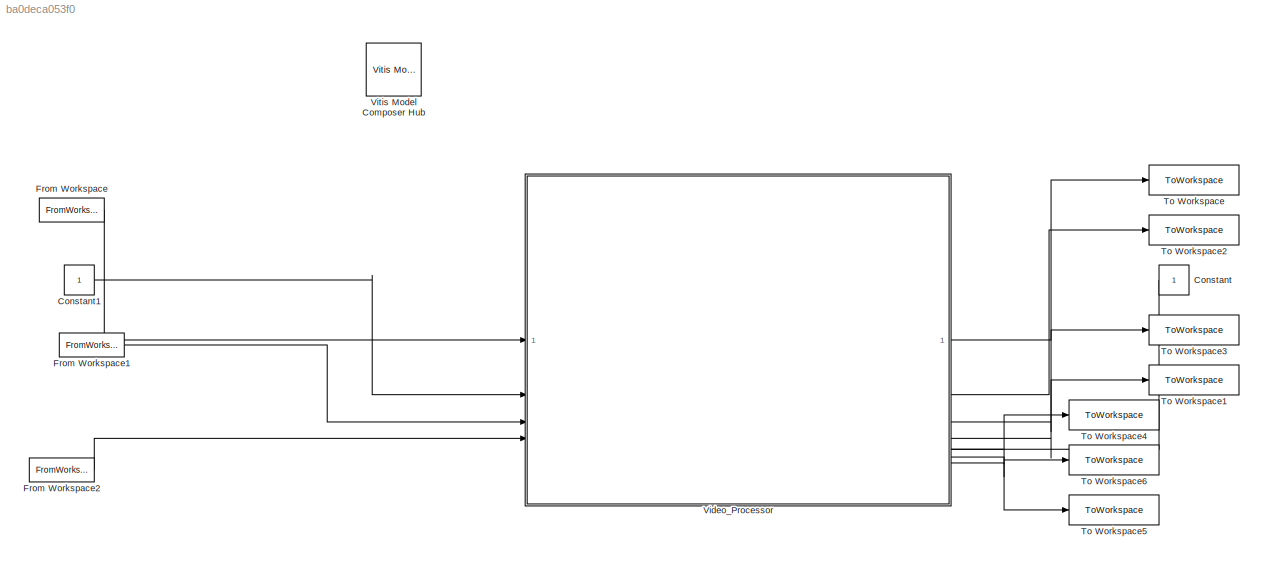
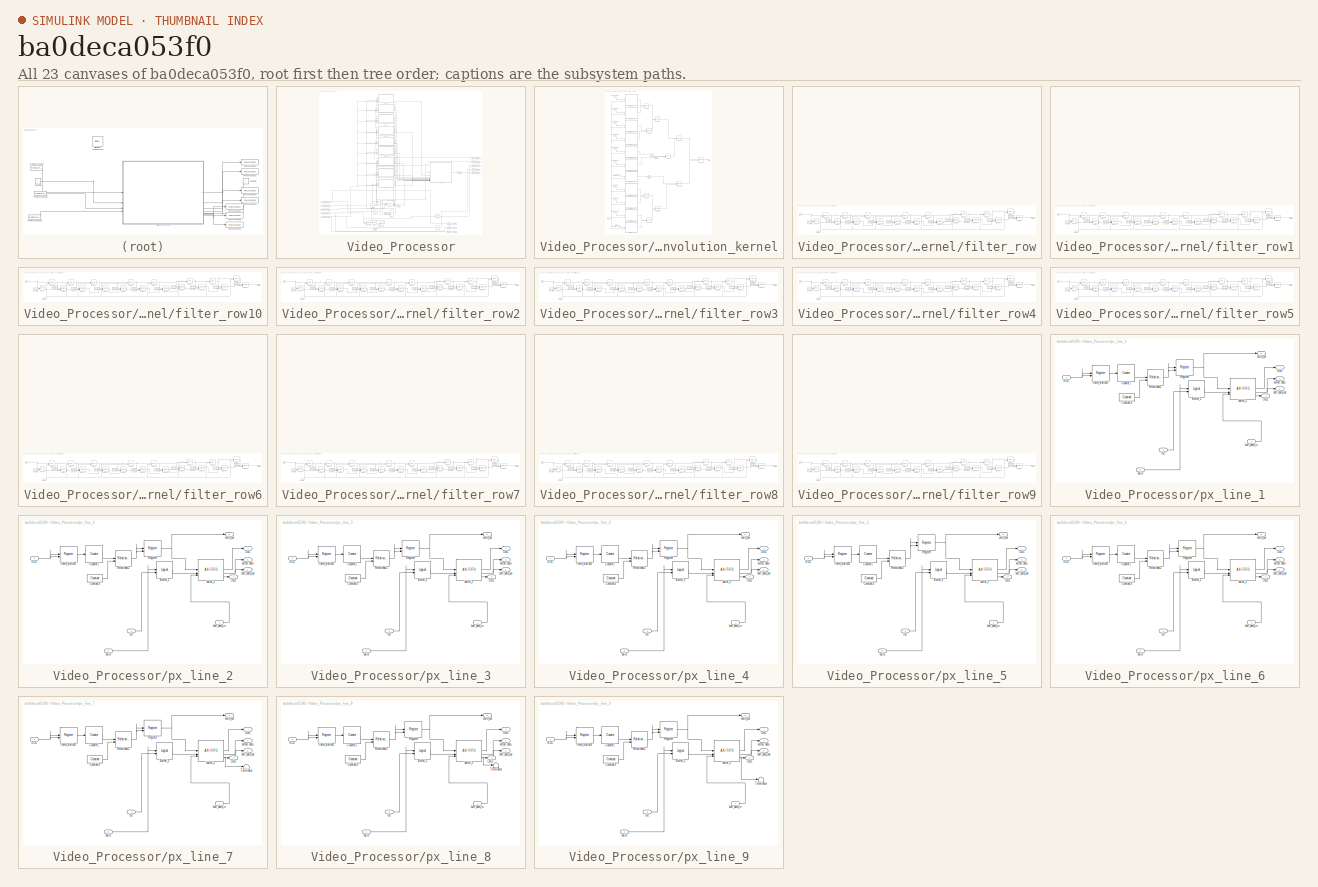
[diagram: thumbnail index - all 23 canvases of the model, root first then tree order]
MODEL slx_ba0deca053f0
KIND model
CONFIG AbsTol = auto
CONFIG EnableMultiTasking = off
CONFIG FixedStep = auto
CONFIG MaxStep = auto
CONFIG MinStep = auto
CONFIG PreLoadFcn = setup
CONFIG RelTol = 1e-3
CONFIG SampleTimeConstraint = Unconstrained
CONFIG SolverName = VariableStepAuto
CONFIG StartFcn = setup
CONFIG StartTime = 0.0
CONFIG StopFcn = show_output
CONFIG StopTime = frm_duration-Ts+1e-4
BLOCK [Constant] Constant
  NameLocation = top
BLOCK [Constant] Constant1
  SampleTime = Ts
BLOCK [FromWorkspace] From Workspace
  Interpolate = off
  OutputAfterFinalValue = Setting to zero
  SampleTime = Ts
  VariableName = data
BLOCK [FromWorkspace] From Workspace1
  Interpolate = off
  OutputAfterFinalValue = Setting to zero
  SampleTime = Ts
  VariableName = SOF
BLOCK [FromWorkspace] From Workspace2
  Interpolate = off
  OutputAfterFinalValue = Setting to zero
  SampleTime = Ts
  VariableName = EOL
BLOCK [ToWorkspace] To Workspace
  FixptAsFi = on
  MaxDataPoints = inf
  SampleTime = -1
  SaveFormat = Timeseries
  VariableName = data_out
BLOCK [ToWorkspace] To Workspace1
  FixptAsFi = on
  MaxDataPoints = inf
  SampleTime = -1
  SaveFormat = Timeseries
  VariableName = eol_out
BLOCK [ToWorkspace] To Workspace2
  FixptAsFi = on
  MaxDataPoints = inf
  SampleTime = -1
  SaveFormat = Timeseries
  VariableName = valid_out
BLOCK [ToWorkspace] To Workspace3
  FixptAsFi = on
  MaxDataPoints = inf
  SampleTime = -1
  SaveFormat = Timeseries
  VariableName = sof_out
BLOCK [ToWorkspace] To Workspace4
  FixptAsFi = on
  MaxDataPoints = inf
  SampleTime = -1
  SaveFormat = Timeseries
  VariableName = data_out_raw
BLOCK [ToWorkspace] To Workspace5
  FixptAsFi = on
  MaxDataPoints = inf
  SampleTime = -1
  SaveFormat = Timeseries
  VariableName = eol_out_raw
BLOCK [ToWorkspace] To Workspace6
  FixptAsFi = on
  MaxDataPoints = inf
  SampleTime = -1
  SaveFormat = Timeseries
  VariableName = sof_out_raw
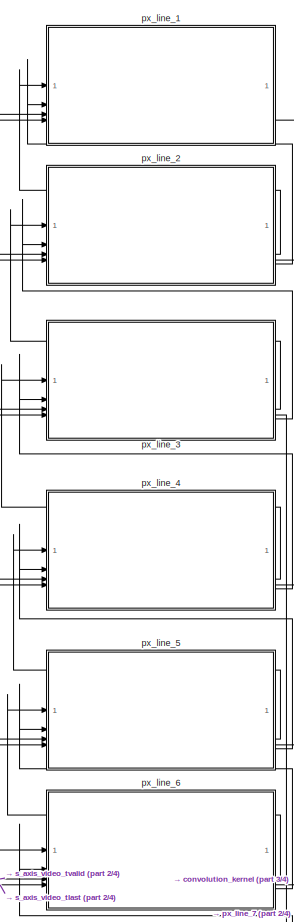
[diagram: Video_Processor - part 1/4, top center region]
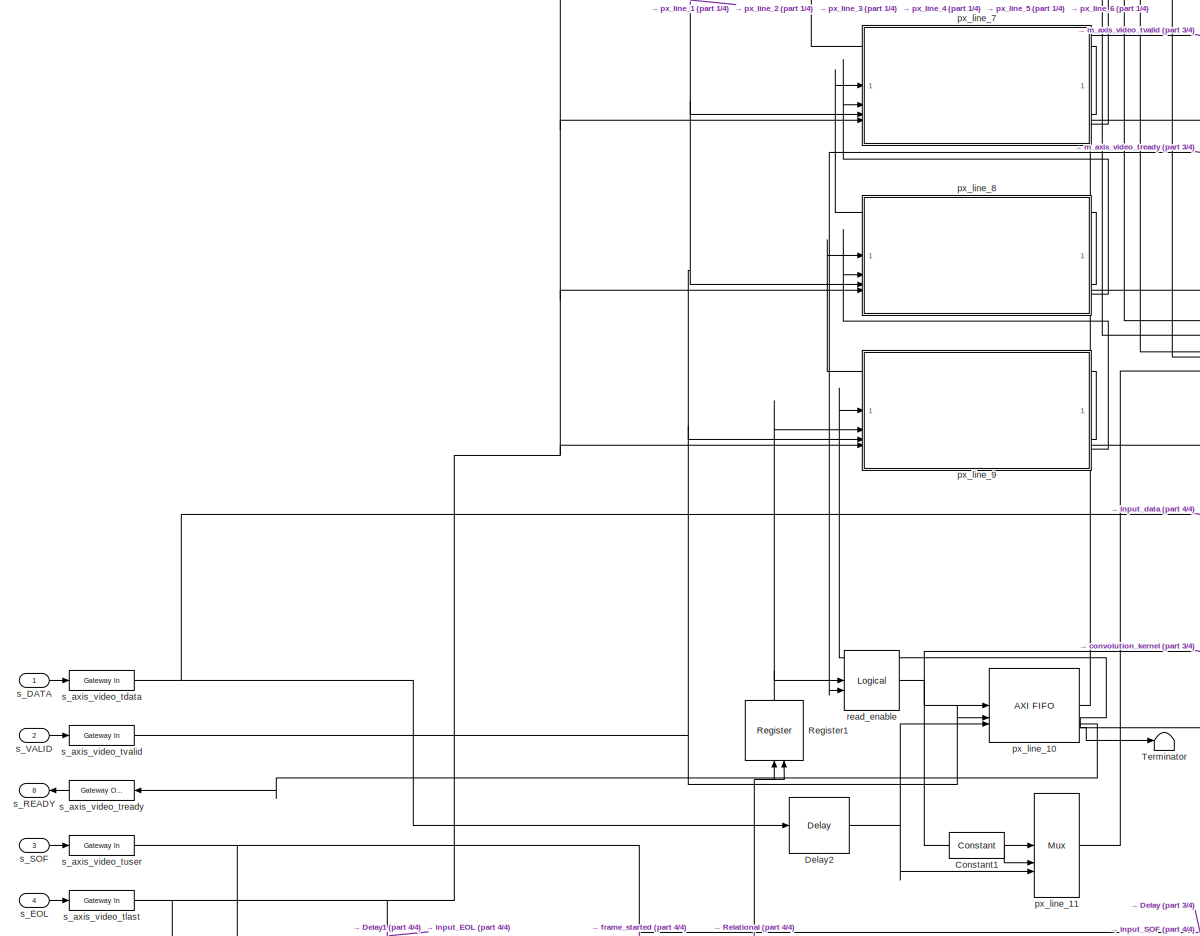
[diagram: Video_Processor - part 2/4, bottom left region]
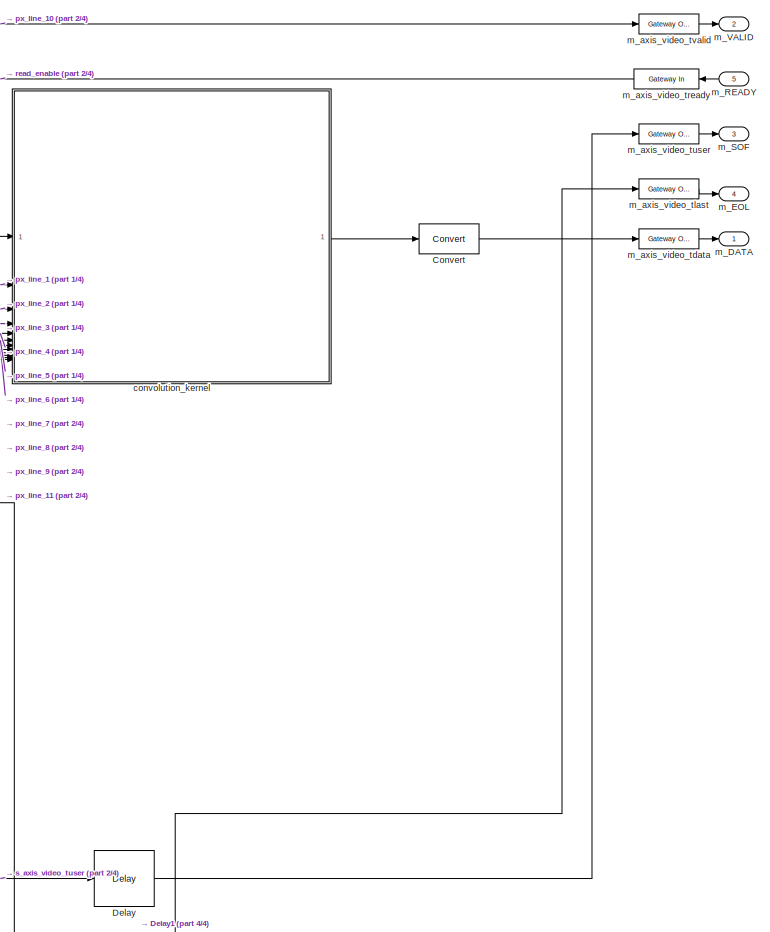
[diagram: Video_Processor - part 3/4, bottom right region]
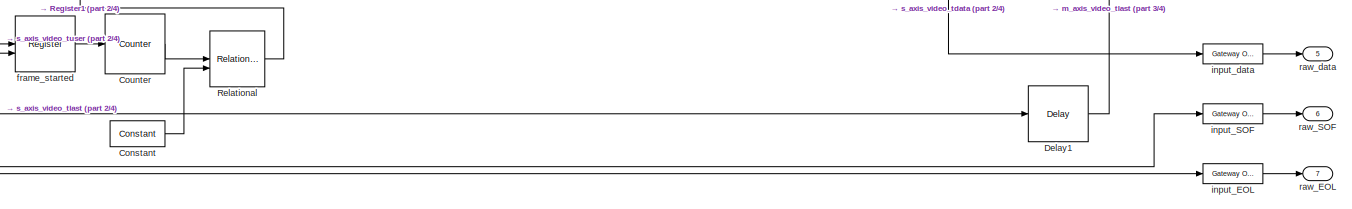
[diagram: Video_Processor - part 4/4, bottom center region]
BLOCK [SubSystem] Video_Processor
  PortSchema = {"entries":[{"content":{"sides":[{"content":{"connectorIds":["In1","In2","Out8","In3","In4"]},"type":"ConnectorPlacement.EquallySpacedRectSide","uuid":"1f053bf2-9bcd-4444-8b67-dea24bbded12"},{"content":{"connectorIds":["Out1","Out2","In5","Out3","Out4","Out5","Out6","Out7"],"side":"RIGHT"},"type":"ConnectorPlacement.EquallySpacedRectSide","uuid":"af1bdc0a-60f5-461c-b5f5-a395f1be0a0c"},{"content":{...<+295ch>
BLOCK [Reference] Video_Processor/Constant  REF=hdlBasic/Constant
  SourceBlock = hdlBasic/Constant
  SourceType = Constant Block Block
BLOCK [Reference] Video_Processor/Constant1  REF=hdlBasic/Constant
  SourceBlock = hdlBasic/Constant
  SourceType = Constant Block Block
BLOCK [Reference] Video_Processor/Convert  REF=hdlBasic/Convert
  SourceBlock = hdlBasic/Convert
  SourceType = Type Converter Block
BLOCK [Reference] Video_Processor/Counter  REF=hdlBasic/Counter
  SourceBlock = hdlBasic/Counter
  SourceType = Counter Block
BLOCK [Reference] Video_Processor/Delay  REF=hdlBasic/Delay
  SourceBlock = hdlBasic/Delay
  SourceType = Delay Block
BLOCK [Reference] Video_Processor/Delay1  REF=hdlBasic/Delay
  SourceBlock = hdlBasic/Delay
  SourceType = Delay Block
BLOCK [Reference] Video_Processor/Delay2  REF=hdlBasic/Delay
  SourceBlock = hdlBasic/Delay
  SourceType = Delay Block
BLOCK [Reference] Video_Processor/Register1  REF=hdlBasic/Register
  NameLocation = right
  SourceBlock = hdlBasic/Register
  SourceType = Register Block
BLOCK [Reference] Video_Processor/Relational  REF=hdlBasic/Relational
  SourceBlock = hdlBasic/Relational
  SourceType = Arithmetic Relational Operator Block
BLOCK [Terminator] Video_Processor/Terminator
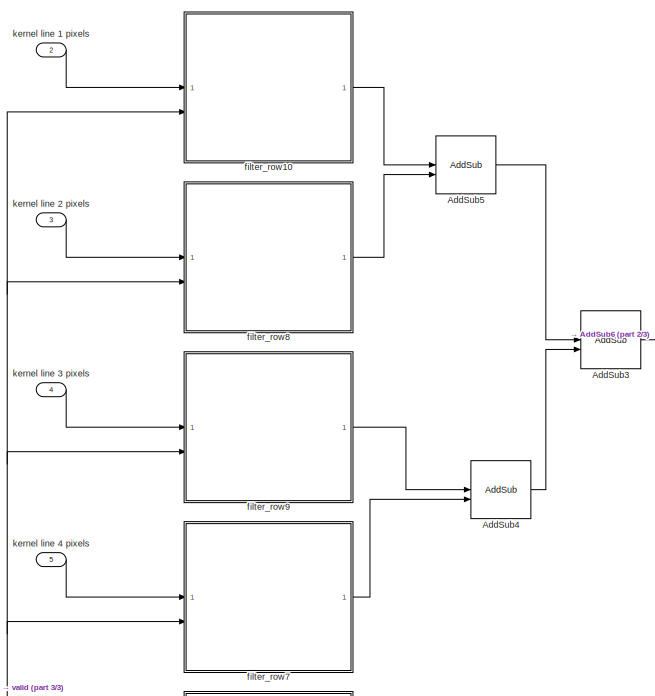
[diagram: Video_Processor/convolution_kernel - part 1/3, top left region]
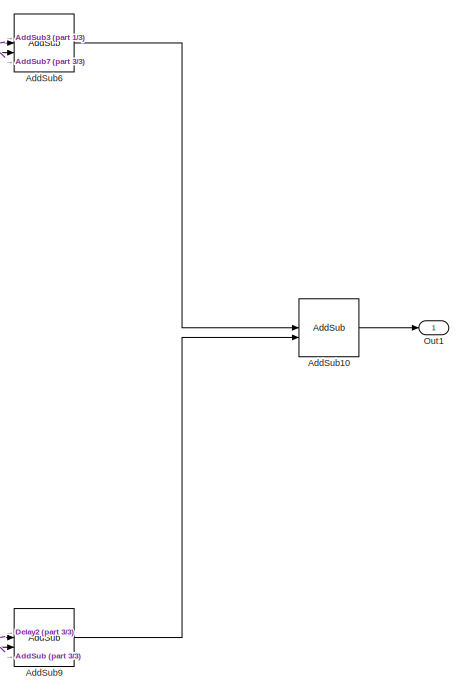
[diagram: Video_Processor/convolution_kernel - part 2/3, middle right region]
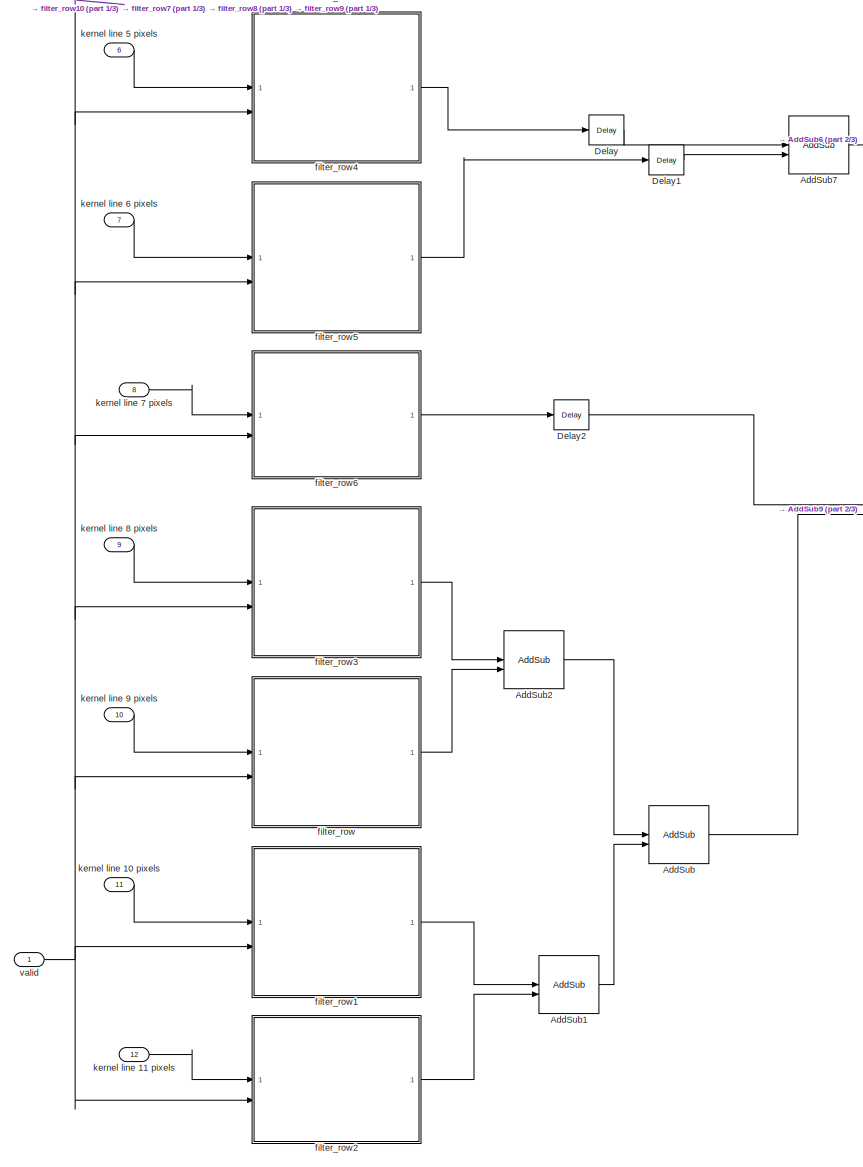
[diagram: Video_Processor/convolution_kernel - part 3/3, bottom left region]
BLOCK [SubSystem] Video_Processor/convolution_kernel
BLOCK [Reference] Video_Processor/convolution_kernel/AddSub  REF=hdlBasic/AddSub
  SourceBlock = hdlBasic/AddSub
  SourceType = Adder/Subtracter Block
BLOCK [Reference] Video_Processor/convolution_kernel/AddSub1  REF=hdlBasic/AddSub
  SourceBlock = hdlBasic/AddSub
  SourceType = Adder/Subtracter Block
BLOCK [Reference] Video_Processor/convolution_kernel/AddSub10  REF=hdlBasic/AddSub
  SourceBlock = hdlBasic/AddSub
  SourceType = Adder/Subtracter Block
BLOCK [Reference] Video_Processor/convolution_kernel/AddSub2  REF=hdlBasic/AddSub
  SourceBlock = hdlBasic/AddSub
  SourceType = Adder/Subtracter Block
BLOCK [Reference] Video_Processor/convolution_kernel/AddSub3  REF=hdlBasic/AddSub
  SourceBlock = hdlBasic/AddSub
  SourceType = Adder/Subtracter Block
BLOCK [Reference] Video_Processor/convolution_kernel/AddSub4  REF=hdlBasic/AddSub
  SourceBlock = hdlBasic/AddSub
  SourceType = Adder/Subtracter Block
BLOCK [Reference] Video_Processor/convolution_kernel/AddSub5  REF=hdlBasic/AddSub
  SourceBlock = hdlBasic/AddSub
  SourceType = Adder/Subtracter Block
BLOCK [Reference] Video_Processor/convolution_kernel/AddSub6  REF=hdlBasic/AddSub
  SourceBlock = hdlBasic/AddSub
  SourceType = Adder/Subtracter Block
BLOCK [Reference] Video_Processor/convolution_kernel/AddSub7  REF=hdlBasic/AddSub
  SourceBlock = hdlBasic/AddSub
  SourceType = Adder/Subtracter Block
BLOCK [Reference] Video_Processor/convolution_kernel/AddSub9  REF=hdlBasic/AddSub
  SourceBlock = hdlBasic/AddSub
  SourceType = Adder/Subtracter Block
BLOCK [Reference] Video_Processor/convolution_kernel/Delay  REF=hdlBasic/Delay
  SourceBlock = hdlBasic/Delay
  SourceType = Delay Block
BLOCK [Reference] Video_Processor/convolution_kernel/Delay1  REF=hdlBasic/Delay
  SourceBlock = hdlBasic/Delay
  SourceType = Delay Block
BLOCK [Reference] Video_Processor/convolution_kernel/Delay2  REF=hdlBasic/Delay
  SourceBlock = hdlBasic/Delay
  SourceType = Delay Block
BLOCK [Outport] Video_Processor/convolution_kernel/Out1
BLOCK [SubSystem] Video_Processor/convolution_kernel/filter_row
BLOCK [Reference] Video_Processor/convolution_kernel/filter_row/Constant1  REF=hdlBasic/Constant
  SourceBlock = hdlBasic/Constant
  SourceType = Constant Block Block
BLOCK [Reference] Video_Processor/convolution_kernel/filter_row/Constant10  REF=hdlBasic/Constant
  SourceBlock = hdlBasic/Constant
  SourceType = Constant Block Block
BLOCK [Reference] Video_Processor/convolution_kernel/filter_row/Constant11  REF=hdlBasic/Constant
  SourceBlock = hdlBasic/Constant
  SourceType = Constant Block Block
BLOCK [Reference] Video_Processor/convolution_kernel/filter_row/Constant2  REF=hdlBasic/Constant
  SourceBlock = hdlBasic/Constant
  SourceType = Constant Block Block
BLOCK [Reference] Video_Processor/convolution_kernel/filter_row/Constant3  REF=hdlBasic/Constant
  SourceBlock = hdlBasic/Constant
  SourceType = Constant Block Block
BLOCK [Reference] Video_Processor/convolution_kernel/filter_row/Constant4  REF=hdlBasic/Constant
  SourceBlock = hdlBasic/Constant
  SourceType = Constant Block Block
BLOCK [Reference] Video_Processor/convolution_kernel/filter_row/Constant5  REF=hdlBasic/Constant
  SourceBlock = hdlBasic/Constant
  SourceType = Constant Block Block
BLOCK [Reference] Video_Processor/convolution_kernel/filter_row/Constant6  REF=hdlBasic/Constant
  SourceBlock = hdlBasic/Constant
  SourceType = Constant Block Block
BLOCK [Reference] Video_Processor/convolution_kernel/filter_row/Constant7  REF=hdlBasic/Constant
  SourceBlock = hdlBasic/Constant
  SourceType = Constant Block Block
BLOCK [Reference] Video_Processor/convolution_kernel/filter_row/Constant8  REF=hdlBasic/Constant
  SourceBlock = hdlBasic/Constant
  SourceType = Constant Block Block
BLOCK [Reference] Video_Processor/convolution_kernel/filter_row/Constant9  REF=hdlBasic/Constant
  SourceBlock = hdlBasic/Constant
  SourceType = Constant Block Block
BLOCK [Reference] Video_Processor/convolution_kernel/filter_row/Delay  REF=hdlBasic/Delay
  SourceBlock = hdlBasic/Delay
  SourceType = Delay Block
BLOCK [Reference] Video_Processor/convolution_kernel/filter_row/Delay1  REF=hdlBasic/Delay
  SourceBlock = hdlBasic/Delay
  SourceType = Delay Block
BLOCK [Reference] Video_Processor/convolution_kernel/filter_row/Delay2  REF=hdlBasic/Delay
  SourceBlock = hdlBasic/Delay
  SourceType = Delay Block
BLOCK [Reference] Video_Processor/convolution_kernel/filter_row/Delay3  REF=hdlBasic/Delay
  SourceBlock = hdlBasic/Delay
  SourceType = Delay Block
BLOCK [Reference] Video_Processor/convolution_kernel/filter_row/Delay4  REF=hdlBasic/Delay
  SourceBlock = hdlBasic/Delay
  SourceType = Delay Block
BLOCK [Reference] Video_Processor/convolution_kernel/filter_row/Delay5  REF=hdlBasic/Delay
  SourceBlock = hdlBasic/Delay
  SourceType = Delay Block
BLOCK [Reference] Video_Processor/convolution_kernel/filter_row/Delay6  REF=hdlBasic/Delay
  SourceBlock = hdlBasic/Delay
  SourceType = Delay Block
BLOCK [Reference] Video_Processor/convolution_kernel/filter_row/Delay7  REF=hdlBasic/Delay
  SourceBlock = hdlBasic/Delay
  SourceType = Delay Block
BLOCK [Reference] Video_Processor/convolution_kernel/filter_row/Mult  REF=hdlBasic/Mult
  SourceBlock = hdlBasic/Mult
  SourceType = Multiplier Block
BLOCK [Reference] Video_Processor/convolution_kernel/filter_row/MultAdd  REF=hdlBasic/MultAdd
  SourceBlock = hdlBasic/MultAdd
  SourceType = Multiply Adder Block
BLOCK [Reference] Video_Processor/convolution_kernel/filter_row/MultAdd1  REF=hdlBasic/MultAdd
  SourceBlock = hdlBasic/MultAdd
  SourceType = Multiply Adder Block
BLOCK [Reference] Video_Processor/convolution_kernel/filter_row/MultAdd2  REF=hdlBasic/MultAdd
  SourceBlock = hdlBasic/MultAdd
  SourceType = Multiply Adder Block
BLOCK [Reference] Video_Processor/convolution_kernel/filter_row/MultAdd3  REF=hdlBasic/MultAdd
  SourceBlock = hdlBasic/MultAdd
  SourceType = Multiply Adder Block
BLOCK [Reference] Video_Processor/convolution_kernel/filter_row/MultAdd4  REF=hdlBasic/MultAdd
  SourceBlock = hdlBasic/MultAdd
  SourceType = Multiply Adder Block
BLOCK [Reference] Video_Processor/convolution_kernel/filter_row/MultAdd5  REF=hdlBasic/MultAdd
  SourceBlock = hdlBasic/MultAdd
  SourceType = Multiply Adder Block
BLOCK [Reference] Video_Processor/convolution_kernel/filter_row/MultAdd6  REF=hdlBasic/MultAdd
  SourceBlock = hdlBasic/MultAdd
  SourceType = Multiply Adder Block
BLOCK [Reference] Video_Processor/convolution_kernel/filter_row/MultAdd7  REF=hdlBasic/MultAdd
  SourceBlock = hdlBasic/MultAdd
  SourceType = Multiply Adder Block
BLOCK [Reference] Video_Processor/convolution_kernel/filter_row/MultAdd8  REF=hdlBasic/MultAdd
  SourceBlock = hdlBasic/MultAdd
  SourceType = Multiply Adder Block
BLOCK [Reference] Video_Processor/convolution_kernel/filter_row/MultAdd9  REF=hdlBasic/MultAdd
  SourceBlock = hdlBasic/MultAdd
  SourceType = Multiply Adder Block
BLOCK [Inport] Video_Processor/convolution_kernel/filter_row/enable
  Port = 2
BLOCK [Inport] Video_Processor/convolution_kernel/filter_row/input
BLOCK [Outport] Video_Processor/convolution_kernel/filter_row/output
BLOCK [SubSystem] Video_Processor/convolution_kernel/filter_row1
BLOCK [Reference] Video_Processor/convolution_kernel/filter_row1/Constant1  REF=hdlBasic/Constant
  SourceBlock = hdlBasic/Constant
  SourceType = Constant Block Block
BLOCK [Reference] Video_Processor/convolution_kernel/filter_row1/Constant10  REF=hdlBasic/Constant
  SourceBlock = hdlBasic/Constant
  SourceType = Constant Block Block
BLOCK [Reference] Video_Processor/convolution_kernel/filter_row1/Constant11  REF=hdlBasic/Constant
  SourceBlock = hdlBasic/Constant
  SourceType = Constant Block Block
BLOCK [Reference] Video_Processor/convolution_kernel/filter_row1/Constant2  REF=hdlBasic/Constant
  SourceBlock = hdlBasic/Constant
  SourceType = Constant Block Block
BLOCK [Reference] Video_Processor/convolution_kernel/filter_row1/Constant3  REF=hdlBasic/Constant
  SourceBlock = hdlBasic/Constant
  SourceType = Constant Block Block
BLOCK [Reference] Video_Processor/convolution_kernel/filter_row1/Constant4  REF=hdlBasic/Constant
  SourceBlock = hdlBasic/Constant
  SourceType = Constant Block Block
BLOCK [Reference] Video_Processor/convolution_kernel/filter_row1/Constant5  REF=hdlBasic/Constant
  SourceBlock = hdlBasic/Constant
  SourceType = Constant Block Block
BLOCK [Reference] Video_Processor/convolution_kernel/filter_row1/Constant6  REF=hdlBasic/Constant
  SourceBlock = hdlBasic/Constant
  SourceType = Constant Block Block
BLOCK [Reference] Video_Processor/convolution_kernel/filter_row1/Constant7  REF=hdlBasic/Constant
  SourceBlock = hdlBasic/Constant
  SourceType = Constant Block Block
BLOCK [Reference] Video_Processor/convolution_kernel/filter_row1/Constant8  REF=hdlBasic/Constant
  SourceBlock = hdlBasic/Constant
  SourceType = Constant Block Block
BLOCK [Reference] Video_Processor/convolution_kernel/filter_row1/Constant9  REF=hdlBasic/Constant
  SourceBlock = hdlBasic/Constant
  SourceType = Constant Block Block
BLOCK [Reference] Video_Processor/convolution_kernel/filter_row1/Delay  REF=hdlBasic/Delay
  SourceBlock = hdlBasic/Delay
  SourceType = Delay Block
BLOCK [Reference] Video_Processor/convolution_kernel/filter_row1/Delay1  REF=hdlBasic/Delay
  SourceBlock = hdlBasic/Delay
  SourceType = Delay Block
BLOCK [Reference] Video_Processor/convolution_kernel/filter_row1/Delay2  REF=hdlBasic/Delay
  SourceBlock = hdlBasic/Delay
  SourceType = Delay Block
BLOCK [Reference] Video_Processor/convolution_kernel/filter_row1/Delay3  REF=hdlBasic/Delay
  SourceBlock = hdlBasic/Delay
  SourceType = Delay Block
BLOCK [Reference] Video_Processor/convolution_kernel/filter_row1/Delay4  REF=hdlBasic/Delay
  SourceBlock = hdlBasic/Delay
  SourceType = Delay Block
BLOCK [Reference] Video_Processor/convolution_kernel/filter_row1/Delay5  REF=hdlBasic/Delay
  SourceBlock = hdlBasic/Delay
  SourceType = Delay Block
BLOCK [Reference] Video_Processor/convolution_kernel/filter_row1/Delay6  REF=hdlBasic/Delay
  SourceBlock = hdlBasic/Delay
  SourceType = Delay Block
BLOCK [Reference] Video_Processor/convolution_kernel/filter_row1/Delay7  REF=hdlBasic/Delay
  SourceBlock = hdlBasic/Delay
  SourceType = Delay Block
BLOCK [Reference] Video_Processor/convolution_kernel/filter_row1/Mult  REF=hdlBasic/Mult
  SourceBlock = hdlBasic/Mult
  SourceType = Multiplier Block
BLOCK [Reference] Video_Processor/convolution_kernel/filter_row1/MultAdd  REF=hdlBasic/MultAdd
  SourceBlock = hdlBasic/MultAdd
  SourceType = Multiply Adder Block
BLOCK [Reference] Video_Processor/convolution_kernel/filter_row1/MultAdd1  REF=hdlBasic/MultAdd
  SourceBlock = hdlBasic/MultAdd
  SourceType = Multiply Adder Block
BLOCK [Reference] Video_Processor/convolution_kernel/filter_row1/MultAdd2  REF=hdlBasic/MultAdd
  SourceBlock = hdlBasic/MultAdd
  SourceType = Multiply Adder Block
BLOCK [Reference] Video_Processor/convolution_kernel/filter_row1/MultAdd3  REF=hdlBasic/MultAdd
  SourceBlock = hdlBasic/MultAdd
  SourceType = Multiply Adder Block
BLOCK [Reference] Video_Processor/convolution_kernel/filter_row1/MultAdd4  REF=hdlBasic/MultAdd
  SourceBlock = hdlBasic/MultAdd
  SourceType = Multiply Adder Block
BLOCK [Reference] Video_Processor/convolution_kernel/filter_row1/MultAdd5  REF=hdlBasic/MultAdd
  SourceBlock = hdlBasic/MultAdd
  SourceType = Multiply Adder Block
BLOCK [Reference] Video_Processor/convolution_kernel/filter_row1/MultAdd6  REF=hdlBasic/MultAdd
  SourceBlock = hdlBasic/MultAdd
  SourceType = Multiply Adder Block
BLOCK [Reference] Video_Processor/convolution_kernel/filter_row1/MultAdd7  REF=hdlBasic/MultAdd
  SourceBlock = hdlBasic/MultAdd
  SourceType = Multiply Adder Block
BLOCK [Reference] Video_Processor/convolution_kernel/filter_row1/MultAdd8  REF=hdlBasic/MultAdd
  SourceBlock = hdlBasic/MultAdd
  SourceType = Multiply Adder Block
BLOCK [Reference] Video_Processor/convolution_kernel/filter_row1/MultAdd9  REF=hdlBasic/MultAdd
  SourceBlock = hdlBasic/MultAdd
  SourceType = Multiply Adder Block
BLOCK [Inport] Video_Processor/convolution_kernel/filter_row1/enable
  Port = 2
BLOCK [Inport] Video_Processor/convolution_kernel/filter_row1/input
BLOCK [Outport] Video_Processor/convolution_kernel/filter_row1/output
BLOCK [SubSystem] Video_Processor/convolution_kernel/filter_row10
BLOCK [Reference] Video_Processor/convolution_kernel/filter_row10/Constant1  REF=hdlBasic/Constant
  SourceBlock = hdlBasic/Constant
  SourceType = Constant Block Block
BLOCK [Reference] Video_Processor/convolution_kernel/filter_row10/Constant10  REF=hdlBasic/Constant
  SourceBlock = hdlBasic/Constant
  SourceType = Constant Block Block
BLOCK [Reference] Video_Processor/convolution_kernel/filter_row10/Constant11  REF=hdlBasic/Constant
  SourceBlock = hdlBasic/Constant
  SourceType = Constant Block Block
BLOCK [Reference] Video_Processor/convolution_kernel/filter_row10/Constant2  REF=hdlBasic/Constant
  SourceBlock = hdlBasic/Constant
  SourceType = Constant Block Block
BLOCK [Reference] Video_Processor/convolution_kernel/filter_row10/Constant3  REF=hdlBasic/Constant
  SourceBlock = hdlBasic/Constant
  SourceType = Constant Block Block
BLOCK [Reference] Video_Processor/convolution_kernel/filter_row10/Constant4  REF=hdlBasic/Constant
  SourceBlock = hdlBasic/Constant
  SourceType = Constant Block Block
BLOCK [Reference] Video_Processor/convolution_kernel/filter_row10/Constant5  REF=hdlBasic/Constant
  SourceBlock = hdlBasic/Constant
  SourceType = Constant Block Block
BLOCK [Reference] Video_Processor/convolution_kernel/filter_row10/Constant6  REF=hdlBasic/Constant
  SourceBlock = hdlBasic/Constant
  SourceType = Constant Block Block
BLOCK [Reference] Video_Processor/convolution_kernel/filter_row10/Constant7  REF=hdlBasic/Constant
  SourceBlock = hdlBasic/Constant
  SourceType = Constant Block Block
BLOCK [Reference] Video_Processor/convolution_kernel/filter_row10/Constant8  REF=hdlBasic/Constant
  SourceBlock = hdlBasic/Constant
  SourceType = Constant Block Block
BLOCK [Reference] Video_Processor/convolution_kernel/filter_row10/Constant9  REF=hdlBasic/Constant
  SourceBlock = hdlBasic/Constant
  SourceType = Constant Block Block
BLOCK [Reference] Video_Processor/convolution_kernel/filter_row10/Delay  REF=hdlBasic/Delay
  SourceBlock = hdlBasic/Delay
  SourceType = Delay Block
BLOCK [Reference] Video_Processor/convolution_kernel/filter_row10/Delay1  REF=hdlBasic/Delay
  SourceBlock = hdlBasic/Delay
  SourceType = Delay Block
BLOCK [Reference] Video_Processor/convolution_kernel/filter_row10/Delay2  REF=hdlBasic/Delay
  SourceBlock = hdlBasic/Delay
  SourceType = Delay Block
BLOCK [Reference] Video_Processor/convolution_kernel/filter_row10/Delay3  REF=hdlBasic/Delay
  SourceBlock = hdlBasic/Delay
  SourceType = Delay Block
BLOCK [Reference] Video_Processor/convolution_kernel/filter_row10/Delay4  REF=hdlBasic/Delay
  SourceBlock = hdlBasic/Delay
  SourceType = Delay Block
BLOCK [Reference] Video_Processor/convolution_kernel/filter_row10/Delay5  REF=hdlBasic/Delay
  SourceBlock = hdlBasic/Delay
  SourceType = Delay Block
BLOCK [Reference] Video_Processor/convolution_kernel/filter_row10/Delay6  REF=hdlBasic/Delay
  SourceBlock = hdlBasic/Delay
  SourceType = Delay Block
BLOCK [Reference] Video_Processor/convolution_kernel/filter_row10/Delay7  REF=hdlBasic/Delay
  SourceBlock = hdlBasic/Delay
  SourceType = Delay Block
BLOCK [Reference] Video_Processor/convolution_kernel/filter_row10/Mult  REF=hdlBasic/Mult
  SourceBlock = hdlBasic/Mult
  SourceType = Multiplier Block
BLOCK [Reference] Video_Processor/convolution_kernel/filter_row10/MultAdd  REF=hdlBasic/MultAdd
  SourceBlock = hdlBasic/MultAdd
  SourceType = Multiply Adder Block
BLOCK [Reference] Video_Processor/convolution_kernel/filter_row10/MultAdd1  REF=hdlBasic/MultAdd
  SourceBlock = hdlBasic/MultAdd
  SourceType = Multiply Adder Block
BLOCK [Reference] Video_Processor/convolution_kernel/filter_row10/MultAdd2  REF=hdlBasic/MultAdd
  SourceBlock = hdlBasic/MultAdd
  SourceType = Multiply Adder Block
BLOCK [Reference] Video_Processor/convolution_kernel/filter_row10/MultAdd3  REF=hdlBasic/MultAdd
  SourceBlock = hdlBasic/MultAdd
  SourceType = Multiply Adder Block
BLOCK [Reference] Video_Processor/convolution_kernel/filter_row10/MultAdd4  REF=hdlBasic/MultAdd
  SourceBlock = hdlBasic/MultAdd
  SourceType = Multiply Adder Block
BLOCK [Reference] Video_Processor/convolution_kernel/filter_row10/MultAdd5  REF=hdlBasic/MultAdd
  SourceBlock = hdlBasic/MultAdd
  SourceType = Multiply Adder Block
BLOCK [Reference] Video_Processor/convolution_kernel/filter_row10/MultAdd6  REF=hdlBasic/MultAdd
  SourceBlock = hdlBasic/MultAdd
  SourceType = Multiply Adder Block
BLOCK [Reference] Video_Processor/convolution_kernel/filter_row10/MultAdd7  REF=hdlBasic/MultAdd
  SourceBlock = hdlBasic/MultAdd
  SourceType = Multiply Adder Block
BLOCK [Reference] Video_Processor/convolution_kernel/filter_row10/MultAdd8  REF=hdlBasic/MultAdd
  SourceBlock = hdlBasic/MultAdd
  SourceType = Multiply Adder Block
BLOCK [Reference] Video_Processor/convolution_kernel/filter_row10/MultAdd9  REF=hdlBasic/MultAdd
  SourceBlock = hdlBasic/MultAdd
  SourceType = Multiply Adder Block
BLOCK [Inport] Video_Processor/convolution_kernel/filter_row10/enable
  Port = 2
BLOCK [Inport] Video_Processor/convolution_kernel/filter_row10/input
BLOCK [Outport] Video_Processor/convolution_kernel/filter_row10/output
BLOCK [SubSystem] Video_Processor/convolution_kernel/filter_row2
BLOCK [Reference] Video_Processor/convolution_kernel/filter_row2/Constant1  REF=hdlBasic/Constant
  SourceBlock = hdlBasic/Constant
  SourceType = Constant Block Block
BLOCK [Reference] Video_Processor/convolution_kernel/filter_row2/Constant10  REF=hdlBasic/Constant
  SourceBlock = hdlBasic/Constant
  SourceType = Constant Block Block
BLOCK [Reference] Video_Processor/convolution_kernel/filter_row2/Constant11  REF=hdlBasic/Constant
  SourceBlock = hdlBasic/Constant
  SourceType = Constant Block Block
BLOCK [Reference] Video_Processor/convolution_kernel/filter_row2/Constant2  REF=hdlBasic/Constant
  SourceBlock = hdlBasic/Constant
  SourceType = Constant Block Block
BLOCK [Reference] Video_Processor/convolution_kernel/filter_row2/Constant3  REF=hdlBasic/Constant
  SourceBlock = hdlBasic/Constant
  SourceType = Constant Block Block
BLOCK [Reference] Video_Processor/convolution_kernel/filter_row2/Constant4  REF=hdlBasic/Constant
  SourceBlock = hdlBasic/Constant
  SourceType = Constant Block Block
BLOCK [Reference] Video_Processor/convolution_kernel/filter_row2/Constant5  REF=hdlBasic/Constant
  SourceBlock = hdlBasic/Constant
  SourceType = Constant Block Block
BLOCK [Reference] Video_Processor/convolution_kernel/filter_row2/Constant6  REF=hdlBasic/Constant
  SourceBlock = hdlBasic/Constant
  SourceType = Constant Block Block
BLOCK [Reference] Video_Processor/convolution_kernel/filter_row2/Constant7  REF=hdlBasic/Constant
  SourceBlock = hdlBasic/Constant
  SourceType = Constant Block Block
BLOCK [Reference] Video_Processor/convolution_kernel/filter_row2/Constant8  REF=hdlBasic/Constant
  SourceBlock = hdlBasic/Constant
  SourceType = Constant Block Block
BLOCK [Reference] Video_Processor/convolution_kernel/filter_row2/Constant9  REF=hdlBasic/Constant
  SourceBlock = hdlBasic/Constant
  SourceType = Constant Block Block
BLOCK [Reference] Video_Processor/convolution_kernel/filter_row2/Delay  REF=hdlBasic/Delay
  SourceBlock = hdlBasic/Delay
  SourceType = Delay Block
BLOCK [Reference] Video_Processor/convolution_kernel/filter_row2/Delay1  REF=hdlBasic/Delay
  SourceBlock = hdlBasic/Delay
  SourceType = Delay Block
BLOCK [Reference] Video_Processor/convolution_kernel/filter_row2/Delay2  REF=hdlBasic/Delay
  SourceBlock = hdlBasic/Delay
  SourceType = Delay Block
BLOCK [Reference] Video_Processor/convolution_kernel/filter_row2/Delay3  REF=hdlBasic/Delay
  SourceBlock = hdlBasic/Delay
  SourceType = Delay Block
BLOCK [Reference] Video_Processor/convolution_kernel/filter_row2/Delay4  REF=hdlBasic/Delay
  SourceBlock = hdlBasic/Delay
  SourceType = Delay Block
BLOCK [Reference] Video_Processor/convolution_kernel/filter_row2/Delay5  REF=hdlBasic/Delay
  SourceBlock = hdlBasic/Delay
  SourceType = Delay Block
BLOCK [Reference] Video_Processor/convolution_kernel/filter_row2/Delay6  REF=hdlBasic/Delay
  SourceBlock = hdlBasic/Delay
  SourceType = Delay Block
BLOCK [Reference] Video_Processor/convolution_kernel/filter_row2/Delay7  REF=hdlBasic/Delay
  SourceBlock = hdlBasic/Delay
  SourceType = Delay Block
BLOCK [Reference] Video_Processor/convolution_kernel/filter_row2/Mult  REF=hdlBasic/Mult
  SourceBlock = hdlBasic/Mult
  SourceType = Multiplier Block
BLOCK [Reference] Video_Processor/convolution_kernel/filter_row2/MultAdd  REF=hdlBasic/MultAdd
  SourceBlock = hdlBasic/MultAdd
  SourceType = Multiply Adder Block
BLOCK [Reference] Video_Processor/convolution_kernel/filter_row2/MultAdd1  REF=hdlBasic/MultAdd
  SourceBlock = hdlBasic/MultAdd
  SourceType = Multiply Adder Block
BLOCK [Reference] Video_Processor/convolution_kernel/filter_row2/MultAdd2  REF=hdlBasic/MultAdd
  SourceBlock = hdlBasic/MultAdd
  SourceType = Multiply Adder Block
BLOCK [Reference] Video_Processor/convolution_kernel/filter_row2/MultAdd3  REF=hdlBasic/MultAdd
  SourceBlock = hdlBasic/MultAdd
  SourceType = Multiply Adder Block
BLOCK [Reference] Video_Processor/convolution_kernel/filter_row2/MultAdd4  REF=hdlBasic/MultAdd
  SourceBlock = hdlBasic/MultAdd
  SourceType = Multiply Adder Block
BLOCK [Reference] Video_Processor/convolution_kernel/filter_row2/MultAdd5  REF=hdlBasic/MultAdd
  SourceBlock = hdlBasic/MultAdd
  SourceType = Multiply Adder Block
BLOCK [Reference] Video_Processor/convolution_kernel/filter_row2/MultAdd6  REF=hdlBasic/MultAdd
  SourceBlock = hdlBasic/MultAdd
  SourceType = Multiply Adder Block
BLOCK [Reference] Video_Processor/convolution_kernel/filter_row2/MultAdd7  REF=hdlBasic/MultAdd
  SourceBlock = hdlBasic/MultAdd
  SourceType = Multiply Adder Block
BLOCK [Reference] Video_Processor/convolution_kernel/filter_row2/MultAdd8  REF=hdlBasic/MultAdd
  SourceBlock = hdlBasic/MultAdd
  SourceType = Multiply Adder Block
BLOCK [Reference] Video_Processor/convolution_kernel/filter_row2/MultAdd9  REF=hdlBasic/MultAdd
  SourceBlock = hdlBasic/MultAdd
  SourceType = Multiply Adder Block
BLOCK [Inport] Video_Processor/convolution_kernel/filter_row2/enable
  Port = 2
BLOCK [Inport] Video_Processor/convolution_kernel/filter_row2/input
BLOCK [Outport] Video_Processor/convolution_kernel/filter_row2/output
BLOCK [SubSystem] Video_Processor/convolution_kernel/filter_row3
BLOCK [Reference] Video_Processor/convolution_kernel/filter_row3/Constant1  REF=hdlBasic/Constant
  SourceBlock = hdlBasic/Constant
  SourceType = Constant Block Block
BLOCK [Reference] Video_Processor/convolution_kernel/filter_row3/Constant10  REF=hdlBasic/Constant
  SourceBlock = hdlBasic/Constant
  SourceType = Constant Block Block
BLOCK [Reference] Video_Processor/convolution_kernel/filter_row3/Constant11  REF=hdlBasic/Constant
  SourceBlock = hdlBasic/Constant
  SourceType = Constant Block Block
BLOCK [Reference] Video_Processor/convolution_kernel/filter_row3/Constant2  REF=hdlBasic/Constant
  SourceBlock = hdlBasic/Constant
  SourceType = Constant Block Block
BLOCK [Reference] Video_Processor/convolution_kernel/filter_row3/Constant3  REF=hdlBasic/Constant
  SourceBlock = hdlBasic/Constant
  SourceType = Constant Block Block
BLOCK [Reference] Video_Processor/convolution_kernel/filter_row3/Constant4  REF=hdlBasic/Constant
  SourceBlock = hdlBasic/Constant
  SourceType = Constant Block Block
BLOCK [Reference] Video_Processor/convolution_kernel/filter_row3/Constant5  REF=hdlBasic/Constant
  SourceBlock = hdlBasic/Constant
  SourceType = Constant Block Block
BLOCK [Reference] Video_Processor/convolution_kernel/filter_row3/Constant6  REF=hdlBasic/Constant
  SourceBlock = hdlBasic/Constant
  SourceType = Constant Block Block
BLOCK [Reference] Video_Processor/convolution_kernel/filter_row3/Constant7  REF=hdlBasic/Constant
  SourceBlock = hdlBasic/Constant
  SourceType = Constant Block Block
BLOCK [Reference] Video_Processor/convolution_kernel/filter_row3/Constant8  REF=hdlBasic/Constant
  SourceBlock = hdlBasic/Constant
  SourceType = Constant Block Block
BLOCK [Reference] Video_Processor/convolution_kernel/filter_row3/Constant9  REF=hdlBasic/Constant
  SourceBlock = hdlBasic/Constant
  SourceType = Constant Block Block
BLOCK [Reference] Video_Processor/convolution_kernel/filter_row3/Delay  REF=hdlBasic/Delay
  SourceBlock = hdlBasic/Delay
  SourceType = Delay Block
BLOCK [Reference] Video_Processor/convolution_kernel/filter_row3/Delay1  REF=hdlBasic/Delay
  SourceBlock = hdlBasic/Delay
  SourceType = Delay Block
BLOCK [Reference] Video_Processor/convolution_kernel/filter_row3/Delay2  REF=hdlBasic/Delay
  SourceBlock = hdlBasic/Delay
  SourceType = Delay Block
BLOCK [Reference] Video_Processor/convolution_kernel/filter_row3/Delay3  REF=hdlBasic/Delay
  SourceBlock = hdlBasic/Delay
  SourceType = Delay Block
BLOCK [Reference] Video_Processor/convolution_kernel/filter_row3/Delay4  REF=hdlBasic/Delay
  SourceBlock = hdlBasic/Delay
  SourceType = Delay Block
BLOCK [Reference] Video_Processor/convolution_kernel/filter_row3/Delay5  REF=hdlBasic/Delay
  SourceBlock = hdlBasic/Delay
  SourceType = Delay Block
BLOCK [Reference] Video_Processor/convolution_kernel/filter_row3/Delay6  REF=hdlBasic/Delay
  SourceBlock = hdlBasic/Delay
  SourceType = Delay Block
BLOCK [Reference] Video_Processor/convolution_kernel/filter_row3/Delay7  REF=hdlBasic/Delay
  SourceBlock = hdlBasic/Delay
  SourceType = Delay Block
BLOCK [Reference] Video_Processor/convolution_kernel/filter_row3/Mult  REF=hdlBasic/Mult
  SourceBlock = hdlBasic/Mult
  SourceType = Multiplier Block
BLOCK [Reference] Video_Processor/convolution_kernel/filter_row3/MultAdd  REF=hdlBasic/MultAdd
  SourceBlock = hdlBasic/MultAdd
  SourceType = Multiply Adder Block
BLOCK [Reference] Video_Processor/convolution_kernel/filter_row3/MultAdd1  REF=hdlBasic/MultAdd
  SourceBlock = hdlBasic/MultAdd
  SourceType = Multiply Adder Block
BLOCK [Reference] Video_Processor/convolution_kernel/filter_row3/MultAdd2  REF=hdlBasic/MultAdd
  SourceBlock = hdlBasic/MultAdd
  SourceType = Multiply Adder Block
BLOCK [Reference] Video_Processor/convolution_kernel/filter_row3/MultAdd3  REF=hdlBasic/MultAdd
  SourceBlock = hdlBasic/MultAdd
  SourceType = Multiply Adder Block
BLOCK [Reference] Video_Processor/convolution_kernel/filter_row3/MultAdd4  REF=hdlBasic/MultAdd
  SourceBlock = hdlBasic/MultAdd
  SourceType = Multiply Adder Block
BLOCK [Reference] Video_Processor/convolution_kernel/filter_row3/MultAdd5  REF=hdlBasic/MultAdd
  SourceBlock = hdlBasic/MultAdd
  SourceType = Multiply Adder Block
BLOCK [Reference] Video_Processor/convolution_kernel/filter_row3/MultAdd6  REF=hdlBasic/MultAdd
  SourceBlock = hdlBasic/MultAdd
  SourceType = Multiply Adder Block
BLOCK [Reference] Video_Processor/convolution_kernel/filter_row3/MultAdd7  REF=hdlBasic/MultAdd
  SourceBlock = hdlBasic/MultAdd
  SourceType = Multiply Adder Block
BLOCK [Reference] Video_Processor/convolution_kernel/filter_row3/MultAdd8  REF=hdlBasic/MultAdd
  SourceBlock = hdlBasic/MultAdd
  SourceType = Multiply Adder Block
BLOCK [Reference] Video_Processor/convolution_kernel/filter_row3/MultAdd9  REF=hdlBasic/MultAdd
  SourceBlock = hdlBasic/MultAdd
  SourceType = Multiply Adder Block
BLOCK [Inport] Video_Processor/convolution_kernel/filter_row3/enable
  Port = 2
BLOCK [Inport] Video_Processor/convolution_kernel/filter_row3/input
BLOCK [Outport] Video_Processor/convolution_kernel/filter_row3/output
BLOCK [SubSystem] Video_Processor/convolution_kernel/filter_row4
BLOCK [Reference] Video_Processor/convolution_kernel/filter_row4/Constant1  REF=hdlBasic/Constant
  SourceBlock = hdlBasic/Constant
  SourceType = Constant Block Block
BLOCK [Reference] Video_Processor/convolution_kernel/filter_row4/Constant10  REF=hdlBasic/Constant
  SourceBlock = hdlBasic/Constant
  SourceType = Constant Block Block
BLOCK [Reference] Video_Processor/convolution_kernel/filter_row4/Constant11  REF=hdlBasic/Constant
  SourceBlock = hdlBasic/Constant
  SourceType = Constant Block Block
BLOCK [Reference] Video_Processor/convolution_kernel/filter_row4/Constant2  REF=hdlBasic/Constant
  SourceBlock = hdlBasic/Constant
  SourceType = Constant Block Block
BLOCK [Reference] Video_Processor/convolution_kernel/filter_row4/Constant3  REF=hdlBasic/Constant
  SourceBlock = hdlBasic/Constant
  SourceType = Constant Block Block
BLOCK [Reference] Video_Processor/convolution_kernel/filter_row4/Constant4  REF=hdlBasic/Constant
  SourceBlock = hdlBasic/Constant
  SourceType = Constant Block Block
BLOCK [Reference] Video_Processor/convolution_kernel/filter_row4/Constant5  REF=hdlBasic/Constant
  SourceBlock = hdlBasic/Constant
  SourceType = Constant Block Block
BLOCK [Reference] Video_Processor/convolution_kernel/filter_row4/Constant6  REF=hdlBasic/Constant
  SourceBlock = hdlBasic/Constant
  SourceType = Constant Block Block
BLOCK [Reference] Video_Processor/convolution_kernel/filter_row4/Constant7  REF=hdlBasic/Constant
  SourceBlock = hdlBasic/Constant
  SourceType = Constant Block Block
BLOCK [Reference] Video_Processor/convolution_kernel/filter_row4/Constant8  REF=hdlBasic/Constant
  SourceBlock = hdlBasic/Constant
  SourceType = Constant Block Block
BLOCK [Reference] Video_Processor/convolution_kernel/filter_row4/Constant9  REF=hdlBasic/Constant
  SourceBlock = hdlBasic/Constant
  SourceType = Constant Block Block
BLOCK [Reference] Video_Processor/convolution_kernel/filter_row4/Delay  REF=hdlBasic/Delay
  SourceBlock = hdlBasic/Delay
  SourceType = Delay Block
BLOCK [Reference] Video_Processor/convolution_kernel/filter_row4/Delay1  REF=hdlBasic/Delay
  SourceBlock = hdlBasic/Delay
  SourceType = Delay Block
BLOCK [Reference] Video_Processor/convolution_kernel/filter_row4/Delay2  REF=hdlBasic/Delay
  SourceBlock = hdlBasic/Delay
  SourceType = Delay Block
BLOCK [Reference] Video_Processor/convolution_kernel/filter_row4/Delay3  REF=hdlBasic/Delay
  SourceBlock = hdlBasic/Delay
  SourceType = Delay Block
BLOCK [Reference] Video_Processor/convolution_kernel/filter_row4/Delay4  REF=hdlBasic/Delay
  SourceBlock = hdlBasic/Delay
  SourceType = Delay Block
BLOCK [Reference] Video_Processor/convolution_kernel/filter_row4/Delay5  REF=hdlBasic/Delay
  SourceBlock = hdlBasic/Delay
  SourceType = Delay Block
BLOCK [Reference] Video_Processor/convolution_kernel/filter_row4/Delay6  REF=hdlBasic/Delay
  SourceBlock = hdlBasic/Delay
  SourceType = Delay Block
BLOCK [Reference] Video_Processor/convolution_kernel/filter_row4/Delay7  REF=hdlBasic/Delay
  SourceBlock = hdlBasic/Delay
  SourceType = Delay Block
BLOCK [Reference] Video_Processor/convolution_kernel/filter_row4/Mult  REF=hdlBasic/Mult
  SourceBlock = hdlBasic/Mult
  SourceType = Multiplier Block
BLOCK [Reference] Video_Processor/convolution_kernel/filter_row4/MultAdd  REF=hdlBasic/MultAdd
  SourceBlock = hdlBasic/MultAdd
  SourceType = Multiply Adder Block
BLOCK [Reference] Video_Processor/convolution_kernel/filter_row4/MultAdd1  REF=hdlBasic/MultAdd
  SourceBlock = hdlBasic/MultAdd
  SourceType = Multiply Adder Block
BLOCK [Reference] Video_Processor/convolution_kernel/filter_row4/MultAdd2  REF=hdlBasic/MultAdd
  SourceBlock = hdlBasic/MultAdd
  SourceType = Multiply Adder Block
BLOCK [Reference] Video_Processor/convolution_kernel/filter_row4/MultAdd3  REF=hdlBasic/MultAdd
  SourceBlock = hdlBasic/MultAdd
  SourceType = Multiply Adder Block
BLOCK [Reference] Video_Processor/convolution_kernel/filter_row4/MultAdd4  REF=hdlBasic/MultAdd
  SourceBlock = hdlBasic/MultAdd
  SourceType = Multiply Adder Block
BLOCK [Reference] Video_Processor/convolution_kernel/filter_row4/MultAdd5  REF=hdlBasic/MultAdd
  SourceBlock = hdlBasic/MultAdd
  SourceType = Multiply Adder Block
BLOCK [Reference] Video_Processor/convolution_kernel/filter_row4/MultAdd6  REF=hdlBasic/MultAdd
  SourceBlock = hdlBasic/MultAdd
  SourceType = Multiply Adder Block
BLOCK [Reference] Video_Processor/convolution_kernel/filter_row4/MultAdd7  REF=hdlBasic/MultAdd
  SourceBlock = hdlBasic/MultAdd
  SourceType = Multiply Adder Block
BLOCK [Reference] Video_Processor/convolution_kernel/filter_row4/MultAdd8  REF=hdlBasic/MultAdd
  SourceBlock = hdlBasic/MultAdd
  SourceType = Multiply Adder Block
BLOCK [Reference] Video_Processor/convolution_kernel/filter_row4/MultAdd9  REF=hdlBasic/MultAdd
  SourceBlock = hdlBasic/MultAdd
  SourceType = Multiply Adder Block
BLOCK [Inport] Video_Processor/convolution_kernel/filter_row4/enable
  Port = 2
BLOCK [Inport] Video_Processor/convolution_kernel/filter_row4/input
BLOCK [Outport] Video_Processor/convolution_kernel/filter_row4/output
BLOCK [SubSystem] Video_Processor/convolution_kernel/filter_row5
BLOCK [Reference] Video_Processor/convolution_kernel/filter_row5/Constant1  REF=hdlBasic/Constant
  SourceBlock = hdlBasic/Constant
  SourceType = Constant Block Block
BLOCK [Reference] Video_Processor/convolution_kernel/filter_row5/Constant10  REF=hdlBasic/Constant
  SourceBlock = hdlBasic/Constant
  SourceType = Constant Block Block
BLOCK [Reference] Video_Processor/convolution_kernel/filter_row5/Constant11  REF=hdlBasic/Constant
  SourceBlock = hdlBasic/Constant
  SourceType = Constant Block Block
BLOCK [Reference] Video_Processor/convolution_kernel/filter_row5/Constant2  REF=hdlBasic/Constant
  SourceBlock = hdlBasic/Constant
  SourceType = Constant Block Block
BLOCK [Reference] Video_Processor/convolution_kernel/filter_row5/Constant3  REF=hdlBasic/Constant
  SourceBlock = hdlBasic/Constant
  SourceType = Constant Block Block
BLOCK [Reference] Video_Processor/convolution_kernel/filter_row5/Constant4  REF=hdlBasic/Constant
  SourceBlock = hdlBasic/Constant
  SourceType = Constant Block Block
BLOCK [Reference] Video_Processor/convolution_kernel/filter_row5/Constant5  REF=hdlBasic/Constant
  SourceBlock = hdlBasic/Constant
  SourceType = Constant Block Block
BLOCK [Reference] Video_Processor/convolution_kernel/filter_row5/Constant6  REF=hdlBasic/Constant
  SourceBlock = hdlBasic/Constant
  SourceType = Constant Block Block
BLOCK [Reference] Video_Processor/convolution_kernel/filter_row5/Constant7  REF=hdlBasic/Constant
  SourceBlock = hdlBasic/Constant
  SourceType = Constant Block Block
BLOCK [Reference] Video_Processor/convolution_kernel/filter_row5/Constant8  REF=hdlBasic/Constant
  SourceBlock = hdlBasic/Constant
  SourceType = Constant Block Block
BLOCK [Reference] Video_Processor/convolution_kernel/filter_row5/Constant9  REF=hdlBasic/Constant
  SourceBlock = hdlBasic/Constant
  SourceType = Constant Block Block
BLOCK [Reference] Video_Processor/convolution_kernel/filter_row5/Delay  REF=hdlBasic/Delay
  SourceBlock = hdlBasic/Delay
  SourceType = Delay Block
BLOCK [Reference] Video_Processor/convolution_kernel/filter_row5/Delay1  REF=hdlBasic/Delay
  SourceBlock = hdlBasic/Delay
  SourceType = Delay Block
BLOCK [Reference] Video_Processor/convolution_kernel/filter_row5/Delay2  REF=hdlBasic/Delay
  SourceBlock = hdlBasic/Delay
  SourceType = Delay Block
BLOCK [Reference] Video_Processor/convolution_kernel/filter_row5/Delay3  REF=hdlBasic/Delay
  SourceBlock = hdlBasic/Delay
  SourceType = Delay Block
BLOCK [Reference] Video_Processor/convolution_kernel/filter_row5/Delay4  REF=hdlBasic/Delay
  SourceBlock = hdlBasic/Delay
  SourceType = Delay Block
BLOCK [Reference] Video_Processor/convolution_kernel/filter_row5/Delay5  REF=hdlBasic/Delay
  SourceBlock = hdlBasic/Delay
  SourceType = Delay Block
BLOCK [Reference] Video_Processor/convolution_kernel/filter_row5/Delay6  REF=hdlBasic/Delay
  SourceBlock = hdlBasic/Delay
  SourceType = Delay Block
BLOCK [Reference] Video_Processor/convolution_kernel/filter_row5/Delay7  REF=hdlBasic/Delay
  SourceBlock = hdlBasic/Delay
  SourceType = Delay Block
BLOCK [Reference] Video_Processor/convolution_kernel/filter_row5/Mult  REF=hdlBasic/Mult
  SourceBlock = hdlBasic/Mult
  SourceType = Multiplier Block
BLOCK [Reference] Video_Processor/convolution_kernel/filter_row5/MultAdd  REF=hdlBasic/MultAdd
  SourceBlock = hdlBasic/MultAdd
  SourceType = Multiply Adder Block
BLOCK [Reference] Video_Processor/convolution_kernel/filter_row5/MultAdd1  REF=hdlBasic/MultAdd
  SourceBlock = hdlBasic/MultAdd
  SourceType = Multiply Adder Block
BLOCK [Reference] Video_Processor/convolution_kernel/filter_row5/MultAdd2  REF=hdlBasic/MultAdd
  SourceBlock = hdlBasic/MultAdd
  SourceType = Multiply Adder Block
BLOCK [Reference] Video_Processor/convolution_kernel/filter_row5/MultAdd3  REF=hdlBasic/MultAdd
  SourceBlock = hdlBasic/MultAdd
  SourceType = Multiply Adder Block
BLOCK [Reference] Video_Processor/convolution_kernel/filter_row5/MultAdd4  REF=hdlBasic/MultAdd
  SourceBlock = hdlBasic/MultAdd
  SourceType = Multiply Adder Block
BLOCK [Reference] Video_Processor/convolution_kernel/filter_row5/MultAdd5  REF=hdlBasic/MultAdd
  SourceBlock = hdlBasic/MultAdd
  SourceType = Multiply Adder Block
BLOCK [Reference] Video_Processor/convolution_kernel/filter_row5/MultAdd6  REF=hdlBasic/MultAdd
  SourceBlock = hdlBasic/MultAdd
  SourceType = Multiply Adder Block
BLOCK [Reference] Video_Processor/convolution_kernel/filter_row5/MultAdd7  REF=hdlBasic/MultAdd
  SourceBlock = hdlBasic/MultAdd
  SourceType = Multiply Adder Block
BLOCK [Reference] Video_Processor/convolution_kernel/filter_row5/MultAdd8  REF=hdlBasic/MultAdd
  SourceBlock = hdlBasic/MultAdd
  SourceType = Multiply Adder Block
BLOCK [Reference] Video_Processor/convolution_kernel/filter_row5/MultAdd9  REF=hdlBasic/MultAdd
  SourceBlock = hdlBasic/MultAdd
  SourceType = Multiply Adder Block
BLOCK [Inport] Video_Processor/convolution_kernel/filter_row5/enable
  Port = 2
BLOCK [Inport] Video_Processor/convolution_kernel/filter_row5/input
BLOCK [Outport] Video_Processor/convolution_kernel/filter_row5/output
BLOCK [SubSystem] Video_Processor/convolution_kernel/filter_row6
BLOCK [Reference] Video_Processor/convolution_kernel/filter_row6/Constant1  REF=hdlBasic/Constant
  SourceBlock = hdlBasic/Constant
  SourceType = Constant Block Block
BLOCK [Reference] Video_Processor/convolution_kernel/filter_row6/Constant10  REF=hdlBasic/Constant
  SourceBlock = hdlBasic/Constant
  SourceType = Constant Block Block
BLOCK [Reference] Video_Processor/convolution_kernel/filter_row6/Constant11  REF=hdlBasic/Constant
  SourceBlock = hdlBasic/Constant
  SourceType = Constant Block Block
BLOCK [Reference] Video_Processor/convolution_kernel/filter_row6/Constant2  REF=hdlBasic/Constant
  SourceBlock = hdlBasic/Constant
  SourceType = Constant Block Block
BLOCK [Reference] Video_Processor/convolution_kernel/filter_row6/Constant3  REF=hdlBasic/Constant
  SourceBlock = hdlBasic/Constant
  SourceType = Constant Block Block
BLOCK [Reference] Video_Processor/convolution_kernel/filter_row6/Constant4  REF=hdlBasic/Constant
  SourceBlock = hdlBasic/Constant
  SourceType = Constant Block Block
BLOCK [Reference] Video_Processor/convolution_kernel/filter_row6/Constant5  REF=hdlBasic/Constant
  SourceBlock = hdlBasic/Constant
  SourceType = Constant Block Block
BLOCK [Reference] Video_Processor/convolution_kernel/filter_row6/Constant6  REF=hdlBasic/Constant
  SourceBlock = hdlBasic/Constant
  SourceType = Constant Block Block
BLOCK [Reference] Video_Processor/convolution_kernel/filter_row6/Constant7  REF=hdlBasic/Constant
  SourceBlock = hdlBasic/Constant
  SourceType = Constant Block Block
BLOCK [Reference] Video_Processor/convolution_kernel/filter_row6/Constant8  REF=hdlBasic/Constant
  SourceBlock = hdlBasic/Constant
  SourceType = Constant Block Block
BLOCK [Reference] Video_Processor/convolution_kernel/filter_row6/Constant9  REF=hdlBasic/Constant
  SourceBlock = hdlBasic/Constant
  SourceType = Constant Block Block
BLOCK [Reference] Video_Processor/convolution_kernel/filter_row6/Delay  REF=hdlBasic/Delay
  SourceBlock = hdlBasic/Delay
  SourceType = Delay Block
BLOCK [Reference] Video_Processor/convolution_kernel/filter_row6/Delay1  REF=hdlBasic/Delay
  SourceBlock = hdlBasic/Delay
  SourceType = Delay Block
BLOCK [Reference] Video_Processor/convolution_kernel/filter_row6/Delay2  REF=hdlBasic/Delay
  SourceBlock = hdlBasic/Delay
  SourceType = Delay Block
BLOCK [Reference] Video_Processor/convolution_kernel/filter_row6/Delay3  REF=hdlBasic/Delay
  SourceBlock = hdlBasic/Delay
  SourceType = Delay Block
BLOCK [Reference] Video_Processor/convolution_kernel/filter_row6/Delay4  REF=hdlBasic/Delay
  SourceBlock = hdlBasic/Delay
  SourceType = Delay Block
BLOCK [Reference] Video_Processor/convolution_kernel/filter_row6/Delay5  REF=hdlBasic/Delay
  SourceBlock = hdlBasic/Delay
  SourceType = Delay Block
BLOCK [Reference] Video_Processor/convolution_kernel/filter_row6/Delay6  REF=hdlBasic/Delay
  SourceBlock = hdlBasic/Delay
  SourceType = Delay Block
BLOCK [Reference] Video_Processor/convolution_kernel/filter_row6/Delay7  REF=hdlBasic/Delay
  SourceBlock = hdlBasic/Delay
  SourceType = Delay Block
BLOCK [Reference] Video_Processor/convolution_kernel/filter_row6/Mult  REF=hdlBasic/Mult
  SourceBlock = hdlBasic/Mult
  SourceType = Multiplier Block
BLOCK [Reference] Video_Processor/convolution_kernel/filter_row6/MultAdd  REF=hdlBasic/MultAdd
  SourceBlock = hdlBasic/MultAdd
  SourceType = Multiply Adder Block
BLOCK [Reference] Video_Processor/convolution_kernel/filter_row6/MultAdd1  REF=hdlBasic/MultAdd
  SourceBlock = hdlBasic/MultAdd
  SourceType = Multiply Adder Block
BLOCK [Reference] Video_Processor/convolution_kernel/filter_row6/MultAdd2  REF=hdlBasic/MultAdd
  SourceBlock = hdlBasic/MultAdd
  SourceType = Multiply Adder Block
BLOCK [Reference] Video_Processor/convolution_kernel/filter_row6/MultAdd3  REF=hdlBasic/MultAdd
  SourceBlock = hdlBasic/MultAdd
  SourceType = Multiply Adder Block
BLOCK [Reference] Video_Processor/convolution_kernel/filter_row6/MultAdd4  REF=hdlBasic/MultAdd
  SourceBlock = hdlBasic/MultAdd
  SourceType = Multiply Adder Block
BLOCK [Reference] Video_Processor/convolution_kernel/filter_row6/MultAdd5  REF=hdlBasic/MultAdd
  SourceBlock = hdlBasic/MultAdd
  SourceType = Multiply Adder Block
BLOCK [Reference] Video_Processor/convolution_kernel/filter_row6/MultAdd6  REF=hdlBasic/MultAdd
  SourceBlock = hdlBasic/MultAdd
  SourceType = Multiply Adder Block
BLOCK [Reference] Video_Processor/convolution_kernel/filter_row6/MultAdd7  REF=hdlBasic/MultAdd
  SourceBlock = hdlBasic/MultAdd
  SourceType = Multiply Adder Block
BLOCK [Reference] Video_Processor/convolution_kernel/filter_row6/MultAdd8  REF=hdlBasic/MultAdd
  SourceBlock = hdlBasic/MultAdd
  SourceType = Multiply Adder Block
BLOCK [Reference] Video_Processor/convolution_kernel/filter_row6/MultAdd9  REF=hdlBasic/MultAdd
  SourceBlock = hdlBasic/MultAdd
  SourceType = Multiply Adder Block
BLOCK [Inport] Video_Processor/convolution_kernel/filter_row6/enable
  Port = 2
BLOCK [Inport] Video_Processor/convolution_kernel/filter_row6/input
BLOCK [Outport] Video_Processor/convolution_kernel/filter_row6/output
BLOCK [SubSystem] Video_Processor/convolution_kernel/filter_row7
BLOCK [Reference] Video_Processor/convolution_kernel/filter_row7/Constant1  REF=hdlBasic/Constant
  SourceBlock = hdlBasic/Constant
  SourceType = Constant Block Block
BLOCK [Reference] Video_Processor/convolution_kernel/filter_row7/Constant10  REF=hdlBasic/Constant
  SourceBlock = hdlBasic/Constant
  SourceType = Constant Block Block
BLOCK [Reference] Video_Processor/convolution_kernel/filter_row7/Constant11  REF=hdlBasic/Constant
  SourceBlock = hdlBasic/Constant
  SourceType = Constant Block Block
BLOCK [Reference] Video_Processor/convolution_kernel/filter_row7/Constant2  REF=hdlBasic/Constant
  SourceBlock = hdlBasic/Constant
  SourceType = Constant Block Block
BLOCK [Reference] Video_Processor/convolution_kernel/filter_row7/Constant3  REF=hdlBasic/Constant
  SourceBlock = hdlBasic/Constant
  SourceType = Constant Block Block
BLOCK [Reference] Video_Processor/convolution_kernel/filter_row7/Constant4  REF=hdlBasic/Constant
  SourceBlock = hdlBasic/Constant
  SourceType = Constant Block Block
BLOCK [Reference] Video_Processor/convolution_kernel/filter_row7/Constant5  REF=hdlBasic/Constant
  SourceBlock = hdlBasic/Constant
  SourceType = Constant Block Block
BLOCK [Reference] Video_Processor/convolution_kernel/filter_row7/Constant6  REF=hdlBasic/Constant
  SourceBlock = hdlBasic/Constant
  SourceType = Constant Block Block
BLOCK [Reference] Video_Processor/convolution_kernel/filter_row7/Constant7  REF=hdlBasic/Constant
  SourceBlock = hdlBasic/Constant
  SourceType = Constant Block Block
BLOCK [Reference] Video_Processor/convolution_kernel/filter_row7/Constant8  REF=hdlBasic/Constant
  SourceBlock = hdlBasic/Constant
  SourceType = Constant Block Block
BLOCK [Reference] Video_Processor/convolution_kernel/filter_row7/Constant9  REF=hdlBasic/Constant
  SourceBlock = hdlBasic/Constant
  SourceType = Constant Block Block
BLOCK [Reference] Video_Processor/convolution_kernel/filter_row7/Delay  REF=hdlBasic/Delay
  SourceBlock = hdlBasic/Delay
  SourceType = Delay Block
BLOCK [Reference] Video_Processor/convolution_kernel/filter_row7/Delay1  REF=hdlBasic/Delay
  SourceBlock = hdlBasic/Delay
  SourceType = Delay Block
BLOCK [Reference] Video_Processor/convolution_kernel/filter_row7/Delay2  REF=hdlBasic/Delay
  SourceBlock = hdlBasic/Delay
  SourceType = Delay Block
BLOCK [Reference] Video_Processor/convolution_kernel/filter_row7/Delay3  REF=hdlBasic/Delay
  SourceBlock = hdlBasic/Delay
  SourceType = Delay Block
BLOCK [Reference] Video_Processor/convolution_kernel/filter_row7/Delay4  REF=hdlBasic/Delay
  SourceBlock = hdlBasic/Delay
  SourceType = Delay Block
BLOCK [Reference] Video_Processor/convolution_kernel/filter_row7/Delay5  REF=hdlBasic/Delay
  SourceBlock = hdlBasic/Delay
  SourceType = Delay Block
BLOCK [Reference] Video_Processor/convolution_kernel/filter_row7/Delay6  REF=hdlBasic/Delay
  SourceBlock = hdlBasic/Delay
  SourceType = Delay Block
BLOCK [Reference] Video_Processor/convolution_kernel/filter_row7/Delay7  REF=hdlBasic/Delay
  SourceBlock = hdlBasic/Delay
  SourceType = Delay Block
BLOCK [Reference] Video_Processor/convolution_kernel/filter_row7/Mult  REF=hdlBasic/Mult
  SourceBlock = hdlBasic/Mult
  SourceType = Multiplier Block
BLOCK [Reference] Video_Processor/convolution_kernel/filter_row7/MultAdd  REF=hdlBasic/MultAdd
  SourceBlock = hdlBasic/MultAdd
  SourceType = Multiply Adder Block
BLOCK [Reference] Video_Processor/convolution_kernel/filter_row7/MultAdd1  REF=hdlBasic/MultAdd
  SourceBlock = hdlBasic/MultAdd
  SourceType = Multiply Adder Block
BLOCK [Reference] Video_Processor/convolution_kernel/filter_row7/MultAdd2  REF=hdlBasic/MultAdd
  SourceBlock = hdlBasic/MultAdd
  SourceType = Multiply Adder Block
BLOCK [Reference] Video_Processor/convolution_kernel/filter_row7/MultAdd3  REF=hdlBasic/MultAdd
  SourceBlock = hdlBasic/MultAdd
  SourceType = Multiply Adder Block
BLOCK [Reference] Video_Processor/convolution_kernel/filter_row7/MultAdd4  REF=hdlBasic/MultAdd
  SourceBlock = hdlBasic/MultAdd
  SourceType = Multiply Adder Block
BLOCK [Reference] Video_Processor/convolution_kernel/filter_row7/MultAdd5  REF=hdlBasic/MultAdd
  SourceBlock = hdlBasic/MultAdd
  SourceType = Multiply Adder Block
BLOCK [Reference] Video_Processor/convolution_kernel/filter_row7/MultAdd6  REF=hdlBasic/MultAdd
  SourceBlock = hdlBasic/MultAdd
  SourceType = Multiply Adder Block
BLOCK [Reference] Video_Processor/convolution_kernel/filter_row7/MultAdd7  REF=hdlBasic/MultAdd
  SourceBlock = hdlBasic/MultAdd
  SourceType = Multiply Adder Block
BLOCK [Reference] Video_Processor/convolution_kernel/filter_row7/MultAdd8  REF=hdlBasic/MultAdd
  SourceBlock = hdlBasic/MultAdd
  SourceType = Multiply Adder Block
BLOCK [Reference] Video_Processor/convolution_kernel/filter_row7/MultAdd9  REF=hdlBasic/MultAdd
  SourceBlock = hdlBasic/MultAdd
  SourceType = Multiply Adder Block
BLOCK [Inport] Video_Processor/convolution_kernel/filter_row7/enable
  Port = 2
BLOCK [Inport] Video_Processor/convolution_kernel/filter_row7/input
BLOCK [Outport] Video_Processor/convolution_kernel/filter_row7/output
BLOCK [SubSystem] Video_Processor/convolution_kernel/filter_row8
BLOCK [Reference] Video_Processor/convolution_kernel/filter_row8/Constant1  REF=hdlBasic/Constant
  SourceBlock = hdlBasic/Constant
  SourceType = Constant Block Block
BLOCK [Reference] Video_Processor/convolution_kernel/filter_row8/Constant10  REF=hdlBasic/Constant
  SourceBlock = hdlBasic/Constant
  SourceType = Constant Block Block
BLOCK [Reference] Video_Processor/convolution_kernel/filter_row8/Constant11  REF=hdlBasic/Constant
  SourceBlock = hdlBasic/Constant
  SourceType = Constant Block Block
BLOCK [Reference] Video_Processor/convolution_kernel/filter_row8/Constant2  REF=hdlBasic/Constant
  SourceBlock = hdlBasic/Constant
  SourceType = Constant Block Block
BLOCK [Reference] Video_Processor/convolution_kernel/filter_row8/Constant3  REF=hdlBasic/Constant
  SourceBlock = hdlBasic/Constant
  SourceType = Constant Block Block
BLOCK [Reference] Video_Processor/convolution_kernel/filter_row8/Constant4  REF=hdlBasic/Constant
  SourceBlock = hdlBasic/Constant
  SourceType = Constant Block Block
BLOCK [Reference] Video_Processor/convolution_kernel/filter_row8/Constant5  REF=hdlBasic/Constant
  SourceBlock = hdlBasic/Constant
  SourceType = Constant Block Block
BLOCK [Reference] Video_Processor/convolution_kernel/filter_row8/Constant6  REF=hdlBasic/Constant
  SourceBlock = hdlBasic/Constant
  SourceType = Constant Block Block
BLOCK [Reference] Video_Processor/convolution_kernel/filter_row8/Constant7  REF=hdlBasic/Constant
  SourceBlock = hdlBasic/Constant
  SourceType = Constant Block Block
BLOCK [Reference] Video_Processor/convolution_kernel/filter_row8/Constant8  REF=hdlBasic/Constant
  SourceBlock = hdlBasic/Constant
  SourceType = Constant Block Block
BLOCK [Reference] Video_Processor/convolution_kernel/filter_row8/Constant9  REF=hdlBasic/Constant
  SourceBlock = hdlBasic/Constant
  SourceType = Constant Block Block
BLOCK [Reference] Video_Processor/convolution_kernel/filter_row8/Delay  REF=hdlBasic/Delay
  SourceBlock = hdlBasic/Delay
  SourceType = Delay Block
BLOCK [Reference] Video_Processor/convolution_kernel/filter_row8/Delay1  REF=hdlBasic/Delay
  SourceBlock = hdlBasic/Delay
  SourceType = Delay Block
BLOCK [Reference] Video_Processor/convolution_kernel/filter_row8/Delay2  REF=hdlBasic/Delay
  SourceBlock = hdlBasic/Delay
  SourceType = Delay Block
BLOCK [Reference] Video_Processor/convolution_kernel/filter_row8/Delay3  REF=hdlBasic/Delay
  SourceBlock = hdlBasic/Delay
  SourceType = Delay Block
BLOCK [Reference] Video_Processor/convolution_kernel/filter_row8/Delay4  REF=hdlBasic/Delay
  SourceBlock = hdlBasic/Delay
  SourceType = Delay Block
BLOCK [Reference] Video_Processor/convolution_kernel/filter_row8/Delay5  REF=hdlBasic/Delay
  SourceBlock = hdlBasic/Delay
  SourceType = Delay Block
BLOCK [Reference] Video_Processor/convolution_kernel/filter_row8/Delay6  REF=hdlBasic/Delay
  SourceBlock = hdlBasic/Delay
  SourceType = Delay Block
BLOCK [Reference] Video_Processor/convolution_kernel/filter_row8/Delay7  REF=hdlBasic/Delay
  SourceBlock = hdlBasic/Delay
  SourceType = Delay Block
BLOCK [Reference] Video_Processor/convolution_kernel/filter_row8/Mult  REF=hdlBasic/Mult
  SourceBlock = hdlBasic/Mult
  SourceType = Multiplier Block
BLOCK [Reference] Video_Processor/convolution_kernel/filter_row8/MultAdd  REF=hdlBasic/MultAdd
  SourceBlock = hdlBasic/MultAdd
  SourceType = Multiply Adder Block
BLOCK [Reference] Video_Processor/convolution_kernel/filter_row8/MultAdd1  REF=hdlBasic/MultAdd
  SourceBlock = hdlBasic/MultAdd
  SourceType = Multiply Adder Block
BLOCK [Reference] Video_Processor/convolution_kernel/filter_row8/MultAdd2  REF=hdlBasic/MultAdd
  SourceBlock = hdlBasic/MultAdd
  SourceType = Multiply Adder Block
BLOCK [Reference] Video_Processor/convolution_kernel/filter_row8/MultAdd3  REF=hdlBasic/MultAdd
  SourceBlock = hdlBasic/MultAdd
  SourceType = Multiply Adder Block
BLOCK [Reference] Video_Processor/convolution_kernel/filter_row8/MultAdd4  REF=hdlBasic/MultAdd
  SourceBlock = hdlBasic/MultAdd
  SourceType = Multiply Adder Block
BLOCK [Reference] Video_Processor/convolution_kernel/filter_row8/MultAdd5  REF=hdlBasic/MultAdd
  SourceBlock = hdlBasic/MultAdd
  SourceType = Multiply Adder Block
BLOCK [Reference] Video_Processor/convolution_kernel/filter_row8/MultAdd6  REF=hdlBasic/MultAdd
  SourceBlock = hdlBasic/MultAdd
  SourceType = Multiply Adder Block
BLOCK [Reference] Video_Processor/convolution_kernel/filter_row8/MultAdd7  REF=hdlBasic/MultAdd
  SourceBlock = hdlBasic/MultAdd
  SourceType = Multiply Adder Block
BLOCK [Reference] Video_Processor/convolution_kernel/filter_row8/MultAdd8  REF=hdlBasic/MultAdd
  SourceBlock = hdlBasic/MultAdd
  SourceType = Multiply Adder Block
BLOCK [Reference] Video_Processor/convolution_kernel/filter_row8/MultAdd9  REF=hdlBasic/MultAdd
  SourceBlock = hdlBasic/MultAdd
  SourceType = Multiply Adder Block
BLOCK [Inport] Video_Processor/convolution_kernel/filter_row8/enable
  Port = 2
BLOCK [Inport] Video_Processor/convolution_kernel/filter_row8/input
BLOCK [Outport] Video_Processor/convolution_kernel/filter_row8/output
BLOCK [SubSystem] Video_Processor/convolution_kernel/filter_row9
BLOCK [Reference] Video_Processor/convolution_kernel/filter_row9/Constant1  REF=hdlBasic/Constant
  SourceBlock = hdlBasic/Constant
  SourceType = Constant Block Block
BLOCK [Reference] Video_Processor/convolution_kernel/filter_row9/Constant10  REF=hdlBasic/Constant
  SourceBlock = hdlBasic/Constant
  SourceType = Constant Block Block
BLOCK [Reference] Video_Processor/convolution_kernel/filter_row9/Constant11  REF=hdlBasic/Constant
  SourceBlock = hdlBasic/Constant
  SourceType = Constant Block Block
BLOCK [Reference] Video_Processor/convolution_kernel/filter_row9/Constant2  REF=hdlBasic/Constant
  SourceBlock = hdlBasic/Constant
  SourceType = Constant Block Block
BLOCK [Reference] Video_Processor/convolution_kernel/filter_row9/Constant3  REF=hdlBasic/Constant
  SourceBlock = hdlBasic/Constant
  SourceType = Constant Block Block
BLOCK [Reference] Video_Processor/convolution_kernel/filter_row9/Constant4  REF=hdlBasic/Constant
  SourceBlock = hdlBasic/Constant
  SourceType = Constant Block Block
BLOCK [Reference] Video_Processor/convolution_kernel/filter_row9/Constant5  REF=hdlBasic/Constant
  SourceBlock = hdlBasic/Constant
  SourceType = Constant Block Block
BLOCK [Reference] Video_Processor/convolution_kernel/filter_row9/Constant6  REF=hdlBasic/Constant
  SourceBlock = hdlBasic/Constant
  SourceType = Constant Block Block
BLOCK [Reference] Video_Processor/convolution_kernel/filter_row9/Constant7  REF=hdlBasic/Constant
  SourceBlock = hdlBasic/Constant
  SourceType = Constant Block Block
BLOCK [Reference] Video_Processor/convolution_kernel/filter_row9/Constant8  REF=hdlBasic/Constant
  SourceBlock = hdlBasic/Constant
  SourceType = Constant Block Block
BLOCK [Reference] Video_Processor/convolution_kernel/filter_row9/Constant9  REF=hdlBasic/Constant
  SourceBlock = hdlBasic/Constant
  SourceType = Constant Block Block
BLOCK [Reference] Video_Processor/convolution_kernel/filter_row9/Delay  REF=hdlBasic/Delay
  SourceBlock = hdlBasic/Delay
  SourceType = Delay Block
BLOCK [Reference] Video_Processor/convolution_kernel/filter_row9/Delay1  REF=hdlBasic/Delay
  SourceBlock = hdlBasic/Delay
  SourceType = Delay Block
BLOCK [Reference] Video_Processor/convolution_kernel/filter_row9/Delay2  REF=hdlBasic/Delay
  SourceBlock = hdlBasic/Delay
  SourceType = Delay Block
BLOCK [Reference] Video_Processor/convolution_kernel/filter_row9/Delay3  REF=hdlBasic/Delay
  SourceBlock = hdlBasic/Delay
  SourceType = Delay Block
BLOCK [Reference] Video_Processor/convolution_kernel/filter_row9/Delay4  REF=hdlBasic/Delay
  SourceBlock = hdlBasic/Delay
  SourceType = Delay Block
BLOCK [Reference] Video_Processor/convolution_kernel/filter_row9/Delay5  REF=hdlBasic/Delay
  SourceBlock = hdlBasic/Delay
  SourceType = Delay Block
BLOCK [Reference] Video_Processor/convolution_kernel/filter_row9/Delay6  REF=hdlBasic/Delay
  SourceBlock = hdlBasic/Delay
  SourceType = Delay Block
BLOCK [Reference] Video_Processor/convolution_kernel/filter_row9/Delay7  REF=hdlBasic/Delay
  SourceBlock = hdlBasic/Delay
  SourceType = Delay Block
BLOCK [Reference] Video_Processor/convolution_kernel/filter_row9/Mult  REF=hdlBasic/Mult
  SourceBlock = hdlBasic/Mult
  SourceType = Multiplier Block
BLOCK [Reference] Video_Processor/convolution_kernel/filter_row9/MultAdd  REF=hdlBasic/MultAdd
  SourceBlock = hdlBasic/MultAdd
  SourceType = Multiply Adder Block
BLOCK [Reference] Video_Processor/convolution_kernel/filter_row9/MultAdd1  REF=hdlBasic/MultAdd
  SourceBlock = hdlBasic/MultAdd
  SourceType = Multiply Adder Block
BLOCK [Reference] Video_Processor/convolution_kernel/filter_row9/MultAdd2  REF=hdlBasic/MultAdd
  SourceBlock = hdlBasic/MultAdd
  SourceType = Multiply Adder Block
BLOCK [Reference] Video_Processor/convolution_kernel/filter_row9/MultAdd3  REF=hdlBasic/MultAdd
  SourceBlock = hdlBasic/MultAdd
  SourceType = Multiply Adder Block
BLOCK [Reference] Video_Processor/convolution_kernel/filter_row9/MultAdd4  REF=hdlBasic/MultAdd
  SourceBlock = hdlBasic/MultAdd
  SourceType = Multiply Adder Block
BLOCK [Reference] Video_Processor/convolution_kernel/filter_row9/MultAdd5  REF=hdlBasic/MultAdd
  SourceBlock = hdlBasic/MultAdd
  SourceType = Multiply Adder Block
BLOCK [Reference] Video_Processor/convolution_kernel/filter_row9/MultAdd6  REF=hdlBasic/MultAdd
  SourceBlock = hdlBasic/MultAdd
  SourceType = Multiply Adder Block
BLOCK [Reference] Video_Processor/convolution_kernel/filter_row9/MultAdd7  REF=hdlBasic/MultAdd
  SourceBlock = hdlBasic/MultAdd
  SourceType = Multiply Adder Block
BLOCK [Reference] Video_Processor/convolution_kernel/filter_row9/MultAdd8  REF=hdlBasic/MultAdd
  SourceBlock = hdlBasic/MultAdd
  SourceType = Multiply Adder Block
BLOCK [Reference] Video_Processor/convolution_kernel/filter_row9/MultAdd9  REF=hdlBasic/MultAdd
  SourceBlock = hdlBasic/MultAdd
  SourceType = Multiply Adder Block
BLOCK [Inport] Video_Processor/convolution_kernel/filter_row9/enable
  Port = 2
BLOCK [Inport] Video_Processor/convolution_kernel/filter_row9/input
BLOCK [Outport] Video_Processor/convolution_kernel/filter_row9/output
BLOCK [Inport] Video_Processor/convolution_kernel/kernel line 1 pixels
  Port = 2
BLOCK [Inport] Video_Processor/convolution_kernel/kernel line 10 pixels
  Port = 11
BLOCK [Inport] Video_Processor/convolution_kernel/kernel line 11 pixels
  Port = 12
BLOCK [Inport] Video_Processor/convolution_kernel/kernel line 2 pixels
  Port = 3
BLOCK [Inport] Video_Processor/convolution_kernel/kernel line 3 pixels
  Port = 4
BLOCK [Inport] Video_Processor/convolution_kernel/kernel line 4 pixels
  Port = 5
BLOCK [Inport] Video_Processor/convolution_kernel/kernel line 5 pixels
  Port = 6
BLOCK [Inport] Video_Processor/convolution_kernel/kernel line 6 pixels
  Port = 7
BLOCK [Inport] Video_Processor/convolution_kernel/kernel line 7 pixels
  Port = 8
BLOCK [Inport] Video_Processor/convolution_kernel/kernel line 8 pixels
  Port = 9
BLOCK [Inport] Video_Processor/convolution_kernel/kernel line 9 pixels
  Port = 10
BLOCK [Inport] Video_Processor/convolution_kernel/valid
BLOCK [Reference] Video_Processor/frame_started  REF=hdlBasic/Register
  SourceBlock = hdlBasic/Register
  SourceType = Register Block
BLOCK [Reference] Video_Processor/input_EOL  REF=hdlBasic/Gateway Out
  SourceBlock = hdlBasic/Gateway Out
  SourceType = Gateway Out Block
BLOCK [Reference] Video_Processor/input_SOF  REF=hdlBasic/Gateway Out
  SourceBlock = hdlBasic/Gateway Out
  SourceType = Gateway Out Block
BLOCK [Reference] Video_Processor/input_data  REF=hdlBasic/Gateway Out
  SourceBlock = hdlBasic/Gateway Out
  SourceType = Gateway Out Block
BLOCK [Outport] Video_Processor/m_DATA
BLOCK [Outport] Video_Processor/m_EOL
  Port = 4
BLOCK [Inport] Video_Processor/m_READY
  Port = 5
BLOCK [Outport] Video_Processor/m_SOF
  Port = 3
BLOCK [Outport] Video_Processor/m_VALID
  Port = 2
BLOCK [Reference] Video_Processor/m_axis_video_tdata  REF=hdlBasic/Gateway Out
  SourceBlock = hdlBasic/Gateway Out
  SourceType = Gateway Out Block
BLOCK [Reference] Video_Processor/m_axis_video_tlast  REF=hdlBasic/Gateway Out
  SourceBlock = hdlBasic/Gateway Out
  SourceType = Gateway Out Block
BLOCK [Reference] Video_Processor/m_axis_video_tready  REF=hdlBasic/Gateway In
  NameLocation = top
  SourceBlock = hdlBasic/Gateway In
  SourceType = Gateway In Block
BLOCK [Reference] Video_Processor/m_axis_video_tuser  REF=hdlBasic/Gateway Out
  SourceBlock = hdlBasic/Gateway Out
  SourceType = Gateway Out Block
BLOCK [Reference] Video_Processor/m_axis_video_tvalid  REF=hdlBasic/Gateway Out
  SourceBlock = hdlBasic/Gateway Out
  SourceType = Gateway Out Block
BLOCK [SubSystem] Video_Processor/px_line_1
BLOCK [Reference] Video_Processor/px_line_1/Buffer_2  REF=hdlBasic/Logical
  SourceBlock = hdlBasic/Logical
  SourceType = Logical Block Block
BLOCK [Reference] Video_Processor/px_line_1/Constant3  REF=hdlBasic/Constant
  SourceBlock = hdlBasic/Constant
  SourceType = Constant Block Block
BLOCK [Reference] Video_Processor/px_line_1/Counter1  REF=hdlBasic/Counter
  SourceBlock = hdlBasic/Counter
  SourceType = Counter Block
BLOCK [Inport] Video_Processor/px_line_1/EOL
  Port = 4
BLOCK [Inport] Video_Processor/px_line_1/In2
  Port = 2
BLOCK [Outport] Video_Processor/px_line_1/Out1
BLOCK [Outport] Video_Processor/px_line_1/Out2
  Port = 2
BLOCK [Reference] Video_Processor/px_line_1/Register  REF=hdlBasic/Register
  SourceBlock = hdlBasic/Register
  SourceType = Register Block
BLOCK [Reference] Video_Processor/px_line_1/Relational2  REF=hdlBasic/Relational
  SourceBlock = hdlBasic/Relational
  SourceType = Arithmetic Relational Operator Block
BLOCK [Inport] Video_Processor/px_line_1/buff_data_in
BLOCK [Outport] Video_Processor/px_line_1/buff_data_out
  Port = 3
BLOCK [Reference] Video_Processor/px_line_1/buffer_2  REF=hdlBasic/AXI FIFO
  SourceBlock = hdlBasic/AXI FIFO
  SourceType = AXI FIFO Block Block
BLOCK [Reference] Video_Processor/px_line_1/frame_started1  REF=hdlBasic/Register
  SourceBlock = hdlBasic/Register
  SourceType = Register Block
BLOCK [Outport] Video_Processor/px_line_1/kernel data
  Port = 4
BLOCK [Inport] Video_Processor/px_line_1/valid
  Port = 3
BLOCK [Outport] Video_Processor/px_line_1/valid_out
  Port = 5
BLOCK [Reference] Video_Processor/px_line_10  REF=hdlBasic/AXI FIFO
  SourceBlock = hdlBasic/AXI FIFO
  SourceType = AXI FIFO Block Block
BLOCK [Reference] Video_Processor/px_line_11  REF=hdlBasic/Mux
  SourceBlock = hdlBasic/Mux
  SourceType = Bus Multiplexer Block
BLOCK [SubSystem] Video_Processor/px_line_2
BLOCK [Reference] Video_Processor/px_line_2/Buffer_2  REF=hdlBasic/Logical
  SourceBlock = hdlBasic/Logical
  SourceType = Logical Block Block
BLOCK [Reference] Video_Processor/px_line_2/Constant3  REF=hdlBasic/Constant
  SourceBlock = hdlBasic/Constant
  SourceType = Constant Block Block
BLOCK [Reference] Video_Processor/px_line_2/Counter1  REF=hdlBasic/Counter
  SourceBlock = hdlBasic/Counter
  SourceType = Counter Block
BLOCK [Inport] Video_Processor/px_line_2/EOL
  Port = 4
BLOCK [Inport] Video_Processor/px_line_2/In2
  Port = 2
BLOCK [Outport] Video_Processor/px_line_2/Out1
BLOCK [Outport] Video_Processor/px_line_2/Out2
  Port = 2
BLOCK [Reference] Video_Processor/px_line_2/Register  REF=hdlBasic/Register
  SourceBlock = hdlBasic/Register
  SourceType = Register Block
BLOCK [Reference] Video_Processor/px_line_2/Relational2  REF=hdlBasic/Relational
  SourceBlock = hdlBasic/Relational
  SourceType = Arithmetic Relational Operator Block
BLOCK [Inport] Video_Processor/px_line_2/buff_data_in
BLOCK [Outport] Video_Processor/px_line_2/buff_data_out
  Port = 3
BLOCK [Reference] Video_Processor/px_line_2/buffer_2  REF=hdlBasic/AXI FIFO
  SourceBlock = hdlBasic/AXI FIFO
  SourceType = AXI FIFO Block Block
BLOCK [Reference] Video_Processor/px_line_2/frame_started1  REF=hdlBasic/Register
  SourceBlock = hdlBasic/Register
  SourceType = Register Block
BLOCK [Outport] Video_Processor/px_line_2/kernel data
  Port = 4
BLOCK [Inport] Video_Processor/px_line_2/valid
  Port = 3
BLOCK [Outport] Video_Processor/px_line_2/valid_out
  Port = 5
BLOCK [SubSystem] Video_Processor/px_line_3
BLOCK [Reference] Video_Processor/px_line_3/Buffer_2  REF=hdlBasic/Logical
  SourceBlock = hdlBasic/Logical
  SourceType = Logical Block Block
BLOCK [Reference] Video_Processor/px_line_3/Constant3  REF=hdlBasic/Constant
  SourceBlock = hdlBasic/Constant
  SourceType = Constant Block Block
BLOCK [Reference] Video_Processor/px_line_3/Counter1  REF=hdlBasic/Counter
  SourceBlock = hdlBasic/Counter
  SourceType = Counter Block
BLOCK [Inport] Video_Processor/px_line_3/EOL
  Port = 4
BLOCK [Inport] Video_Processor/px_line_3/In2
  Port = 2
BLOCK [Outport] Video_Processor/px_line_3/Out1
BLOCK [Outport] Video_Processor/px_line_3/Out2
  Port = 2
BLOCK [Reference] Video_Processor/px_line_3/Register  REF=hdlBasic/Register
  SourceBlock = hdlBasic/Register
  SourceType = Register Block
BLOCK [Reference] Video_Processor/px_line_3/Relational2  REF=hdlBasic/Relational
  SourceBlock = hdlBasic/Relational
  SourceType = Arithmetic Relational Operator Block
BLOCK [Inport] Video_Processor/px_line_3/buff_data_in
BLOCK [Outport] Video_Processor/px_line_3/buff_data_out
  Port = 3
BLOCK [Reference] Video_Processor/px_line_3/buffer_2  REF=hdlBasic/AXI FIFO
  SourceBlock = hdlBasic/AXI FIFO
  SourceType = AXI FIFO Block Block
BLOCK [Reference] Video_Processor/px_line_3/frame_started1  REF=hdlBasic/Register
  SourceBlock = hdlBasic/Register
  SourceType = Register Block
BLOCK [Outport] Video_Processor/px_line_3/kernel data
  Port = 4
BLOCK [Inport] Video_Processor/px_line_3/valid
  Port = 3
BLOCK [Outport] Video_Processor/px_line_3/valid_out
  Port = 5
BLOCK [SubSystem] Video_Processor/px_line_4
BLOCK [Reference] Video_Processor/px_line_4/Buffer_2  REF=hdlBasic/Logical
  SourceBlock = hdlBasic/Logical
  SourceType = Logical Block Block
BLOCK [Reference] Video_Processor/px_line_4/Constant3  REF=hdlBasic/Constant
  SourceBlock = hdlBasic/Constant
  SourceType = Constant Block Block
BLOCK [Reference] Video_Processor/px_line_4/Counter1  REF=hdlBasic/Counter
  SourceBlock = hdlBasic/Counter
  SourceType = Counter Block
BLOCK [Inport] Video_Processor/px_line_4/EOL
  Port = 4
BLOCK [Inport] Video_Processor/px_line_4/In2
  Port = 2
BLOCK [Outport] Video_Processor/px_line_4/Out1
BLOCK [Outport] Video_Processor/px_line_4/Out2
  Port = 2
BLOCK [Reference] Video_Processor/px_line_4/Register  REF=hdlBasic/Register
  SourceBlock = hdlBasic/Register
  SourceType = Register Block
BLOCK [Reference] Video_Processor/px_line_4/Relational2  REF=hdlBasic/Relational
  SourceBlock = hdlBasic/Relational
  SourceType = Arithmetic Relational Operator Block
BLOCK [Inport] Video_Processor/px_line_4/buff_data_in
BLOCK [Outport] Video_Processor/px_line_4/buff_data_out
  Port = 3
BLOCK [Reference] Video_Processor/px_line_4/buffer_2  REF=hdlBasic/AXI FIFO
  SourceBlock = hdlBasic/AXI FIFO
  SourceType = AXI FIFO Block Block
BLOCK [Reference] Video_Processor/px_line_4/frame_started1  REF=hdlBasic/Register
  SourceBlock = hdlBasic/Register
  SourceType = Register Block
BLOCK [Outport] Video_Processor/px_line_4/kernel data
  Port = 4
BLOCK [Inport] Video_Processor/px_line_4/valid
  Port = 3
BLOCK [Outport] Video_Processor/px_line_4/valid_out
  Port = 5
BLOCK [SubSystem] Video_Processor/px_line_5
BLOCK [Reference] Video_Processor/px_line_5/Buffer_2  REF=hdlBasic/Logical
  SourceBlock = hdlBasic/Logical
  SourceType = Logical Block Block
BLOCK [Reference] Video_Processor/px_line_5/Constant3  REF=hdlBasic/Constant
  SourceBlock = hdlBasic/Constant
  SourceType = Constant Block Block
BLOCK [Reference] Video_Processor/px_line_5/Counter1  REF=hdlBasic/Counter
  SourceBlock = hdlBasic/Counter
  SourceType = Counter Block
BLOCK [Inport] Video_Processor/px_line_5/EOL
  Port = 4
BLOCK [Inport] Video_Processor/px_line_5/In2
  Port = 2
BLOCK [Outport] Video_Processor/px_line_5/Out1
BLOCK [Outport] Video_Processor/px_line_5/Out2
  Port = 2
BLOCK [Reference] Video_Processor/px_line_5/Register  REF=hdlBasic/Register
  SourceBlock = hdlBasic/Register
  SourceType = Register Block
BLOCK [Reference] Video_Processor/px_line_5/Relational2  REF=hdlBasic/Relational
  SourceBlock = hdlBasic/Relational
  SourceType = Arithmetic Relational Operator Block
BLOCK [Inport] Video_Processor/px_line_5/buff_data_in
BLOCK [Outport] Video_Processor/px_line_5/buff_data_out
  Port = 3
BLOCK [Reference] Video_Processor/px_line_5/buffer_2  REF=hdlBasic/AXI FIFO
  SourceBlock = hdlBasic/AXI FIFO
  SourceType = AXI FIFO Block Block
BLOCK [Reference] Video_Processor/px_line_5/frame_started1  REF=hdlBasic/Register
  SourceBlock = hdlBasic/Register
  SourceType = Register Block
BLOCK [Outport] Video_Processor/px_line_5/kernel data
  Port = 4
BLOCK [Inport] Video_Processor/px_line_5/valid
  Port = 3
BLOCK [Outport] Video_Processor/px_line_5/valid_out
  Port = 5
BLOCK [SubSystem] Video_Processor/px_line_6
BLOCK [Reference] Video_Processor/px_line_6/Buffer_2  REF=hdlBasic/Logical
  SourceBlock = hdlBasic/Logical
  SourceType = Logical Block Block
BLOCK [Reference] Video_Processor/px_line_6/Constant3  REF=hdlBasic/Constant
  SourceBlock = hdlBasic/Constant
  SourceType = Constant Block Block
BLOCK [Reference] Video_Processor/px_line_6/Counter1  REF=hdlBasic/Counter
  SourceBlock = hdlBasic/Counter
  SourceType = Counter Block
BLOCK [Inport] Video_Processor/px_line_6/EOL
  Port = 4
BLOCK [Inport] Video_Processor/px_line_6/In2
  Port = 2
BLOCK [Outport] Video_Processor/px_line_6/Out1
BLOCK [Outport] Video_Processor/px_line_6/Out2
  Port = 2
BLOCK [Reference] Video_Processor/px_line_6/Register  REF=hdlBasic/Register
  SourceBlock = hdlBasic/Register
  SourceType = Register Block
BLOCK [Reference] Video_Processor/px_line_6/Relational2  REF=hdlBasic/Relational
  SourceBlock = hdlBasic/Relational
  SourceType = Arithmetic Relational Operator Block
BLOCK [Inport] Video_Processor/px_line_6/buff_data_in
BLOCK [Outport] Video_Processor/px_line_6/buff_data_out
  Port = 3
BLOCK [Reference] Video_Processor/px_line_6/buffer_2  REF=hdlBasic/AXI FIFO
  SourceBlock = hdlBasic/AXI FIFO
  SourceType = AXI FIFO Block Block
BLOCK [Reference] Video_Processor/px_line_6/frame_started1  REF=hdlBasic/Register
  SourceBlock = hdlBasic/Register
  SourceType = Register Block
BLOCK [Outport] Video_Processor/px_line_6/kernel data
  Port = 4
BLOCK [Inport] Video_Processor/px_line_6/valid
  Port = 3
BLOCK [Outport] Video_Processor/px_line_6/valid_out
  Port = 5
BLOCK [SubSystem] Video_Processor/px_line_7
BLOCK [Reference] Video_Processor/px_line_7/Buffer_2  REF=hdlBasic/Logical
  SourceBlock = hdlBasic/Logical
  SourceType = Logical Block Block
BLOCK [Reference] Video_Processor/px_line_7/Constant3  REF=hdlBasic/Constant
  SourceBlock = hdlBasic/Constant
  SourceType = Constant Block Block
BLOCK [Reference] Video_Processor/px_line_7/Counter1  REF=hdlBasic/Counter
  SourceBlock = hdlBasic/Counter
  SourceType = Counter Block
BLOCK [Inport] Video_Processor/px_line_7/EOL
  Port = 4
BLOCK [Inport] Video_Processor/px_line_7/In2
  Port = 2
BLOCK [Outport] Video_Processor/px_line_7/Out1
BLOCK [Outport] Video_Processor/px_line_7/Out2
  Port = 2
BLOCK [Reference] Video_Processor/px_line_7/Register  REF=hdlBasic/Register
  SourceBlock = hdlBasic/Register
  SourceType = Register Block
BLOCK [Reference] Video_Processor/px_line_7/Relational2  REF=hdlBasic/Relational
  SourceBlock = hdlBasic/Relational
  SourceType = Arithmetic Relational Operator Block
BLOCK [Terminator] Video_Processor/px_line_7/Terminator
BLOCK [Inport] Video_Processor/px_line_7/buff_data_in
BLOCK [Outport] Video_Processor/px_line_7/buff_data_out
  Port = 3
BLOCK [Reference] Video_Processor/px_line_7/buffer_2  REF=hdlBasic/AXI FIFO
  SourceBlock = hdlBasic/AXI FIFO
  SourceType = AXI FIFO Block Block
BLOCK [Reference] Video_Processor/px_line_7/frame_started1  REF=hdlBasic/Register
  SourceBlock = hdlBasic/Register
  SourceType = Register Block
BLOCK [Outport] Video_Processor/px_line_7/kernel data
  Port = 4
BLOCK [Inport] Video_Processor/px_line_7/valid
  Port = 3
BLOCK [Outport] Video_Processor/px_line_7/valid_out
  Port = 5
BLOCK [SubSystem] Video_Processor/px_line_8
BLOCK [Reference] Video_Processor/px_line_8/Buffer_2  REF=hdlBasic/Logical
  SourceBlock = hdlBasic/Logical
  SourceType = Logical Block Block
BLOCK [Reference] Video_Processor/px_line_8/Constant3  REF=hdlBasic/Constant
  SourceBlock = hdlBasic/Constant
  SourceType = Constant Block Block
BLOCK [Reference] Video_Processor/px_line_8/Counter1  REF=hdlBasic/Counter
  SourceBlock = hdlBasic/Counter
  SourceType = Counter Block
BLOCK [Inport] Video_Processor/px_line_8/EOL
  Port = 4
BLOCK [Inport] Video_Processor/px_line_8/In2
  Port = 2
BLOCK [Outport] Video_Processor/px_line_8/Out1
BLOCK [Outport] Video_Processor/px_line_8/Out2
  Port = 2
BLOCK [Reference] Video_Processor/px_line_8/Register  REF=hdlBasic/Register
  SourceBlock = hdlBasic/Register
  SourceType = Register Block
BLOCK [Reference] Video_Processor/px_line_8/Relational2  REF=hdlBasic/Relational
  SourceBlock = hdlBasic/Relational
  SourceType = Arithmetic Relational Operator Block
BLOCK [Terminator] Video_Processor/px_line_8/Terminator
BLOCK [Inport] Video_Processor/px_line_8/buff_data_in
BLOCK [Outport] Video_Processor/px_line_8/buff_data_out
  Port = 3
BLOCK [Reference] Video_Processor/px_line_8/buffer_2  REF=hdlBasic/AXI FIFO
  SourceBlock = hdlBasic/AXI FIFO
  SourceType = AXI FIFO Block Block
BLOCK [Reference] Video_Processor/px_line_8/frame_started1  REF=hdlBasic/Register
  SourceBlock = hdlBasic/Register
  SourceType = Register Block
BLOCK [Outport] Video_Processor/px_line_8/kernel data
  Port = 4
BLOCK [Inport] Video_Processor/px_line_8/valid
  Port = 3
BLOCK [Outport] Video_Processor/px_line_8/valid_out
  Port = 5
BLOCK [SubSystem] Video_Processor/px_line_9
BLOCK [Reference] Video_Processor/px_line_9/Buffer_2  REF=hdlBasic/Logical
  SourceBlock = hdlBasic/Logical
  SourceType = Logical Block Block
BLOCK [Reference] Video_Processor/px_line_9/Constant3  REF=hdlBasic/Constant
  SourceBlock = hdlBasic/Constant
  SourceType = Constant Block Block
BLOCK [Reference] Video_Processor/px_line_9/Counter1  REF=hdlBasic/Counter
  SourceBlock = hdlBasic/Counter
  SourceType = Counter Block
BLOCK [Inport] Video_Processor/px_line_9/EOL
  Port = 4
BLOCK [Inport] Video_Processor/px_line_9/In2
  Port = 2
BLOCK [Outport] Video_Processor/px_line_9/Out1
BLOCK [Outport] Video_Processor/px_line_9/Out2
  Port = 2
BLOCK [Reference] Video_Processor/px_line_9/Register  REF=hdlBasic/Register
  SourceBlock = hdlBasic/Register
  SourceType = Register Block
BLOCK [Reference] Video_Processor/px_line_9/Relational2  REF=hdlBasic/Relational
  SourceBlock = hdlBasic/Relational
  SourceType = Arithmetic Relational Operator Block
BLOCK [Terminator] Video_Processor/px_line_9/Terminator
BLOCK [Inport] Video_Processor/px_line_9/buff_data_in
BLOCK [Outport] Video_Processor/px_line_9/buff_data_out
  Port = 3
BLOCK [Reference] Video_Processor/px_line_9/buffer_2  REF=hdlBasic/AXI FIFO
  SourceBlock = hdlBasic/AXI FIFO
  SourceType = AXI FIFO Block Block
BLOCK [Reference] Video_Processor/px_line_9/frame_started1  REF=hdlBasic/Register
  SourceBlock = hdlBasic/Register
  SourceType = Register Block
BLOCK [Outport] Video_Processor/px_line_9/kernel data
  Port = 4
BLOCK [Inport] Video_Processor/px_line_9/valid
  Port = 3
BLOCK [Outport] Video_Processor/px_line_9/valid_out
  Port = 5
BLOCK [Outport] Video_Processor/raw_EOL
  Port = 7
BLOCK [Outport] Video_Processor/raw_SOF
  Port = 6
BLOCK [Outport] Video_Processor/raw_data
  Port = 5
BLOCK [Reference] Video_Processor/read_enable  REF=hdlBasic/Logical
  SourceBlock = hdlBasic/Logical
  SourceType = Logical Block Block
BLOCK [Inport] Video_Processor/s_DATA
BLOCK [Inport] Video_Processor/s_EOL
  Port = 4
BLOCK [Outport] Video_Processor/s_READY
  Port = 8
BLOCK [Inport] Video_Processor/s_SOF
  Port = 3
BLOCK [Inport] Video_Processor/s_VALID
  Port = 2
BLOCK [Reference] Video_Processor/s_axis_video_tdata  REF=hdlBasic/Gateway In
  SourceBlock = hdlBasic/Gateway In
  SourceType = Gateway In Block
BLOCK [Reference] Video_Processor/s_axis_video_tlast  REF=hdlBasic/Gateway In
  SourceBlock = hdlBasic/Gateway In
  SourceType = Gateway In Block
BLOCK [Reference] Video_Processor/s_axis_video_tready  REF=hdlBasic/Gateway Out
  NameLocation = top
  SourceBlock = hdlBasic/Gateway Out
  SourceType = Gateway Out Block
BLOCK [Reference] Video_Processor/s_axis_video_tuser  REF=hdlBasic/Gateway In
  SourceBlock = hdlBasic/Gateway In
  SourceType = Gateway In Block
BLOCK [Reference] Video_Processor/s_axis_video_tvalid  REF=hdlBasic/Gateway In
  SourceBlock = hdlBasic/Gateway In
  SourceType = Gateway In Block
BLOCK [Reference] Vitis Model Composer Hub  REF=vmcUtilities/Vitis Model Composer Hub
  SourceBlock = vmcUtilities/Vitis Model Composer Hub
  SourceType = VMC Hub
  Tag = genX
  UserDataPersistent = on
LINE Constant1:1 -> Video_Processor:2
LINE Constant:1 -> Video_Processor:5
LINE From Workspace1:1 -> Video_Processor:3
LINE From Workspace2:1 -> Video_Processor:4
LINE From Workspace:1 -> Video_Processor:1
LINE Video_Processor/Constant1:1 -> Video_Processor/px_line_11:2
LINE Video_Processor/Constant:1 -> Video_Processor/Relational:2
LINE Video_Processor/Convert:1 -> Video_Processor/m_axis_video_tdata:1
LINE Video_Processor/Counter:1 -> Video_Processor/Relational:1
LINE Video_Processor/Delay1:1 -> Video_Processor/m_axis_video_tlast:1
NET Video_Processor/Delay2:1 -> Video_Processor/px_line_10:3, Video_Processor/px_line_11:3
LINE Video_Processor/Delay:1 -> Video_Processor/m_axis_video_tuser:1
NET Video_Processor/Register1:1 -> Video_Processor/px_line_9:2, Video_Processor/read_enable:1
NET Video_Processor/Relational:1 -> Video_Processor/Register1:1, Video_Processor/Register1:2
LINE Video_Processor/convolution_kernel/AddSub10:1 -> Video_Processor/convolution_kernel/Out1:1
LINE Video_Processor/convolution_kernel/AddSub1:1 -> Video_Processor/convolution_kernel/AddSub:2
LINE Video_Processor/convolution_kernel/AddSub2:1 -> Video_Processor/convolution_kernel/AddSub:1
LINE Video_Processor/convolution_kernel/AddSub3:1 -> Video_Processor/convolution_kernel/AddSub6:1
LINE Video_Processor/convolution_kernel/AddSub4:1 -> Video_Processor/convolution_kernel/AddSub3:2
LINE Video_Processor/convolution_kernel/AddSub5:1 -> Video_Processor/convolution_kernel/AddSub3:1
LINE Video_Processor/convolution_kernel/AddSub6:1 -> Video_Processor/convolution_kernel/AddSub10:1
LINE Video_Processor/convolution_kernel/AddSub7:1 -> Video_Processor/convolution_kernel/AddSub6:2
LINE Video_Processor/convolution_kernel/AddSub9:1 -> Video_Processor/convolution_kernel/AddSub10:2
LINE Video_Processor/convolution_kernel/AddSub:1 -> Video_Processor/convolution_kernel/AddSub9:2
LINE Video_Processor/convolution_kernel/Delay1:1 -> Video_Processor/convolution_kernel/AddSub7:2
LINE Video_Processor/convolution_kernel/Delay2:1 -> Video_Processor/convolution_kernel/AddSub9:1
LINE Video_Processor/convolution_kernel/Delay:1 -> Video_Processor/convolution_kernel/AddSub7:1
LINE Video_Processor/convolution_kernel/filter_row/Constant10:1 -> Video_Processor/convolution_kernel/filter_row/MultAdd7:2
LINE Video_Processor/convolution_kernel/filter_row/Constant11:1 -> Video_Processor/convolution_kernel/filter_row/MultAdd9:2
LINE Video_Processor/convolution_kernel/filter_row/Constant1:1 -> Video_Processor/convolution_kernel/filter_row/MultAdd2:2
LINE Video_Processor/convolution_kernel/filter_row/Constant2:1 -> Video_Processor/convolution_kernel/filter_row/Mult:2
LINE Video_Processor/convolution_kernel/filter_row/Constant3:1 -> Video_Processor/convolution_kernel/filter_row/MultAdd:2
LINE Video_Processor/convolution_kernel/filter_row/Constant4:1 -> Video_Processor/convolution_kernel/filter_row/MultAdd1:2
LINE Video_Processor/convolution_kernel/filter_row/Constant5:1 -> Video_Processor/convolution_kernel/filter_row/MultAdd3:2
LINE Video_Processor/convolution_kernel/filter_row/Constant6:1 -> Video_Processor/convolution_kernel/filter_row/MultAdd5:2
LINE Video_Processor/convolution_kernel/filter_row/Constant7:1 -> Video_Processor/convolution_kernel/filter_row/MultAdd4:2
LINE Video_Processor/convolution_kernel/filter_row/Constant8:1 -> Video_Processor/convolution_kernel/filter_row/MultAdd6:2
LINE Video_Processor/convolution_kernel/filter_row/Constant9:1 -> Video_Processor/convolution_kernel/filter_row/MultAdd8:2
LINE Video_Processor/convolution_kernel/filter_row/Delay1:1 -> Video_Processor/convolution_kernel/filter_row/MultAdd1:1
NET Video_Processor/convolution_kernel/filter_row/Delay2:1 -> Video_Processor/convolution_kernel/filter_row/Delay3:1, Video_Processor/convolution_kernel/filter_row/MultAdd2:1
NET Video_Processor/convolution_kernel/filter_row/Delay3:1 -> Video_Processor/convolution_kernel/filter_row/Delay4:1, Video_Processor/convolution_kernel/filter_row/MultAdd3:1, Video_Processor/convolution_kernel/filter_row/MultAdd4:1
NET Video_Processor/convolution_kernel/filter_row/Delay4:1 -> Video_Processor/convolution_kernel/filter_row/Delay5:1, Video_Processor/convolution_kernel/filter_row/MultAdd5:1
NET Video_Processor/convolution_kernel/filter_row/Delay5:1 -> Video_Processor/convolution_kernel/filter_row/Delay6:1, Video_Processor/convolution_kernel/filter_row/MultAdd6:1, Video_Processor/convolution_kernel/filter_row/MultAdd7:1
NET Video_Processor/convolution_kernel/filter_row/Delay6:1 -> Video_Processor/convolution_kernel/filter_row/Delay7:1, Video_Processor/convolution_kernel/filter_row/MultAdd8:1
NET Video_Processor/convolution_kernel/filter_row/Delay7:1 -> Video_Processor/convolution_kernel/filter_row/Delay1:1, Video_Processor/convolution_kernel/filter_row/MultAdd9:1
NET Video_Processor/convolution_kernel/filter_row/Delay:1 -> Video_Processor/convolution_kernel/filter_row/Delay2:1, Video_Processor/convolution_kernel/filter_row/MultAdd:1
LINE Video_Processor/convolution_kernel/filter_row/Mult:1 -> Video_Processor/convolution_kernel/filter_row/MultAdd:3
LINE Video_Processor/convolution_kernel/filter_row/MultAdd1:1 -> Video_Processor/convolution_kernel/filter_row/output:1
LINE Video_Processor/convolution_kernel/filter_row/MultAdd2:1 -> Video_Processor/convolution_kernel/filter_row/MultAdd3:3
LINE Video_Processor/convolution_kernel/filter_row/MultAdd3:1 -> Video_Processor/convolution_kernel/filter_row/MultAdd4:3
LINE Video_Processor/convolution_kernel/filter_row/MultAdd4:1 -> Video_Processor/convolution_kernel/filter_row/MultAdd5:3
LINE Video_Processor/convolution_kernel/filter_row/MultAdd5:1 -> Video_Processor/convolution_kernel/filter_row/MultAdd6:3
LINE Video_Processor/convolution_kernel/filter_row/MultAdd6:1 -> Video_Processor/convolution_kernel/filter_row/MultAdd7:3
LINE Video_Processor/convolution_kernel/filter_row/MultAdd7:1 -> Video_Processor/convolution_kernel/filter_row/MultAdd8:3
LINE Video_Processor/convolution_kernel/filter_row/MultAdd8:1 -> Video_Processor/convolution_kernel/filter_row/MultAdd9:3
LINE Video_Processor/convolution_kernel/filter_row/MultAdd9:1 -> Video_Processor/convolution_kernel/filter_row/MultAdd1:3
LINE Video_Processor/convolution_kernel/filter_row/MultAdd:1 -> Video_Processor/convolution_kernel/filter_row/MultAdd2:3
NET Video_Processor/convolution_kernel/filter_row/enable:1 -> Video_Processor/convolution_kernel/filter_row/Delay1:2, Video_Processor/convolution_kernel/filter_row/Delay2:2, Video_Processor/convolution_kernel/filter_row/Delay3:2, Video_Processor/convolution_kernel/filter_row/Delay4:2, Video_Processor/convolution_kernel/filter_row/Delay5:2, Video_Processor/convolution_kernel/filter_row/Delay6:2, Video_Processor/convolution_kernel/filter_row/Delay7:2, Video_Processor/convolution_kernel/filter_row/Delay:2
NET Video_Processor/convolution_kernel/filter_row/input:1 -> Video_Processor/convolution_kernel/filter_row/Delay:1, Video_Processor/convolution_kernel/filter_row/Mult:1
LINE Video_Processor/convolution_kernel/filter_row1/Constant10:1 -> Video_Processor/convolution_kernel/filter_row1/MultAdd7:2
LINE Video_Processor/convolution_kernel/filter_row1/Constant11:1 -> Video_Processor/convolution_kernel/filter_row1/MultAdd9:2
LINE Video_Processor/convolution_kernel/filter_row1/Constant1:1 -> Video_Processor/convolution_kernel/filter_row1/MultAdd2:2
LINE Video_Processor/convolution_kernel/filter_row1/Constant2:1 -> Video_Processor/convolution_kernel/filter_row1/Mult:2
LINE Video_Processor/convolution_kernel/filter_row1/Constant3:1 -> Video_Processor/convolution_kernel/filter_row1/MultAdd:2
LINE Video_Processor/convolution_kernel/filter_row1/Constant4:1 -> Video_Processor/convolution_kernel/filter_row1/MultAdd1:2
LINE Video_Processor/convolution_kernel/filter_row1/Constant5:1 -> Video_Processor/convolution_kernel/filter_row1/MultAdd3:2
LINE Video_Processor/convolution_kernel/filter_row1/Constant6:1 -> Video_Processor/convolution_kernel/filter_row1/MultAdd5:2
LINE Video_Processor/convolution_kernel/filter_row1/Constant7:1 -> Video_Processor/convolution_kernel/filter_row1/MultAdd4:2
LINE Video_Processor/convolution_kernel/filter_row1/Constant8:1 -> Video_Processor/convolution_kernel/filter_row1/MultAdd6:2
LINE Video_Processor/convolution_kernel/filter_row1/Constant9:1 -> Video_Processor/convolution_kernel/filter_row1/MultAdd8:2
LINE Video_Processor/convolution_kernel/filter_row1/Delay1:1 -> Video_Processor/convolution_kernel/filter_row1/MultAdd1:1
NET Video_Processor/convolution_kernel/filter_row1/Delay2:1 -> Video_Processor/convolution_kernel/filter_row1/Delay3:1, Video_Processor/convolution_kernel/filter_row1/MultAdd2:1
NET Video_Processor/convolution_kernel/filter_row1/Delay3:1 -> Video_Processor/convolution_kernel/filter_row1/Delay4:1, Video_Processor/convolution_kernel/filter_row1/MultAdd3:1, Video_Processor/convolution_kernel/filter_row1/MultAdd4:1
NET Video_Processor/convolution_kernel/filter_row1/Delay4:1 -> Video_Processor/convolution_kernel/filter_row1/Delay5:1, Video_Processor/convolution_kernel/filter_row1/MultAdd5:1
NET Video_Processor/convolution_kernel/filter_row1/Delay5:1 -> Video_Processor/convolution_kernel/filter_row1/Delay6:1, Video_Processor/convolution_kernel/filter_row1/MultAdd6:1, Video_Processor/convolution_kernel/filter_row1/MultAdd7:1
NET Video_Processor/convolution_kernel/filter_row1/Delay6:1 -> Video_Processor/convolution_kernel/filter_row1/Delay7:1, Video_Processor/convolution_kernel/filter_row1/MultAdd8:1
NET Video_Processor/convolution_kernel/filter_row1/Delay7:1 -> Video_Processor/convolution_kernel/filter_row1/Delay1:1, Video_Processor/convolution_kernel/filter_row1/MultAdd9:1
NET Video_Processor/convolution_kernel/filter_row1/Delay:1 -> Video_Processor/convolution_kernel/filter_row1/Delay2:1, Video_Processor/convolution_kernel/filter_row1/MultAdd:1
LINE Video_Processor/convolution_kernel/filter_row1/Mult:1 -> Video_Processor/convolution_kernel/filter_row1/MultAdd:3
LINE Video_Processor/convolution_kernel/filter_row1/MultAdd1:1 -> Video_Processor/convolution_kernel/filter_row1/output:1
LINE Video_Processor/convolution_kernel/filter_row1/MultAdd2:1 -> Video_Processor/convolution_kernel/filter_row1/MultAdd3:3
LINE Video_Processor/convolution_kernel/filter_row1/MultAdd3:1 -> Video_Processor/convolution_kernel/filter_row1/MultAdd4:3
LINE Video_Processor/convolution_kernel/filter_row1/MultAdd4:1 -> Video_Processor/convolution_kernel/filter_row1/MultAdd5:3
LINE Video_Processor/convolution_kernel/filter_row1/MultAdd5:1 -> Video_Processor/convolution_kernel/filter_row1/MultAdd6:3
LINE Video_Processor/convolution_kernel/filter_row1/MultAdd6:1 -> Video_Processor/convolution_kernel/filter_row1/MultAdd7:3
LINE Video_Processor/convolution_kernel/filter_row1/MultAdd7:1 -> Video_Processor/convolution_kernel/filter_row1/MultAdd8:3
LINE Video_Processor/convolution_kernel/filter_row1/MultAdd8:1 -> Video_Processor/convolution_kernel/filter_row1/MultAdd9:3
LINE Video_Processor/convolution_kernel/filter_row1/MultAdd9:1 -> Video_Processor/convolution_kernel/filter_row1/MultAdd1:3
LINE Video_Processor/convolution_kernel/filter_row1/MultAdd:1 -> Video_Processor/convolution_kernel/filter_row1/MultAdd2:3
NET Video_Processor/convolution_kernel/filter_row1/enable:1 -> Video_Processor/convolution_kernel/filter_row1/Delay1:2, Video_Processor/convolution_kernel/filter_row1/Delay2:2, Video_Processor/convolution_kernel/filter_row1/Delay3:2, Video_Processor/convolution_kernel/filter_row1/Delay4:2, Video_Processor/convolution_kernel/filter_row1/Delay5:2, Video_Processor/convolution_kernel/filter_row1/Delay6:2, Video_Processor/convolution_kernel/filter_row1/Delay7:2, Video_Processor/convolution_kernel/filter_row1/Delay:2
NET Video_Processor/convolution_kernel/filter_row1/input:1 -> Video_Processor/convolution_kernel/filter_row1/Delay:1, Video_Processor/convolution_kernel/filter_row1/Mult:1
LINE Video_Processor/convolution_kernel/filter_row10/Constant10:1 -> Video_Processor/convolution_kernel/filter_row10/MultAdd7:2
LINE Video_Processor/convolution_kernel/filter_row10/Constant11:1 -> Video_Processor/convolution_kernel/filter_row10/MultAdd9:2
LINE Video_Processor/convolution_kernel/filter_row10/Constant1:1 -> Video_Processor/convolution_kernel/filter_row10/MultAdd2:2
LINE Video_Processor/convolution_kernel/filter_row10/Constant2:1 -> Video_Processor/convolution_kernel/filter_row10/Mult:2
LINE Video_Processor/convolution_kernel/filter_row10/Constant3:1 -> Video_Processor/convolution_kernel/filter_row10/MultAdd:2
LINE Video_Processor/convolution_kernel/filter_row10/Constant4:1 -> Video_Processor/convolution_kernel/filter_row10/MultAdd1:2
LINE Video_Processor/convolution_kernel/filter_row10/Constant5:1 -> Video_Processor/convolution_kernel/filter_row10/MultAdd3:2
LINE Video_Processor/convolution_kernel/filter_row10/Constant6:1 -> Video_Processor/convolution_kernel/filter_row10/MultAdd5:2
LINE Video_Processor/convolution_kernel/filter_row10/Constant7:1 -> Video_Processor/convolution_kernel/filter_row10/MultAdd4:2
LINE Video_Processor/convolution_kernel/filter_row10/Constant8:1 -> Video_Processor/convolution_kernel/filter_row10/MultAdd6:2
LINE Video_Processor/convolution_kernel/filter_row10/Constant9:1 -> Video_Processor/convolution_kernel/filter_row10/MultAdd8:2
LINE Video_Processor/convolution_kernel/filter_row10/Delay1:1 -> Video_Processor/convolution_kernel/filter_row10/MultAdd1:1
NET Video_Processor/convolution_kernel/filter_row10/Delay2:1 -> Video_Processor/convolution_kernel/filter_row10/Delay3:1, Video_Processor/convolution_kernel/filter_row10/MultAdd2:1
NET Video_Processor/convolution_kernel/filter_row10/Delay3:1 -> Video_Processor/convolution_kernel/filter_row10/Delay4:1, Video_Processor/convolution_kernel/filter_row10/MultAdd3:1, Video_Processor/convolution_kernel/filter_row10/MultAdd4:1
NET Video_Processor/convolution_kernel/filter_row10/Delay4:1 -> Video_Processor/convolution_kernel/filter_row10/Delay5:1, Video_Processor/convolution_kernel/filter_row10/MultAdd5:1
NET Video_Processor/convolution_kernel/filter_row10/Delay5:1 -> Video_Processor/convolution_kernel/filter_row10/Delay6:1, Video_Processor/convolution_kernel/filter_row10/MultAdd6:1, Video_Processor/convolution_kernel/filter_row10/MultAdd7:1
NET Video_Processor/convolution_kernel/filter_row10/Delay6:1 -> Video_Processor/convolution_kernel/filter_row10/Delay7:1, Video_Processor/convolution_kernel/filter_row10/MultAdd8:1
NET Video_Processor/convolution_kernel/filter_row10/Delay7:1 -> Video_Processor/convolution_kernel/filter_row10/Delay1:1, Video_Processor/convolution_kernel/filter_row10/MultAdd9:1
NET Video_Processor/convolution_kernel/filter_row10/Delay:1 -> Video_Processor/convolution_kernel/filter_row10/Delay2:1, Video_Processor/convolution_kernel/filter_row10/MultAdd:1
LINE Video_Processor/convolution_kernel/filter_row10/Mult:1 -> Video_Processor/convolution_kernel/filter_row10/MultAdd:3
LINE Video_Processor/convolution_kernel/filter_row10/MultAdd1:1 -> Video_Processor/convolution_kernel/filter_row10/output:1
LINE Video_Processor/convolution_kernel/filter_row10/MultAdd2:1 -> Video_Processor/convolution_kernel/filter_row10/MultAdd3:3
LINE Video_Processor/convolution_kernel/filter_row10/MultAdd3:1 -> Video_Processor/convolution_kernel/filter_row10/MultAdd4:3
LINE Video_Processor/convolution_kernel/filter_row10/MultAdd4:1 -> Video_Processor/convolution_kernel/filter_row10/MultAdd5:3
LINE Video_Processor/convolution_kernel/filter_row10/MultAdd5:1 -> Video_Processor/convolution_kernel/filter_row10/MultAdd6:3
LINE Video_Processor/convolution_kernel/filter_row10/MultAdd6:1 -> Video_Processor/convolution_kernel/filter_row10/MultAdd7:3
LINE Video_Processor/convolution_kernel/filter_row10/MultAdd7:1 -> Video_Processor/convolution_kernel/filter_row10/MultAdd8:3
LINE Video_Processor/convolution_kernel/filter_row10/MultAdd8:1 -> Video_Processor/convolution_kernel/filter_row10/MultAdd9:3
LINE Video_Processor/convolution_kernel/filter_row10/MultAdd9:1 -> Video_Processor/convolution_kernel/filter_row10/MultAdd1:3
LINE Video_Processor/convolution_kernel/filter_row10/MultAdd:1 -> Video_Processor/convolution_kernel/filter_row10/MultAdd2:3
NET Video_Processor/convolution_kernel/filter_row10/enable:1 -> Video_Processor/convolution_kernel/filter_row10/Delay1:2, Video_Processor/convolution_kernel/filter_row10/Delay2:2, Video_Processor/convolution_kernel/filter_row10/Delay3:2, Video_Processor/convolution_kernel/filter_row10/Delay4:2, Video_Processor/convolution_kernel/filter_row10/Delay5:2, Video_Processor/convolution_kernel/filter_row10/Delay6:2, Video_Processor/convolution_kernel/filter_row10/Delay7:2, Video_Processor/convolution_kernel/filter_row10/Delay:2
NET Video_Processor/convolution_kernel/filter_row10/input:1 -> Video_Processor/convolution_kernel/filter_row10/Delay:1, Video_Processor/convolution_kernel/filter_row10/Mult:1
LINE Video_Processor/convolution_kernel/filter_row10:1 -> Video_Processor/convolution_kernel/AddSub5:1
LINE Video_Processor/convolution_kernel/filter_row1:1 -> Video_Processor/convolution_kernel/AddSub1:1
LINE Video_Processor/convolution_kernel/filter_row2/Constant10:1 -> Video_Processor/convolution_kernel/filter_row2/MultAdd7:2
LINE Video_Processor/convolution_kernel/filter_row2/Constant11:1 -> Video_Processor/convolution_kernel/filter_row2/MultAdd9:2
LINE Video_Processor/convolution_kernel/filter_row2/Constant1:1 -> Video_Processor/convolution_kernel/filter_row2/MultAdd2:2
LINE Video_Processor/convolution_kernel/filter_row2/Constant2:1 -> Video_Processor/convolution_kernel/filter_row2/Mult:2
LINE Video_Processor/convolution_kernel/filter_row2/Constant3:1 -> Video_Processor/convolution_kernel/filter_row2/MultAdd:2
LINE Video_Processor/convolution_kernel/filter_row2/Constant4:1 -> Video_Processor/convolution_kernel/filter_row2/MultAdd1:2
LINE Video_Processor/convolution_kernel/filter_row2/Constant5:1 -> Video_Processor/convolution_kernel/filter_row2/MultAdd3:2
LINE Video_Processor/convolution_kernel/filter_row2/Constant6:1 -> Video_Processor/convolution_kernel/filter_row2/MultAdd5:2
LINE Video_Processor/convolution_kernel/filter_row2/Constant7:1 -> Video_Processor/convolution_kernel/filter_row2/MultAdd4:2
LINE Video_Processor/convolution_kernel/filter_row2/Constant8:1 -> Video_Processor/convolution_kernel/filter_row2/MultAdd6:2
LINE Video_Processor/convolution_kernel/filter_row2/Constant9:1 -> Video_Processor/convolution_kernel/filter_row2/MultAdd8:2
LINE Video_Processor/convolution_kernel/filter_row2/Delay1:1 -> Video_Processor/convolution_kernel/filter_row2/MultAdd1:1
NET Video_Processor/convolution_kernel/filter_row2/Delay2:1 -> Video_Processor/convolution_kernel/filter_row2/Delay3:1, Video_Processor/convolution_kernel/filter_row2/MultAdd2:1
NET Video_Processor/convolution_kernel/filter_row2/Delay3:1 -> Video_Processor/convolution_kernel/filter_row2/Delay4:1, Video_Processor/convolution_kernel/filter_row2/MultAdd3:1, Video_Processor/convolution_kernel/filter_row2/MultAdd4:1
NET Video_Processor/convolution_kernel/filter_row2/Delay4:1 -> Video_Processor/convolution_kernel/filter_row2/Delay5:1, Video_Processor/convolution_kernel/filter_row2/MultAdd5:1
NET Video_Processor/convolution_kernel/filter_row2/Delay5:1 -> Video_Processor/convolution_kernel/filter_row2/Delay6:1, Video_Processor/convolution_kernel/filter_row2/MultAdd6:1, Video_Processor/convolution_kernel/filter_row2/MultAdd7:1
NET Video_Processor/convolution_kernel/filter_row2/Delay6:1 -> Video_Processor/convolution_kernel/filter_row2/Delay7:1, Video_Processor/convolution_kernel/filter_row2/MultAdd8:1
NET Video_Processor/convolution_kernel/filter_row2/Delay7:1 -> Video_Processor/convolution_kernel/filter_row2/Delay1:1, Video_Processor/convolution_kernel/filter_row2/MultAdd9:1
NET Video_Processor/convolution_kernel/filter_row2/Delay:1 -> Video_Processor/convolution_kernel/filter_row2/Delay2:1, Video_Processor/convolution_kernel/filter_row2/MultAdd:1
LINE Video_Processor/convolution_kernel/filter_row2/Mult:1 -> Video_Processor/convolution_kernel/filter_row2/MultAdd:3
LINE Video_Processor/convolution_kernel/filter_row2/MultAdd1:1 -> Video_Processor/convolution_kernel/filter_row2/output:1
LINE Video_Processor/convolution_kernel/filter_row2/MultAdd2:1 -> Video_Processor/convolution_kernel/filter_row2/MultAdd3:3
LINE Video_Processor/convolution_kernel/filter_row2/MultAdd3:1 -> Video_Processor/convolution_kernel/filter_row2/MultAdd4:3
LINE Video_Processor/convolution_kernel/filter_row2/MultAdd4:1 -> Video_Processor/convolution_kernel/filter_row2/MultAdd5:3
LINE Video_Processor/convolution_kernel/filter_row2/MultAdd5:1 -> Video_Processor/convolution_kernel/filter_row2/MultAdd6:3
LINE Video_Processor/convolution_kernel/filter_row2/MultAdd6:1 -> Video_Processor/convolution_kernel/filter_row2/MultAdd7:3
LINE Video_Processor/convolution_kernel/filter_row2/MultAdd7:1 -> Video_Processor/convolution_kernel/filter_row2/MultAdd8:3
LINE Video_Processor/convolution_kernel/filter_row2/MultAdd8:1 -> Video_Processor/convolution_kernel/filter_row2/MultAdd9:3
LINE Video_Processor/convolution_kernel/filter_row2/MultAdd9:1 -> Video_Processor/convolution_kernel/filter_row2/MultAdd1:3
LINE Video_Processor/convolution_kernel/filter_row2/MultAdd:1 -> Video_Processor/convolution_kernel/filter_row2/MultAdd2:3
NET Video_Processor/convolution_kernel/filter_row2/enable:1 -> Video_Processor/convolution_kernel/filter_row2/Delay1:2, Video_Processor/convolution_kernel/filter_row2/Delay2:2, Video_Processor/convolution_kernel/filter_row2/Delay3:2, Video_Processor/convolution_kernel/filter_row2/Delay4:2, Video_Processor/convolution_kernel/filter_row2/Delay5:2, Video_Processor/convolution_kernel/filter_row2/Delay6:2, Video_Processor/convolution_kernel/filter_row2/Delay7:2, Video_Processor/convolution_kernel/filter_row2/Delay:2
NET Video_Processor/convolution_kernel/filter_row2/input:1 -> Video_Processor/convolution_kernel/filter_row2/Delay:1, Video_Processor/convolution_kernel/filter_row2/Mult:1
LINE Video_Processor/convolution_kernel/filter_row2:1 -> Video_Processor/convolution_kernel/AddSub1:2
LINE Video_Processor/convolution_kernel/filter_row3/Constant10:1 -> Video_Processor/convolution_kernel/filter_row3/MultAdd7:2
LINE Video_Processor/convolution_kernel/filter_row3/Constant11:1 -> Video_Processor/convolution_kernel/filter_row3/MultAdd9:2
LINE Video_Processor/convolution_kernel/filter_row3/Constant1:1 -> Video_Processor/convolution_kernel/filter_row3/MultAdd2:2
LINE Video_Processor/convolution_kernel/filter_row3/Constant2:1 -> Video_Processor/convolution_kernel/filter_row3/Mult:2
LINE Video_Processor/convolution_kernel/filter_row3/Constant3:1 -> Video_Processor/convolution_kernel/filter_row3/MultAdd:2
LINE Video_Processor/convolution_kernel/filter_row3/Constant4:1 -> Video_Processor/convolution_kernel/filter_row3/MultAdd1:2
LINE Video_Processor/convolution_kernel/filter_row3/Constant5:1 -> Video_Processor/convolution_kernel/filter_row3/MultAdd3:2
LINE Video_Processor/convolution_kernel/filter_row3/Constant6:1 -> Video_Processor/convolution_kernel/filter_row3/MultAdd5:2
LINE Video_Processor/convolution_kernel/filter_row3/Constant7:1 -> Video_Processor/convolution_kernel/filter_row3/MultAdd4:2
LINE Video_Processor/convolution_kernel/filter_row3/Constant8:1 -> Video_Processor/convolution_kernel/filter_row3/MultAdd6:2
LINE Video_Processor/convolution_kernel/filter_row3/Constant9:1 -> Video_Processor/convolution_kernel/filter_row3/MultAdd8:2
LINE Video_Processor/convolution_kernel/filter_row3/Delay1:1 -> Video_Processor/convolution_kernel/filter_row3/MultAdd1:1
NET Video_Processor/convolution_kernel/filter_row3/Delay2:1 -> Video_Processor/convolution_kernel/filter_row3/Delay3:1, Video_Processor/convolution_kernel/filter_row3/MultAdd2:1
NET Video_Processor/convolution_kernel/filter_row3/Delay3:1 -> Video_Processor/convolution_kernel/filter_row3/Delay4:1, Video_Processor/convolution_kernel/filter_row3/MultAdd3:1, Video_Processor/convolution_kernel/filter_row3/MultAdd4:1
NET Video_Processor/convolution_kernel/filter_row3/Delay4:1 -> Video_Processor/convolution_kernel/filter_row3/Delay5:1, Video_Processor/convolution_kernel/filter_row3/MultAdd5:1
NET Video_Processor/convolution_kernel/filter_row3/Delay5:1 -> Video_Processor/convolution_kernel/filter_row3/Delay6:1, Video_Processor/convolution_kernel/filter_row3/MultAdd6:1, Video_Processor/convolution_kernel/filter_row3/MultAdd7:1
NET Video_Processor/convolution_kernel/filter_row3/Delay6:1 -> Video_Processor/convolution_kernel/filter_row3/Delay7:1, Video_Processor/convolution_kernel/filter_row3/MultAdd8:1
NET Video_Processor/convolution_kernel/filter_row3/Delay7:1 -> Video_Processor/convolution_kernel/filter_row3/Delay1:1, Video_Processor/convolution_kernel/filter_row3/MultAdd9:1
NET Video_Processor/convolution_kernel/filter_row3/Delay:1 -> Video_Processor/convolution_kernel/filter_row3/Delay2:1, Video_Processor/convolution_kernel/filter_row3/MultAdd:1
LINE Video_Processor/convolution_kernel/filter_row3/Mult:1 -> Video_Processor/convolution_kernel/filter_row3/MultAdd:3
LINE Video_Processor/convolution_kernel/filter_row3/MultAdd1:1 -> Video_Processor/convolution_kernel/filter_row3/output:1
LINE Video_Processor/convolution_kernel/filter_row3/MultAdd2:1 -> Video_Processor/convolution_kernel/filter_row3/MultAdd3:3
LINE Video_Processor/convolution_kernel/filter_row3/MultAdd3:1 -> Video_Processor/convolution_kernel/filter_row3/MultAdd4:3
LINE Video_Processor/convolution_kernel/filter_row3/MultAdd4:1 -> Video_Processor/convolution_kernel/filter_row3/MultAdd5:3
LINE Video_Processor/convolution_kernel/filter_row3/MultAdd5:1 -> Video_Processor/convolution_kernel/filter_row3/MultAdd6:3
LINE Video_Processor/convolution_kernel/filter_row3/MultAdd6:1 -> Video_Processor/convolution_kernel/filter_row3/MultAdd7:3
LINE Video_Processor/convolution_kernel/filter_row3/MultAdd7:1 -> Video_Processor/convolution_kernel/filter_row3/MultAdd8:3
LINE Video_Processor/convolution_kernel/filter_row3/MultAdd8:1 -> Video_Processor/convolution_kernel/filter_row3/MultAdd9:3
LINE Video_Processor/convolution_kernel/filter_row3/MultAdd9:1 -> Video_Processor/convolution_kernel/filter_row3/MultAdd1:3
LINE Video_Processor/convolution_kernel/filter_row3/MultAdd:1 -> Video_Processor/convolution_kernel/filter_row3/MultAdd2:3
NET Video_Processor/convolution_kernel/filter_row3/enable:1 -> Video_Processor/convolution_kernel/filter_row3/Delay1:2, Video_Processor/convolution_kernel/filter_row3/Delay2:2, Video_Processor/convolution_kernel/filter_row3/Delay3:2, Video_Processor/convolution_kernel/filter_row3/Delay4:2, Video_Processor/convolution_kernel/filter_row3/Delay5:2, Video_Processor/convolution_kernel/filter_row3/Delay6:2, Video_Processor/convolution_kernel/filter_row3/Delay7:2, Video_Processor/convolution_kernel/filter_row3/Delay:2
NET Video_Processor/convolution_kernel/filter_row3/input:1 -> Video_Processor/convolution_kernel/filter_row3/Delay:1, Video_Processor/convolution_kernel/filter_row3/Mult:1
LINE Video_Processor/convolution_kernel/filter_row3:1 -> Video_Processor/convolution_kernel/AddSub2:1
LINE Video_Processor/convolution_kernel/filter_row4/Constant10:1 -> Video_Processor/convolution_kernel/filter_row4/MultAdd7:2
LINE Video_Processor/convolution_kernel/filter_row4/Constant11:1 -> Video_Processor/convolution_kernel/filter_row4/MultAdd9:2
LINE Video_Processor/convolution_kernel/filter_row4/Constant1:1 -> Video_Processor/convolution_kernel/filter_row4/MultAdd2:2
LINE Video_Processor/convolution_kernel/filter_row4/Constant2:1 -> Video_Processor/convolution_kernel/filter_row4/Mult:2
LINE Video_Processor/convolution_kernel/filter_row4/Constant3:1 -> Video_Processor/convolution_kernel/filter_row4/MultAdd:2
LINE Video_Processor/convolution_kernel/filter_row4/Constant4:1 -> Video_Processor/convolution_kernel/filter_row4/MultAdd1:2
LINE Video_Processor/convolution_kernel/filter_row4/Constant5:1 -> Video_Processor/convolution_kernel/filter_row4/MultAdd3:2
LINE Video_Processor/convolution_kernel/filter_row4/Constant6:1 -> Video_Processor/convolution_kernel/filter_row4/MultAdd5:2
LINE Video_Processor/convolution_kernel/filter_row4/Constant7:1 -> Video_Processor/convolution_kernel/filter_row4/MultAdd4:2
LINE Video_Processor/convolution_kernel/filter_row4/Constant8:1 -> Video_Processor/convolution_kernel/filter_row4/MultAdd6:2
LINE Video_Processor/convolution_kernel/filter_row4/Constant9:1 -> Video_Processor/convolution_kernel/filter_row4/MultAdd8:2
LINE Video_Processor/convolution_kernel/filter_row4/Delay1:1 -> Video_Processor/convolution_kernel/filter_row4/MultAdd1:1
NET Video_Processor/convolution_kernel/filter_row4/Delay2:1 -> Video_Processor/convolution_kernel/filter_row4/Delay3:1, Video_Processor/convolution_kernel/filter_row4/MultAdd2:1
NET Video_Processor/convolution_kernel/filter_row4/Delay3:1 -> Video_Processor/convolution_kernel/filter_row4/Delay4:1, Video_Processor/convolution_kernel/filter_row4/MultAdd3:1, Video_Processor/convolution_kernel/filter_row4/MultAdd4:1
NET Video_Processor/convolution_kernel/filter_row4/Delay4:1 -> Video_Processor/convolution_kernel/filter_row4/Delay5:1, Video_Processor/convolution_kernel/filter_row4/MultAdd5:1
NET Video_Processor/convolution_kernel/filter_row4/Delay5:1 -> Video_Processor/convolution_kernel/filter_row4/Delay6:1, Video_Processor/convolution_kernel/filter_row4/MultAdd6:1, Video_Processor/convolution_kernel/filter_row4/MultAdd7:1
NET Video_Processor/convolution_kernel/filter_row4/Delay6:1 -> Video_Processor/convolution_kernel/filter_row4/Delay7:1, Video_Processor/convolution_kernel/filter_row4/MultAdd8:1
NET Video_Processor/convolution_kernel/filter_row4/Delay7:1 -> Video_Processor/convolution_kernel/filter_row4/Delay1:1, Video_Processor/convolution_kernel/filter_row4/MultAdd9:1
NET Video_Processor/convolution_kernel/filter_row4/Delay:1 -> Video_Processor/convolution_kernel/filter_row4/Delay2:1, Video_Processor/convolution_kernel/filter_row4/MultAdd:1
LINE Video_Processor/convolution_kernel/filter_row4/Mult:1 -> Video_Processor/convolution_kernel/filter_row4/MultAdd:3
LINE Video_Processor/convolution_kernel/filter_row4/MultAdd1:1 -> Video_Processor/convolution_kernel/filter_row4/output:1
LINE Video_Processor/convolution_kernel/filter_row4/MultAdd2:1 -> Video_Processor/convolution_kernel/filter_row4/MultAdd3:3
LINE Video_Processor/convolution_kernel/filter_row4/MultAdd3:1 -> Video_Processor/convolution_kernel/filter_row4/MultAdd4:3
LINE Video_Processor/convolution_kernel/filter_row4/MultAdd4:1 -> Video_Processor/convolution_kernel/filter_row4/MultAdd5:3
LINE Video_Processor/convolution_kernel/filter_row4/MultAdd5:1 -> Video_Processor/convolution_kernel/filter_row4/MultAdd6:3
LINE Video_Processor/convolution_kernel/filter_row4/MultAdd6:1 -> Video_Processor/convolution_kernel/filter_row4/MultAdd7:3
LINE Video_Processor/convolution_kernel/filter_row4/MultAdd7:1 -> Video_Processor/convolution_kernel/filter_row4/MultAdd8:3
LINE Video_Processor/convolution_kernel/filter_row4/MultAdd8:1 -> Video_Processor/convolution_kernel/filter_row4/MultAdd9:3
LINE Video_Processor/convolution_kernel/filter_row4/MultAdd9:1 -> Video_Processor/convolution_kernel/filter_row4/MultAdd1:3
LINE Video_Processor/convolution_kernel/filter_row4/MultAdd:1 -> Video_Processor/convolution_kernel/filter_row4/MultAdd2:3
NET Video_Processor/convolution_kernel/filter_row4/enable:1 -> Video_Processor/convolution_kernel/filter_row4/Delay1:2, Video_Processor/convolution_kernel/filter_row4/Delay2:2, Video_Processor/convolution_kernel/filter_row4/Delay3:2, Video_Processor/convolution_kernel/filter_row4/Delay4:2, Video_Processor/convolution_kernel/filter_row4/Delay5:2, Video_Processor/convolution_kernel/filter_row4/Delay6:2, Video_Processor/convolution_kernel/filter_row4/Delay7:2, Video_Processor/convolution_kernel/filter_row4/Delay:2
NET Video_Processor/convolution_kernel/filter_row4/input:1 -> Video_Processor/convolution_kernel/filter_row4/Delay:1, Video_Processor/convolution_kernel/filter_row4/Mult:1
LINE Video_Processor/convolution_kernel/filter_row4:1 -> Video_Processor/convolution_kernel/Delay:1
LINE Video_Processor/convolution_kernel/filter_row5/Constant10:1 -> Video_Processor/convolution_kernel/filter_row5/MultAdd7:2
LINE Video_Processor/convolution_kernel/filter_row5/Constant11:1 -> Video_Processor/convolution_kernel/filter_row5/MultAdd9:2
LINE Video_Processor/convolution_kernel/filter_row5/Constant1:1 -> Video_Processor/convolution_kernel/filter_row5/MultAdd2:2
LINE Video_Processor/convolution_kernel/filter_row5/Constant2:1 -> Video_Processor/convolution_kernel/filter_row5/Mult:2
LINE Video_Processor/convolution_kernel/filter_row5/Constant3:1 -> Video_Processor/convolution_kernel/filter_row5/MultAdd:2
LINE Video_Processor/convolution_kernel/filter_row5/Constant4:1 -> Video_Processor/convolution_kernel/filter_row5/MultAdd1:2
LINE Video_Processor/convolution_kernel/filter_row5/Constant5:1 -> Video_Processor/convolution_kernel/filter_row5/MultAdd3:2
LINE Video_Processor/convolution_kernel/filter_row5/Constant6:1 -> Video_Processor/convolution_kernel/filter_row5/MultAdd5:2
LINE Video_Processor/convolution_kernel/filter_row5/Constant7:1 -> Video_Processor/convolution_kernel/filter_row5/MultAdd4:2
LINE Video_Processor/convolution_kernel/filter_row5/Constant8:1 -> Video_Processor/convolution_kernel/filter_row5/MultAdd6:2
LINE Video_Processor/convolution_kernel/filter_row5/Constant9:1 -> Video_Processor/convolution_kernel/filter_row5/MultAdd8:2
LINE Video_Processor/convolution_kernel/filter_row5/Delay1:1 -> Video_Processor/convolution_kernel/filter_row5/MultAdd1:1
NET Video_Processor/convolution_kernel/filter_row5/Delay2:1 -> Video_Processor/convolution_kernel/filter_row5/Delay3:1, Video_Processor/convolution_kernel/filter_row5/MultAdd2:1
NET Video_Processor/convolution_kernel/filter_row5/Delay3:1 -> Video_Processor/convolution_kernel/filter_row5/Delay4:1, Video_Processor/convolution_kernel/filter_row5/MultAdd3:1, Video_Processor/convolution_kernel/filter_row5/MultAdd4:1
NET Video_Processor/convolution_kernel/filter_row5/Delay4:1 -> Video_Processor/convolution_kernel/filter_row5/Delay5:1, Video_Processor/convolution_kernel/filter_row5/MultAdd5:1
NET Video_Processor/convolution_kernel/filter_row5/Delay5:1 -> Video_Processor/convolution_kernel/filter_row5/Delay6:1, Video_Processor/convolution_kernel/filter_row5/MultAdd6:1, Video_Processor/convolution_kernel/filter_row5/MultAdd7:1
NET Video_Processor/convolution_kernel/filter_row5/Delay6:1 -> Video_Processor/convolution_kernel/filter_row5/Delay7:1, Video_Processor/convolution_kernel/filter_row5/MultAdd8:1
NET Video_Processor/convolution_kernel/filter_row5/Delay7:1 -> Video_Processor/convolution_kernel/filter_row5/Delay1:1, Video_Processor/convolution_kernel/filter_row5/MultAdd9:1
NET Video_Processor/convolution_kernel/filter_row5/Delay:1 -> Video_Processor/convolution_kernel/filter_row5/Delay2:1, Video_Processor/convolution_kernel/filter_row5/MultAdd:1
LINE Video_Processor/convolution_kernel/filter_row5/Mult:1 -> Video_Processor/convolution_kernel/filter_row5/MultAdd:3
LINE Video_Processor/convolution_kernel/filter_row5/MultAdd1:1 -> Video_Processor/convolution_kernel/filter_row5/output:1
LINE Video_Processor/convolution_kernel/filter_row5/MultAdd2:1 -> Video_Processor/convolution_kernel/filter_row5/MultAdd3:3
LINE Video_Processor/convolution_kernel/filter_row5/MultAdd3:1 -> Video_Processor/convolution_kernel/filter_row5/MultAdd4:3
LINE Video_Processor/convolution_kernel/filter_row5/MultAdd4:1 -> Video_Processor/convolution_kernel/filter_row5/MultAdd5:3
LINE Video_Processor/convolution_kernel/filter_row5/MultAdd5:1 -> Video_Processor/convolution_kernel/filter_row5/MultAdd6:3
LINE Video_Processor/convolution_kernel/filter_row5/MultAdd6:1 -> Video_Processor/convolution_kernel/filter_row5/MultAdd7:3
LINE Video_Processor/convolution_kernel/filter_row5/MultAdd7:1 -> Video_Processor/convolution_kernel/filter_row5/MultAdd8:3
LINE Video_Processor/convolution_kernel/filter_row5/MultAdd8:1 -> Video_Processor/convolution_kernel/filter_row5/MultAdd9:3
LINE Video_Processor/convolution_kernel/filter_row5/MultAdd9:1 -> Video_Processor/convolution_kernel/filter_row5/MultAdd1:3
LINE Video_Processor/convolution_kernel/filter_row5/MultAdd:1 -> Video_Processor/convolution_kernel/filter_row5/MultAdd2:3
NET Video_Processor/convolution_kernel/filter_row5/enable:1 -> Video_Processor/convolution_kernel/filter_row5/Delay1:2, Video_Processor/convolution_kernel/filter_row5/Delay2:2, Video_Processor/convolution_kernel/filter_row5/Delay3:2, Video_Processor/convolution_kernel/filter_row5/Delay4:2, Video_Processor/convolution_kernel/filter_row5/Delay5:2, Video_Processor/convolution_kernel/filter_row5/Delay6:2, Video_Processor/convolution_kernel/filter_row5/Delay7:2, Video_Processor/convolution_kernel/filter_row5/Delay:2
NET Video_Processor/convolution_kernel/filter_row5/input:1 -> Video_Processor/convolution_kernel/filter_row5/Delay:1, Video_Processor/convolution_kernel/filter_row5/Mult:1
LINE Video_Processor/convolution_kernel/filter_row5:1 -> Video_Processor/convolution_kernel/Delay1:1
LINE Video_Processor/convolution_kernel/filter_row6/Constant10:1 -> Video_Processor/convolution_kernel/filter_row6/MultAdd7:2
LINE Video_Processor/convolution_kernel/filter_row6/Constant11:1 -> Video_Processor/convolution_kernel/filter_row6/MultAdd9:2
LINE Video_Processor/convolution_kernel/filter_row6/Constant1:1 -> Video_Processor/convolution_kernel/filter_row6/MultAdd2:2
LINE Video_Processor/convolution_kernel/filter_row6/Constant2:1 -> Video_Processor/convolution_kernel/filter_row6/Mult:2
LINE Video_Processor/convolution_kernel/filter_row6/Constant3:1 -> Video_Processor/convolution_kernel/filter_row6/MultAdd:2
LINE Video_Processor/convolution_kernel/filter_row6/Constant4:1 -> Video_Processor/convolution_kernel/filter_row6/MultAdd1:2
LINE Video_Processor/convolution_kernel/filter_row6/Constant5:1 -> Video_Processor/convolution_kernel/filter_row6/MultAdd3:2
LINE Video_Processor/convolution_kernel/filter_row6/Constant6:1 -> Video_Processor/convolution_kernel/filter_row6/MultAdd5:2
LINE Video_Processor/convolution_kernel/filter_row6/Constant7:1 -> Video_Processor/convolution_kernel/filter_row6/MultAdd4:2
LINE Video_Processor/convolution_kernel/filter_row6/Constant8:1 -> Video_Processor/convolution_kernel/filter_row6/MultAdd6:2
LINE Video_Processor/convolution_kernel/filter_row6/Constant9:1 -> Video_Processor/convolution_kernel/filter_row6/MultAdd8:2
LINE Video_Processor/convolution_kernel/filter_row6/Delay1:1 -> Video_Processor/convolution_kernel/filter_row6/MultAdd1:1
NET Video_Processor/convolution_kernel/filter_row6/Delay2:1 -> Video_Processor/convolution_kernel/filter_row6/Delay3:1, Video_Processor/convolution_kernel/filter_row6/MultAdd2:1
NET Video_Processor/convolution_kernel/filter_row6/Delay3:1 -> Video_Processor/convolution_kernel/filter_row6/Delay4:1, Video_Processor/convolution_kernel/filter_row6/MultAdd3:1, Video_Processor/convolution_kernel/filter_row6/MultAdd4:1
NET Video_Processor/convolution_kernel/filter_row6/Delay4:1 -> Video_Processor/convolution_kernel/filter_row6/Delay5:1, Video_Processor/convolution_kernel/filter_row6/MultAdd5:1
NET Video_Processor/convolution_kernel/filter_row6/Delay5:1 -> Video_Processor/convolution_kernel/filter_row6/Delay6:1, Video_Processor/convolution_kernel/filter_row6/MultAdd6:1, Video_Processor/convolution_kernel/filter_row6/MultAdd7:1
NET Video_Processor/convolution_kernel/filter_row6/Delay6:1 -> Video_Processor/convolution_kernel/filter_row6/Delay7:1, Video_Processor/convolution_kernel/filter_row6/MultAdd8:1
NET Video_Processor/convolution_kernel/filter_row6/Delay7:1 -> Video_Processor/convolution_kernel/filter_row6/Delay1:1, Video_Processor/convolution_kernel/filter_row6/MultAdd9:1
NET Video_Processor/convolution_kernel/filter_row6/Delay:1 -> Video_Processor/convolution_kernel/filter_row6/Delay2:1, Video_Processor/convolution_kernel/filter_row6/MultAdd:1
LINE Video_Processor/convolution_kernel/filter_row6/Mult:1 -> Video_Processor/convolution_kernel/filter_row6/MultAdd:3
LINE Video_Processor/convolution_kernel/filter_row6/MultAdd1:1 -> Video_Processor/convolution_kernel/filter_row6/output:1
LINE Video_Processor/convolution_kernel/filter_row6/MultAdd2:1 -> Video_Processor/convolution_kernel/filter_row6/MultAdd3:3
LINE Video_Processor/convolution_kernel/filter_row6/MultAdd3:1 -> Video_Processor/convolution_kernel/filter_row6/MultAdd4:3
LINE Video_Processor/convolution_kernel/filter_row6/MultAdd4:1 -> Video_Processor/convolution_kernel/filter_row6/MultAdd5:3
LINE Video_Processor/convolution_kernel/filter_row6/MultAdd5:1 -> Video_Processor/convolution_kernel/filter_row6/MultAdd6:3
LINE Video_Processor/convolution_kernel/filter_row6/MultAdd6:1 -> Video_Processor/convolution_kernel/filter_row6/MultAdd7:3
LINE Video_Processor/convolution_kernel/filter_row6/MultAdd7:1 -> Video_Processor/convolution_kernel/filter_row6/MultAdd8:3
LINE Video_Processor/convolution_kernel/filter_row6/MultAdd8:1 -> Video_Processor/convolution_kernel/filter_row6/MultAdd9:3
LINE Video_Processor/convolution_kernel/filter_row6/MultAdd9:1 -> Video_Processor/convolution_kernel/filter_row6/MultAdd1:3
LINE Video_Processor/convolution_kernel/filter_row6/MultAdd:1 -> Video_Processor/convolution_kernel/filter_row6/MultAdd2:3
NET Video_Processor/convolution_kernel/filter_row6/enable:1 -> Video_Processor/convolution_kernel/filter_row6/Delay1:2, Video_Processor/convolution_kernel/filter_row6/Delay2:2, Video_Processor/convolution_kernel/filter_row6/Delay3:2, Video_Processor/convolution_kernel/filter_row6/Delay4:2, Video_Processor/convolution_kernel/filter_row6/Delay5:2, Video_Processor/convolution_kernel/filter_row6/Delay6:2, Video_Processor/convolution_kernel/filter_row6/Delay7:2, Video_Processor/convolution_kernel/filter_row6/Delay:2
NET Video_Processor/convolution_kernel/filter_row6/input:1 -> Video_Processor/convolution_kernel/filter_row6/Delay:1, Video_Processor/convolution_kernel/filter_row6/Mult:1
LINE Video_Processor/convolution_kernel/filter_row6:1 -> Video_Processor/convolution_kernel/Delay2:1
LINE Video_Processor/convolution_kernel/filter_row7/Constant10:1 -> Video_Processor/convolution_kernel/filter_row7/MultAdd7:2
LINE Video_Processor/convolution_kernel/filter_row7/Constant11:1 -> Video_Processor/convolution_kernel/filter_row7/MultAdd9:2
LINE Video_Processor/convolution_kernel/filter_row7/Constant1:1 -> Video_Processor/convolution_kernel/filter_row7/MultAdd2:2
LINE Video_Processor/convolution_kernel/filter_row7/Constant2:1 -> Video_Processor/convolution_kernel/filter_row7/Mult:2
LINE Video_Processor/convolution_kernel/filter_row7/Constant3:1 -> Video_Processor/convolution_kernel/filter_row7/MultAdd:2
LINE Video_Processor/convolution_kernel/filter_row7/Constant4:1 -> Video_Processor/convolution_kernel/filter_row7/MultAdd1:2
LINE Video_Processor/convolution_kernel/filter_row7/Constant5:1 -> Video_Processor/convolution_kernel/filter_row7/MultAdd3:2
LINE Video_Processor/convolution_kernel/filter_row7/Constant6:1 -> Video_Processor/convolution_kernel/filter_row7/MultAdd5:2
LINE Video_Processor/convolution_kernel/filter_row7/Constant7:1 -> Video_Processor/convolution_kernel/filter_row7/MultAdd4:2
LINE Video_Processor/convolution_kernel/filter_row7/Constant8:1 -> Video_Processor/convolution_kernel/filter_row7/MultAdd6:2
LINE Video_Processor/convolution_kernel/filter_row7/Constant9:1 -> Video_Processor/convolution_kernel/filter_row7/MultAdd8:2
LINE Video_Processor/convolution_kernel/filter_row7/Delay1:1 -> Video_Processor/convolution_kernel/filter_row7/MultAdd1:1
NET Video_Processor/convolution_kernel/filter_row7/Delay2:1 -> Video_Processor/convolution_kernel/filter_row7/Delay3:1, Video_Processor/convolution_kernel/filter_row7/MultAdd2:1
NET Video_Processor/convolution_kernel/filter_row7/Delay3:1 -> Video_Processor/convolution_kernel/filter_row7/Delay4:1, Video_Processor/convolution_kernel/filter_row7/MultAdd3:1, Video_Processor/convolution_kernel/filter_row7/MultAdd4:1
NET Video_Processor/convolution_kernel/filter_row7/Delay4:1 -> Video_Processor/convolution_kernel/filter_row7/Delay5:1, Video_Processor/convolution_kernel/filter_row7/MultAdd5:1
NET Video_Processor/convolution_kernel/filter_row7/Delay5:1 -> Video_Processor/convolution_kernel/filter_row7/Delay6:1, Video_Processor/convolution_kernel/filter_row7/MultAdd6:1, Video_Processor/convolution_kernel/filter_row7/MultAdd7:1
NET Video_Processor/convolution_kernel/filter_row7/Delay6:1 -> Video_Processor/convolution_kernel/filter_row7/Delay7:1, Video_Processor/convolution_kernel/filter_row7/MultAdd8:1
NET Video_Processor/convolution_kernel/filter_row7/Delay7:1 -> Video_Processor/convolution_kernel/filter_row7/Delay1:1, Video_Processor/convolution_kernel/filter_row7/MultAdd9:1
NET Video_Processor/convolution_kernel/filter_row7/Delay:1 -> Video_Processor/convolution_kernel/filter_row7/Delay2:1, Video_Processor/convolution_kernel/filter_row7/MultAdd:1
LINE Video_Processor/convolution_kernel/filter_row7/Mult:1 -> Video_Processor/convolution_kernel/filter_row7/MultAdd:3
LINE Video_Processor/convolution_kernel/filter_row7/MultAdd1:1 -> Video_Processor/convolution_kernel/filter_row7/output:1
LINE Video_Processor/convolution_kernel/filter_row7/MultAdd2:1 -> Video_Processor/convolution_kernel/filter_row7/MultAdd3:3
LINE Video_Processor/convolution_kernel/filter_row7/MultAdd3:1 -> Video_Processor/convolution_kernel/filter_row7/MultAdd4:3
LINE Video_Processor/convolution_kernel/filter_row7/MultAdd4:1 -> Video_Processor/convolution_kernel/filter_row7/MultAdd5:3
LINE Video_Processor/convolution_kernel/filter_row7/MultAdd5:1 -> Video_Processor/convolution_kernel/filter_row7/MultAdd6:3
LINE Video_Processor/convolution_kernel/filter_row7/MultAdd6:1 -> Video_Processor/convolution_kernel/filter_row7/MultAdd7:3
LINE Video_Processor/convolution_kernel/filter_row7/MultAdd7:1 -> Video_Processor/convolution_kernel/filter_row7/MultAdd8:3
LINE Video_Processor/convolution_kernel/filter_row7/MultAdd8:1 -> Video_Processor/convolution_kernel/filter_row7/MultAdd9:3
LINE Video_Processor/convolution_kernel/filter_row7/MultAdd9:1 -> Video_Processor/convolution_kernel/filter_row7/MultAdd1:3
LINE Video_Processor/convolution_kernel/filter_row7/MultAdd:1 -> Video_Processor/convolution_kernel/filter_row7/MultAdd2:3
NET Video_Processor/convolution_kernel/filter_row7/enable:1 -> Video_Processor/convolution_kernel/filter_row7/Delay1:2, Video_Processor/convolution_kernel/filter_row7/Delay2:2, Video_Processor/convolution_kernel/filter_row7/Delay3:2, Video_Processor/convolution_kernel/filter_row7/Delay4:2, Video_Processor/convolution_kernel/filter_row7/Delay5:2, Video_Processor/convolution_kernel/filter_row7/Delay6:2, Video_Processor/convolution_kernel/filter_row7/Delay7:2, Video_Processor/convolution_kernel/filter_row7/Delay:2
NET Video_Processor/convolution_kernel/filter_row7/input:1 -> Video_Processor/convolution_kernel/filter_row7/Delay:1, Video_Processor/convolution_kernel/filter_row7/Mult:1
LINE Video_Processor/convolution_kernel/filter_row7:1 -> Video_Processor/convolution_kernel/AddSub4:2
LINE Video_Processor/convolution_kernel/filter_row8/Constant10:1 -> Video_Processor/convolution_kernel/filter_row8/MultAdd7:2
LINE Video_Processor/convolution_kernel/filter_row8/Constant11:1 -> Video_Processor/convolution_kernel/filter_row8/MultAdd9:2
LINE Video_Processor/convolution_kernel/filter_row8/Constant1:1 -> Video_Processor/convolution_kernel/filter_row8/MultAdd2:2
LINE Video_Processor/convolution_kernel/filter_row8/Constant2:1 -> Video_Processor/convolution_kernel/filter_row8/Mult:2
LINE Video_Processor/convolution_kernel/filter_row8/Constant3:1 -> Video_Processor/convolution_kernel/filter_row8/MultAdd:2
LINE Video_Processor/convolution_kernel/filter_row8/Constant4:1 -> Video_Processor/convolution_kernel/filter_row8/MultAdd1:2
LINE Video_Processor/convolution_kernel/filter_row8/Constant5:1 -> Video_Processor/convolution_kernel/filter_row8/MultAdd3:2
LINE Video_Processor/convolution_kernel/filter_row8/Constant6:1 -> Video_Processor/convolution_kernel/filter_row8/MultAdd5:2
LINE Video_Processor/convolution_kernel/filter_row8/Constant7:1 -> Video_Processor/convolution_kernel/filter_row8/MultAdd4:2
LINE Video_Processor/convolution_kernel/filter_row8/Constant8:1 -> Video_Processor/convolution_kernel/filter_row8/MultAdd6:2
LINE Video_Processor/convolution_kernel/filter_row8/Constant9:1 -> Video_Processor/convolution_kernel/filter_row8/MultAdd8:2
LINE Video_Processor/convolution_kernel/filter_row8/Delay1:1 -> Video_Processor/convolution_kernel/filter_row8/MultAdd1:1
NET Video_Processor/convolution_kernel/filter_row8/Delay2:1 -> Video_Processor/convolution_kernel/filter_row8/Delay3:1, Video_Processor/convolution_kernel/filter_row8/MultAdd2:1
NET Video_Processor/convolution_kernel/filter_row8/Delay3:1 -> Video_Processor/convolution_kernel/filter_row8/Delay4:1, Video_Processor/convolution_kernel/filter_row8/MultAdd3:1, Video_Processor/convolution_kernel/filter_row8/MultAdd4:1
NET Video_Processor/convolution_kernel/filter_row8/Delay4:1 -> Video_Processor/convolution_kernel/filter_row8/Delay5:1, Video_Processor/convolution_kernel/filter_row8/MultAdd5:1
NET Video_Processor/convolution_kernel/filter_row8/Delay5:1 -> Video_Processor/convolution_kernel/filter_row8/Delay6:1, Video_Processor/convolution_kernel/filter_row8/MultAdd6:1, Video_Processor/convolution_kernel/filter_row8/MultAdd7:1
NET Video_Processor/convolution_kernel/filter_row8/Delay6:1 -> Video_Processor/convolution_kernel/filter_row8/Delay7:1, Video_Processor/convolution_kernel/filter_row8/MultAdd8:1
NET Video_Processor/convolution_kernel/filter_row8/Delay7:1 -> Video_Processor/convolution_kernel/filter_row8/Delay1:1, Video_Processor/convolution_kernel/filter_row8/MultAdd9:1
NET Video_Processor/convolution_kernel/filter_row8/Delay:1 -> Video_Processor/convolution_kernel/filter_row8/Delay2:1, Video_Processor/convolution_kernel/filter_row8/MultAdd:1
LINE Video_Processor/convolution_kernel/filter_row8/Mult:1 -> Video_Processor/convolution_kernel/filter_row8/MultAdd:3
LINE Video_Processor/convolution_kernel/filter_row8/MultAdd1:1 -> Video_Processor/convolution_kernel/filter_row8/output:1
LINE Video_Processor/convolution_kernel/filter_row8/MultAdd2:1 -> Video_Processor/convolution_kernel/filter_row8/MultAdd3:3
LINE Video_Processor/convolution_kernel/filter_row8/MultAdd3:1 -> Video_Processor/convolution_kernel/filter_row8/MultAdd4:3
LINE Video_Processor/convolution_kernel/filter_row8/MultAdd4:1 -> Video_Processor/convolution_kernel/filter_row8/MultAdd5:3
LINE Video_Processor/convolution_kernel/filter_row8/MultAdd5:1 -> Video_Processor/convolution_kernel/filter_row8/MultAdd6:3
LINE Video_Processor/convolution_kernel/filter_row8/MultAdd6:1 -> Video_Processor/convolution_kernel/filter_row8/MultAdd7:3
LINE Video_Processor/convolution_kernel/filter_row8/MultAdd7:1 -> Video_Processor/convolution_kernel/filter_row8/MultAdd8:3
LINE Video_Processor/convolution_kernel/filter_row8/MultAdd8:1 -> Video_Processor/convolution_kernel/filter_row8/MultAdd9:3
LINE Video_Processor/convolution_kernel/filter_row8/MultAdd9:1 -> Video_Processor/convolution_kernel/filter_row8/MultAdd1:3
LINE Video_Processor/convolution_kernel/filter_row8/MultAdd:1 -> Video_Processor/convolution_kernel/filter_row8/MultAdd2:3
NET Video_Processor/convolution_kernel/filter_row8/enable:1 -> Video_Processor/convolution_kernel/filter_row8/Delay1:2, Video_Processor/convolution_kernel/filter_row8/Delay2:2, Video_Processor/convolution_kernel/filter_row8/Delay3:2, Video_Processor/convolution_kernel/filter_row8/Delay4:2, Video_Processor/convolution_kernel/filter_row8/Delay5:2, Video_Processor/convolution_kernel/filter_row8/Delay6:2, Video_Processor/convolution_kernel/filter_row8/Delay7:2, Video_Processor/convolution_kernel/filter_row8/Delay:2
NET Video_Processor/convolution_kernel/filter_row8/input:1 -> Video_Processor/convolution_kernel/filter_row8/Delay:1, Video_Processor/convolution_kernel/filter_row8/Mult:1
LINE Video_Processor/convolution_kernel/filter_row8:1 -> Video_Processor/convolution_kernel/AddSub5:2
LINE Video_Processor/convolution_kernel/filter_row9/Constant10:1 -> Video_Processor/convolution_kernel/filter_row9/MultAdd7:2
LINE Video_Processor/convolution_kernel/filter_row9/Constant11:1 -> Video_Processor/convolution_kernel/filter_row9/MultAdd9:2
LINE Video_Processor/convolution_kernel/filter_row9/Constant1:1 -> Video_Processor/convolution_kernel/filter_row9/MultAdd2:2
LINE Video_Processor/convolution_kernel/filter_row9/Constant2:1 -> Video_Processor/convolution_kernel/filter_row9/Mult:2
LINE Video_Processor/convolution_kernel/filter_row9/Constant3:1 -> Video_Processor/convolution_kernel/filter_row9/MultAdd:2
LINE Video_Processor/convolution_kernel/filter_row9/Constant4:1 -> Video_Processor/convolution_kernel/filter_row9/MultAdd1:2
LINE Video_Processor/convolution_kernel/filter_row9/Constant5:1 -> Video_Processor/convolution_kernel/filter_row9/MultAdd3:2
LINE Video_Processor/convolution_kernel/filter_row9/Constant6:1 -> Video_Processor/convolution_kernel/filter_row9/MultAdd5:2
LINE Video_Processor/convolution_kernel/filter_row9/Constant7:1 -> Video_Processor/convolution_kernel/filter_row9/MultAdd4:2
LINE Video_Processor/convolution_kernel/filter_row9/Constant8:1 -> Video_Processor/convolution_kernel/filter_row9/MultAdd6:2
LINE Video_Processor/convolution_kernel/filter_row9/Constant9:1 -> Video_Processor/convolution_kernel/filter_row9/MultAdd8:2
LINE Video_Processor/convolution_kernel/filter_row9/Delay1:1 -> Video_Processor/convolution_kernel/filter_row9/MultAdd1:1
NET Video_Processor/convolution_kernel/filter_row9/Delay2:1 -> Video_Processor/convolution_kernel/filter_row9/Delay3:1, Video_Processor/convolution_kernel/filter_row9/MultAdd2:1
NET Video_Processor/convolution_kernel/filter_row9/Delay3:1 -> Video_Processor/convolution_kernel/filter_row9/Delay4:1, Video_Processor/convolution_kernel/filter_row9/MultAdd3:1, Video_Processor/convolution_kernel/filter_row9/MultAdd4:1
NET Video_Processor/convolution_kernel/filter_row9/Delay4:1 -> Video_Processor/convolution_kernel/filter_row9/Delay5:1, Video_Processor/convolution_kernel/filter_row9/MultAdd5:1
NET Video_Processor/convolution_kernel/filter_row9/Delay5:1 -> Video_Processor/convolution_kernel/filter_row9/Delay6:1, Video_Processor/convolution_kernel/filter_row9/MultAdd6:1, Video_Processor/convolution_kernel/filter_row9/MultAdd7:1
NET Video_Processor/convolution_kernel/filter_row9/Delay6:1 -> Video_Processor/convolution_kernel/filter_row9/Delay7:1, Video_Processor/convolution_kernel/filter_row9/MultAdd8:1
NET Video_Processor/convolution_kernel/filter_row9/Delay7:1 -> Video_Processor/convolution_kernel/filter_row9/Delay1:1, Video_Processor/convolution_kernel/filter_row9/MultAdd9:1
NET Video_Processor/convolution_kernel/filter_row9/Delay:1 -> Video_Processor/convolution_kernel/filter_row9/Delay2:1, Video_Processor/convolution_kernel/filter_row9/MultAdd:1
LINE Video_Processor/convolution_kernel/filter_row9/Mult:1 -> Video_Processor/convolution_kernel/filter_row9/MultAdd:3
LINE Video_Processor/convolution_kernel/filter_row9/MultAdd1:1 -> Video_Processor/convolution_kernel/filter_row9/output:1
LINE Video_Processor/convolution_kernel/filter_row9/MultAdd2:1 -> Video_Processor/convolution_kernel/filter_row9/MultAdd3:3
LINE Video_Processor/convolution_kernel/filter_row9/MultAdd3:1 -> Video_Processor/convolution_kernel/filter_row9/MultAdd4:3
LINE Video_Processor/convolution_kernel/filter_row9/MultAdd4:1 -> Video_Processor/convolution_kernel/filter_row9/MultAdd5:3
LINE Video_Processor/convolution_kernel/filter_row9/MultAdd5:1 -> Video_Processor/convolution_kernel/filter_row9/MultAdd6:3
LINE Video_Processor/convolution_kernel/filter_row9/MultAdd6:1 -> Video_Processor/convolution_kernel/filter_row9/MultAdd7:3
LINE Video_Processor/convolution_kernel/filter_row9/MultAdd7:1 -> Video_Processor/convolution_kernel/filter_row9/MultAdd8:3
LINE Video_Processor/convolution_kernel/filter_row9/MultAdd8:1 -> Video_Processor/convolution_kernel/filter_row9/MultAdd9:3
LINE Video_Processor/convolution_kernel/filter_row9/MultAdd9:1 -> Video_Processor/convolution_kernel/filter_row9/MultAdd1:3
LINE Video_Processor/convolution_kernel/filter_row9/MultAdd:1 -> Video_Processor/convolution_kernel/filter_row9/MultAdd2:3
NET Video_Processor/convolution_kernel/filter_row9/enable:1 -> Video_Processor/convolution_kernel/filter_row9/Delay1:2, Video_Processor/convolution_kernel/filter_row9/Delay2:2, Video_Processor/convolution_kernel/filter_row9/Delay3:2, Video_Processor/convolution_kernel/filter_row9/Delay4:2, Video_Processor/convolution_kernel/filter_row9/Delay5:2, Video_Processor/convolution_kernel/filter_row9/Delay6:2, Video_Processor/convolution_kernel/filter_row9/Delay7:2, Video_Processor/convolution_kernel/filter_row9/Delay:2
NET Video_Processor/convolution_kernel/filter_row9/input:1 -> Video_Processor/convolution_kernel/filter_row9/Delay:1, Video_Processor/convolution_kernel/filter_row9/Mult:1
LINE Video_Processor/convolution_kernel/filter_row9:1 -> Video_Processor/convolution_kernel/AddSub4:1
LINE Video_Processor/convolution_kernel/filter_row:1 -> Video_Processor/convolution_kernel/AddSub2:2
LINE Video_Processor/convolution_kernel/kernel line 1 pixels:1 -> Video_Processor/convolution_kernel/filter_row10:1
LINE Video_Processor/convolution_kernel/kernel line 10 pixels:1 -> Video_Processor/convolution_kernel/filter_row1:1
LINE Video_Processor/convolution_kernel/kernel line 11 pixels:1 -> Video_Processor/convolution_kernel/filter_row2:1
LINE Video_Processor/convolution_kernel/kernel line 2 pixels:1 -> Video_Processor/convolution_kernel/filter_row8:1
LINE Video_Processor/convolution_kernel/kernel line 3 pixels:1 -> Video_Processor/convolution_kernel/filter_row9:1
LINE Video_Processor/convolution_kernel/kernel line 4 pixels:1 -> Video_Processor/convolution_kernel/filter_row7:1
LINE Video_Processor/convolution_kernel/kernel line 5 pixels:1 -> Video_Processor/convolution_kernel/filter_row4:1
LINE Video_Processor/convolution_kernel/kernel line 6 pixels:1 -> Video_Processor/convolution_kernel/filter_row5:1
LINE Video_Processor/convolution_kernel/kernel line 7 pixels:1 -> Video_Processor/convolution_kernel/filter_row6:1
LINE Video_Processor/convolution_kernel/kernel line 8 pixels:1 -> Video_Processor/convolution_kernel/filter_row3:1
LINE Video_Processor/convolution_kernel/kernel line 9 pixels:1 -> Video_Processor/convolution_kernel/filter_row:1
NET Video_Processor/convolution_kernel/valid:1 -> Video_Processor/convolution_kernel/filter_row10:2, Video_Processor/convolution_kernel/filter_row1:2, Video_Processor/convolution_kernel/filter_row2:2, Video_Processor/convolution_kernel/filter_row3:2, Video_Processor/convolution_kernel/filter_row4:2, Video_Processor/convolution_kernel/filter_row5:2, Video_Processor/convolution_kernel/filter_row6:2, Video_Processor/convolution_kernel/filter_row7:2, Video_Processor/convolution_kernel/filter_row8:2, Video_Processor/convolution_kernel/filter_row9:2, Video_Processor/convolution_kernel/filter_row:2
LINE Video_Processor/convolution_kernel:1 -> Video_Processor/Convert:1
LINE Video_Processor/frame_started:1 -> Video_Processor/Counter:1
LINE Video_Processor/input_EOL:1 -> Video_Processor/raw_EOL:1
LINE Video_Processor/input_SOF:1 -> Video_Processor/raw_SOF:1
LINE Video_Processor/input_data:1 -> Video_Processor/raw_data:1
LINE Video_Processor/m_READY:1 -> Video_Processor/m_axis_video_tready:1
LINE Video_Processor/m_axis_video_tdata:1 -> Video_Processor/m_DATA:1
LINE Video_Processor/m_axis_video_tlast:1 -> Video_Processor/m_EOL:1
LINE Video_Processor/m_axis_video_tready:1 -> Video_Processor/read_enable:2
LINE Video_Processor/m_axis_video_tuser:1 -> Video_Processor/m_SOF:1
LINE Video_Processor/m_axis_video_tvalid:1 -> Video_Processor/m_VALID:1
LINE Video_Processor/px_line_1/Buffer_2:1 -> Video_Processor/px_line_1/buffer_2:2
LINE Video_Processor/px_line_1/Constant3:1 -> Video_Processor/px_line_1/Relational2:2
LINE Video_Processor/px_line_1/Counter1:1 -> Video_Processor/px_line_1/Relational2:1
NET Video_Processor/px_line_1/EOL:1 -> Video_Processor/px_line_1/frame_started1:1, Video_Processor/px_line_1/frame_started1:2
LINE Video_Processor/px_line_1/In2:1 -> Video_Processor/px_line_1/Buffer_2:2
NET Video_Processor/px_line_1/Register:1 -> Video_Processor/px_line_1/buffer_2:1, Video_Processor/px_line_1/valid_out:1
NET Video_Processor/px_line_1/Relational2:1 -> Video_Processor/px_line_1/Register:1, Video_Processor/px_line_1/Register:2
LINE Video_Processor/px_line_1/buff_data_in:1 -> Video_Processor/px_line_1/buffer_2:3
LINE Video_Processor/px_line_1/buffer_2:1 -> Video_Processor/px_line_1/Out1:1
NET Video_Processor/px_line_1/buffer_2:2 -> Video_Processor/px_line_1/buff_data_out:1, Video_Processor/px_line_1/kernel data:1
LINE Video_Processor/px_line_1/buffer_2:3 -> Video_Processor/px_line_1/Out2:1
LINE Video_Processor/px_line_1/frame_started1:1 -> Video_Processor/px_line_1/Counter1:1
LINE Video_Processor/px_line_1/valid:1 -> Video_Processor/px_line_1/Buffer_2:1
LINE Video_Processor/px_line_10:1 -> Video_Processor/m_axis_video_tvalid:1
NET Video_Processor/px_line_10:2 -> Video_Processor/convolution_kernel:11, Video_Processor/px_line_9:1
LINE Video_Processor/px_line_10:3 -> Video_Processor/s_axis_video_tready:1
LINE Video_Processor/px_line_10:4 -> Video_Processor/Terminator:1
LINE Video_Processor/px_line_11:1 -> Video_Processor/convolution_kernel:12
LINE Video_Processor/px_line_1:4 -> Video_Processor/convolution_kernel:2
LINE Video_Processor/px_line_2/Buffer_2:1 -> Video_Processor/px_line_2/buffer_2:2
LINE Video_Processor/px_line_2/Constant3:1 -> Video_Processor/px_line_2/Relational2:2
LINE Video_Processor/px_line_2/Counter1:1 -> Video_Processor/px_line_2/Relational2:1
NET Video_Processor/px_line_2/EOL:1 -> Video_Processor/px_line_2/frame_started1:1, Video_Processor/px_line_2/frame_started1:2
LINE Video_Processor/px_line_2/In2:1 -> Video_Processor/px_line_2/Buffer_2:2
NET Video_Processor/px_line_2/Register:1 -> Video_Processor/px_line_2/buffer_2:1, Video_Processor/px_line_2/valid_out:1
NET Video_Processor/px_line_2/Relational2:1 -> Video_Processor/px_line_2/Register:1, Video_Processor/px_line_2/Register:2
LINE Video_Processor/px_line_2/buff_data_in:1 -> Video_Processor/px_line_2/buffer_2:3
LINE Video_Processor/px_line_2/buffer_2:1 -> Video_Processor/px_line_2/Out1:1
NET Video_Processor/px_line_2/buffer_2:2 -> Video_Processor/px_line_2/buff_data_out:1, Video_Processor/px_line_2/kernel data:1
LINE Video_Processor/px_line_2/buffer_2:3 -> Video_Processor/px_line_2/Out2:1
LINE Video_Processor/px_line_2/frame_started1:1 -> Video_Processor/px_line_2/Counter1:1
LINE Video_Processor/px_line_2/valid:1 -> Video_Processor/px_line_2/Buffer_2:1
LINE Video_Processor/px_line_2:3 -> Video_Processor/px_line_1:1
LINE Video_Processor/px_line_2:4 -> Video_Processor/convolution_kernel:3
LINE Video_Processor/px_line_2:5 -> Video_Processor/px_line_1:2
LINE Video_Processor/px_line_3/Buffer_2:1 -> Video_Processor/px_line_3/buffer_2:2
LINE Video_Processor/px_line_3/Constant3:1 -> Video_Processor/px_line_3/Relational2:2
LINE Video_Processor/px_line_3/Counter1:1 -> Video_Processor/px_line_3/Relational2:1
NET Video_Processor/px_line_3/EOL:1 -> Video_Processor/px_line_3/frame_started1:1, Video_Processor/px_line_3/frame_started1:2
LINE Video_Processor/px_line_3/In2:1 -> Video_Processor/px_line_3/Buffer_2:2
NET Video_Processor/px_line_3/Register:1 -> Video_Processor/px_line_3/buffer_2:1, Video_Processor/px_line_3/valid_out:1
NET Video_Processor/px_line_3/Relational2:1 -> Video_Processor/px_line_3/Register:1, Video_Processor/px_line_3/Register:2
LINE Video_Processor/px_line_3/buff_data_in:1 -> Video_Processor/px_line_3/buffer_2:3
LINE Video_Processor/px_line_3/buffer_2:1 -> Video_Processor/px_line_3/Out1:1
NET Video_Processor/px_line_3/buffer_2:2 -> Video_Processor/px_line_3/buff_data_out:1, Video_Processor/px_line_3/kernel data:1
LINE Video_Processor/px_line_3/buffer_2:3 -> Video_Processor/px_line_3/Out2:1
LINE Video_Processor/px_line_3/frame_started1:1 -> Video_Processor/px_line_3/Counter1:1
LINE Video_Processor/px_line_3/valid:1 -> Video_Processor/px_line_3/Buffer_2:1
LINE Video_Processor/px_line_3:3 -> Video_Processor/px_line_2:1
LINE Video_Processor/px_line_3:4 -> Video_Processor/convolution_kernel:4
LINE Video_Processor/px_line_3:5 -> Video_Processor/px_line_2:2
LINE Video_Processor/px_line_4/Buffer_2:1 -> Video_Processor/px_line_4/buffer_2:2
LINE Video_Processor/px_line_4/Constant3:1 -> Video_Processor/px_line_4/Relational2:2
LINE Video_Processor/px_line_4/Counter1:1 -> Video_Processor/px_line_4/Relational2:1
NET Video_Processor/px_line_4/EOL:1 -> Video_Processor/px_line_4/frame_started1:1, Video_Processor/px_line_4/frame_started1:2
LINE Video_Processor/px_line_4/In2:1 -> Video_Processor/px_line_4/Buffer_2:2
NET Video_Processor/px_line_4/Register:1 -> Video_Processor/px_line_4/buffer_2:1, Video_Processor/px_line_4/valid_out:1
NET Video_Processor/px_line_4/Relational2:1 -> Video_Processor/px_line_4/Register:1, Video_Processor/px_line_4/Register:2
LINE Video_Processor/px_line_4/buff_data_in:1 -> Video_Processor/px_line_4/buffer_2:3
LINE Video_Processor/px_line_4/buffer_2:1 -> Video_Processor/px_line_4/Out1:1
NET Video_Processor/px_line_4/buffer_2:2 -> Video_Processor/px_line_4/buff_data_out:1, Video_Processor/px_line_4/kernel data:1
LINE Video_Processor/px_line_4/buffer_2:3 -> Video_Processor/px_line_4/Out2:1
LINE Video_Processor/px_line_4/frame_started1:1 -> Video_Processor/px_line_4/Counter1:1
LINE Video_Processor/px_line_4/valid:1 -> Video_Processor/px_line_4/Buffer_2:1
LINE Video_Processor/px_line_4:3 -> Video_Processor/px_line_3:1
LINE Video_Processor/px_line_4:4 -> Video_Processor/convolution_kernel:5
LINE Video_Processor/px_line_4:5 -> Video_Processor/px_line_3:2
LINE Video_Processor/px_line_5/Buffer_2:1 -> Video_Processor/px_line_5/buffer_2:2
LINE Video_Processor/px_line_5/Constant3:1 -> Video_Processor/px_line_5/Relational2:2
LINE Video_Processor/px_line_5/Counter1:1 -> Video_Processor/px_line_5/Relational2:1
NET Video_Processor/px_line_5/EOL:1 -> Video_Processor/px_line_5/frame_started1:1, Video_Processor/px_line_5/frame_started1:2
LINE Video_Processor/px_line_5/In2:1 -> Video_Processor/px_line_5/Buffer_2:2
NET Video_Processor/px_line_5/Register:1 -> Video_Processor/px_line_5/buffer_2:1, Video_Processor/px_line_5/valid_out:1
NET Video_Processor/px_line_5/Relational2:1 -> Video_Processor/px_line_5/Register:1, Video_Processor/px_line_5/Register:2
LINE Video_Processor/px_line_5/buff_data_in:1 -> Video_Processor/px_line_5/buffer_2:3
LINE Video_Processor/px_line_5/buffer_2:1 -> Video_Processor/px_line_5/Out1:1
NET Video_Processor/px_line_5/buffer_2:2 -> Video_Processor/px_line_5/buff_data_out:1, Video_Processor/px_line_5/kernel data:1
LINE Video_Processor/px_line_5/buffer_2:3 -> Video_Processor/px_line_5/Out2:1
LINE Video_Processor/px_line_5/frame_started1:1 -> Video_Processor/px_line_5/Counter1:1
LINE Video_Processor/px_line_5/valid:1 -> Video_Processor/px_line_5/Buffer_2:1
LINE Video_Processor/px_line_5:3 -> Video_Processor/px_line_4:1
LINE Video_Processor/px_line_5:4 -> Video_Processor/convolution_kernel:6
LINE Video_Processor/px_line_5:5 -> Video_Processor/px_line_4:2
LINE Video_Processor/px_line_6/Buffer_2:1 -> Video_Processor/px_line_6/buffer_2:2
LINE Video_Processor/px_line_6/Constant3:1 -> Video_Processor/px_line_6/Relational2:2
LINE Video_Processor/px_line_6/Counter1:1 -> Video_Processor/px_line_6/Relational2:1
NET Video_Processor/px_line_6/EOL:1 -> Video_Processor/px_line_6/frame_started1:1, Video_Processor/px_line_6/frame_started1:2
LINE Video_Processor/px_line_6/In2:1 -> Video_Processor/px_line_6/Buffer_2:2
NET Video_Processor/px_line_6/Register:1 -> Video_Processor/px_line_6/buffer_2:1, Video_Processor/px_line_6/valid_out:1
NET Video_Processor/px_line_6/Relational2:1 -> Video_Processor/px_line_6/Register:1, Video_Processor/px_line_6/Register:2
LINE Video_Processor/px_line_6/buff_data_in:1 -> Video_Processor/px_line_6/buffer_2:3
LINE Video_Processor/px_line_6/buffer_2:1 -> Video_Processor/px_line_6/Out1:1
NET Video_Processor/px_line_6/buffer_2:2 -> Video_Processor/px_line_6/buff_data_out:1, Video_Processor/px_line_6/kernel data:1
LINE Video_Processor/px_line_6/buffer_2:3 -> Video_Processor/px_line_6/Out2:1
LINE Video_Processor/px_line_6/frame_started1:1 -> Video_Processor/px_line_6/Counter1:1
LINE Video_Processor/px_line_6/valid:1 -> Video_Processor/px_line_6/Buffer_2:1
LINE Video_Processor/px_line_6:3 -> Video_Processor/px_line_5:1
LINE Video_Processor/px_line_6:4 -> Video_Processor/convolution_kernel:7
LINE Video_Processor/px_line_6:5 -> Video_Processor/px_line_5:2
LINE Video_Processor/px_line_7/Buffer_2:1 -> Video_Processor/px_line_7/buffer_2:2
LINE Video_Processor/px_line_7/Constant3:1 -> Video_Processor/px_line_7/Relational2:2
LINE Video_Processor/px_line_7/Counter1:1 -> Video_Processor/px_line_7/Relational2:1
NET Video_Processor/px_line_7/EOL:1 -> Video_Processor/px_line_7/frame_started1:1, Video_Processor/px_line_7/frame_started1:2
LINE Video_Processor/px_line_7/In2:1 -> Video_Processor/px_line_7/Buffer_2:2
NET Video_Processor/px_line_7/Register:1 -> Video_Processor/px_line_7/buffer_2:1, Video_Processor/px_line_7/valid_out:1
NET Video_Processor/px_line_7/Relational2:1 -> Video_Processor/px_line_7/Register:1, Video_Processor/px_line_7/Register:2
LINE Video_Processor/px_line_7/buff_data_in:1 -> Video_Processor/px_line_7/buffer_2:3
LINE Video_Processor/px_line_7/buffer_2:1 -> Video_Processor/px_line_7/Out1:1
NET Video_Processor/px_line_7/buffer_2:2 -> Video_Processor/px_line_7/buff_data_out:1, Video_Processor/px_line_7/kernel data:1
LINE Video_Processor/px_line_7/buffer_2:3 -> Video_Processor/px_line_7/Out2:1
LINE Video_Processor/px_line_7/buffer_2:4 -> Video_Processor/px_line_7/Terminator:1
LINE Video_Processor/px_line_7/frame_started1:1 -> Video_Processor/px_line_7/Counter1:1
LINE Video_Processor/px_line_7/valid:1 -> Video_Processor/px_line_7/Buffer_2:1
LINE Video_Processor/px_line_7:3 -> Video_Processor/px_line_6:1
LINE Video_Processor/px_line_7:4 -> Video_Processor/convolution_kernel:8
LINE Video_Processor/px_line_7:5 -> Video_Processor/px_line_6:2
LINE Video_Processor/px_line_8/Buffer_2:1 -> Video_Processor/px_line_8/buffer_2:2
LINE Video_Processor/px_line_8/Constant3:1 -> Video_Processor/px_line_8/Relational2:2
LINE Video_Processor/px_line_8/Counter1:1 -> Video_Processor/px_line_8/Relational2:1
NET Video_Processor/px_line_8/EOL:1 -> Video_Processor/px_line_8/frame_started1:1, Video_Processor/px_line_8/frame_started1:2
LINE Video_Processor/px_line_8/In2:1 -> Video_Processor/px_line_8/Buffer_2:2
NET Video_Processor/px_line_8/Register:1 -> Video_Processor/px_line_8/buffer_2:1, Video_Processor/px_line_8/valid_out:1
NET Video_Processor/px_line_8/Relational2:1 -> Video_Processor/px_line_8/Register:1, Video_Processor/px_line_8/Register:2
LINE Video_Processor/px_line_8/buff_data_in:1 -> Video_Processor/px_line_8/buffer_2:3
LINE Video_Processor/px_line_8/buffer_2:1 -> Video_Processor/px_line_8/Out1:1
NET Video_Processor/px_line_8/buffer_2:2 -> Video_Processor/px_line_8/buff_data_out:1, Video_Processor/px_line_8/kernel data:1
LINE Video_Processor/px_line_8/buffer_2:3 -> Video_Processor/px_line_8/Out2:1
LINE Video_Processor/px_line_8/buffer_2:4 -> Video_Processor/px_line_8/Terminator:1
LINE Video_Processor/px_line_8/frame_started1:1 -> Video_Processor/px_line_8/Counter1:1
LINE Video_Processor/px_line_8/valid:1 -> Video_Processor/px_line_8/Buffer_2:1
LINE Video_Processor/px_line_8:3 -> Video_Processor/px_line_7:1
LINE Video_Processor/px_line_8:4 -> Video_Processor/convolution_kernel:9
LINE Video_Processor/px_line_8:5 -> Video_Processor/px_line_7:2
LINE Video_Processor/px_line_9/Buffer_2:1 -> Video_Processor/px_line_9/buffer_2:2
LINE Video_Processor/px_line_9/Constant3:1 -> Video_Processor/px_line_9/Relational2:2
LINE Video_Processor/px_line_9/Counter1:1 -> Video_Processor/px_line_9/Relational2:1
NET Video_Processor/px_line_9/EOL:1 -> Video_Processor/px_line_9/frame_started1:1, Video_Processor/px_line_9/frame_started1:2
LINE Video_Processor/px_line_9/In2:1 -> Video_Processor/px_line_9/Buffer_2:2
NET Video_Processor/px_line_9/Register:1 -> Video_Processor/px_line_9/buffer_2:1, Video_Processor/px_line_9/valid_out:1
NET Video_Processor/px_line_9/Relational2:1 -> Video_Processor/px_line_9/Register:1, Video_Processor/px_line_9/Register:2
LINE Video_Processor/px_line_9/buff_data_in:1 -> Video_Processor/px_line_9/buffer_2:3
LINE Video_Processor/px_line_9/buffer_2:1 -> Video_Processor/px_line_9/Out1:1
NET Video_Processor/px_line_9/buffer_2:2 -> Video_Processor/px_line_9/buff_data_out:1, Video_Processor/px_line_9/kernel data:1
LINE Video_Processor/px_line_9/buffer_2:3 -> Video_Processor/px_line_9/Out2:1
LINE Video_Processor/px_line_9/buffer_2:4 -> Video_Processor/px_line_9/Terminator:1
LINE Video_Processor/px_line_9/frame_started1:1 -> Video_Processor/px_line_9/Counter1:1
LINE Video_Processor/px_line_9/valid:1 -> Video_Processor/px_line_9/Buffer_2:1
LINE Video_Processor/px_line_9:3 -> Video_Processor/px_line_8:1
LINE Video_Processor/px_line_9:4 -> Video_Processor/convolution_kernel:10
LINE Video_Processor/px_line_9:5 -> Video_Processor/px_line_8:2
NET Video_Processor/read_enable:1 -> Video_Processor/convolution_kernel:1, Video_Processor/px_line_10:1, Video_Processor/px_line_11:1
LINE Video_Processor/s_DATA:1 -> Video_Processor/s_axis_video_tdata:1
LINE Video_Processor/s_EOL:1 -> Video_Processor/s_axis_video_tlast:1
LINE Video_Processor/s_SOF:1 -> Video_Processor/s_axis_video_tuser:1
LINE Video_Processor/s_VALID:1 -> Video_Processor/s_axis_video_tvalid:1
NET Video_Processor/s_axis_video_tdata:1 -> Video_Processor/Delay2:1, Video_Processor/input_data:1
NET Video_Processor/s_axis_video_tlast:1 -> Video_Processor/Delay1:1, Video_Processor/input_EOL:1, Video_Processor/px_line_1:4, Video_Processor/px_line_2:4, Video_Processor/px_line_3:4, Video_Processor/px_line_4:4, Video_Processor/px_line_5:4, Video_Processor/px_line_6:4, Video_Processor/px_line_7:4, Video_Processor/px_line_8:4, Video_Processor/px_line_9:4
LINE Video_Processor/s_axis_video_tready:1 -> Video_Processor/s_READY:1
NET Video_Processor/s_axis_video_tuser:1 -> Video_Processor/Delay:1, Video_Processor/frame_started:1, Video_Processor/frame_started:2, Video_Processor/input_SOF:1
NET Video_Processor/s_axis_video_tvalid:1 -> Video_Processor/px_line_10:2, Video_Processor/px_line_1:3, Video_Processor/px_line_2:3, Video_Processor/px_line_3:3, Video_Processor/px_line_4:3, Video_Processor/px_line_5:3, Video_Processor/px_line_6:3, Video_Processor/px_line_7:3, Video_Processor/px_line_8:3, Video_Processor/px_line_9:3
LINE Video_Processor:1 -> To Workspace:1
LINE Video_Processor:2 -> To Workspace2:1
LINE Video_Processor:3 -> To Workspace3:1
LINE Video_Processor:4 -> To Workspace1:1
LINE Video_Processor:5 -> To Workspace4:1
LINE Video_Processor:6 -> To Workspace6:1
LINE Video_Processor:7 -> To Workspace5:1
note: NET lines group one-source signal fan-out (src -> all destinations, sorted); 1:1 wires keep LINE
